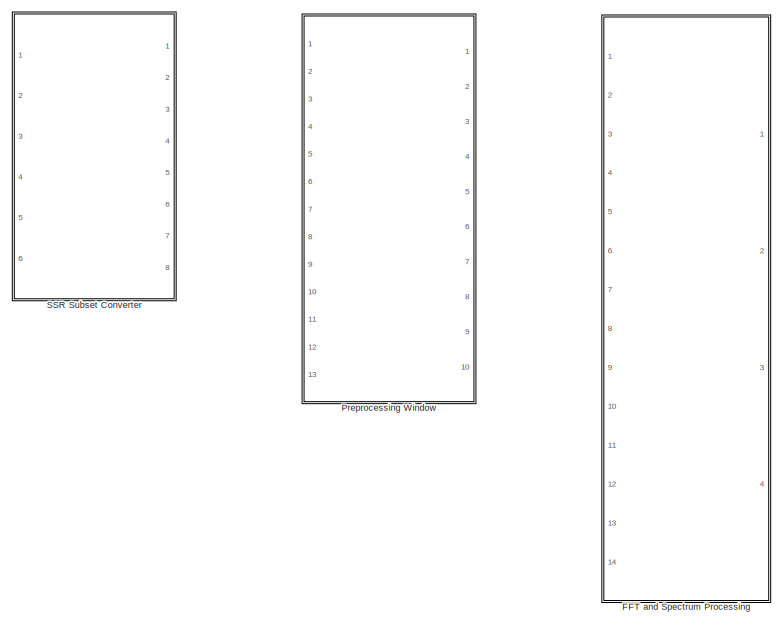
[diagram: root canvas - part 1/2, top left region]
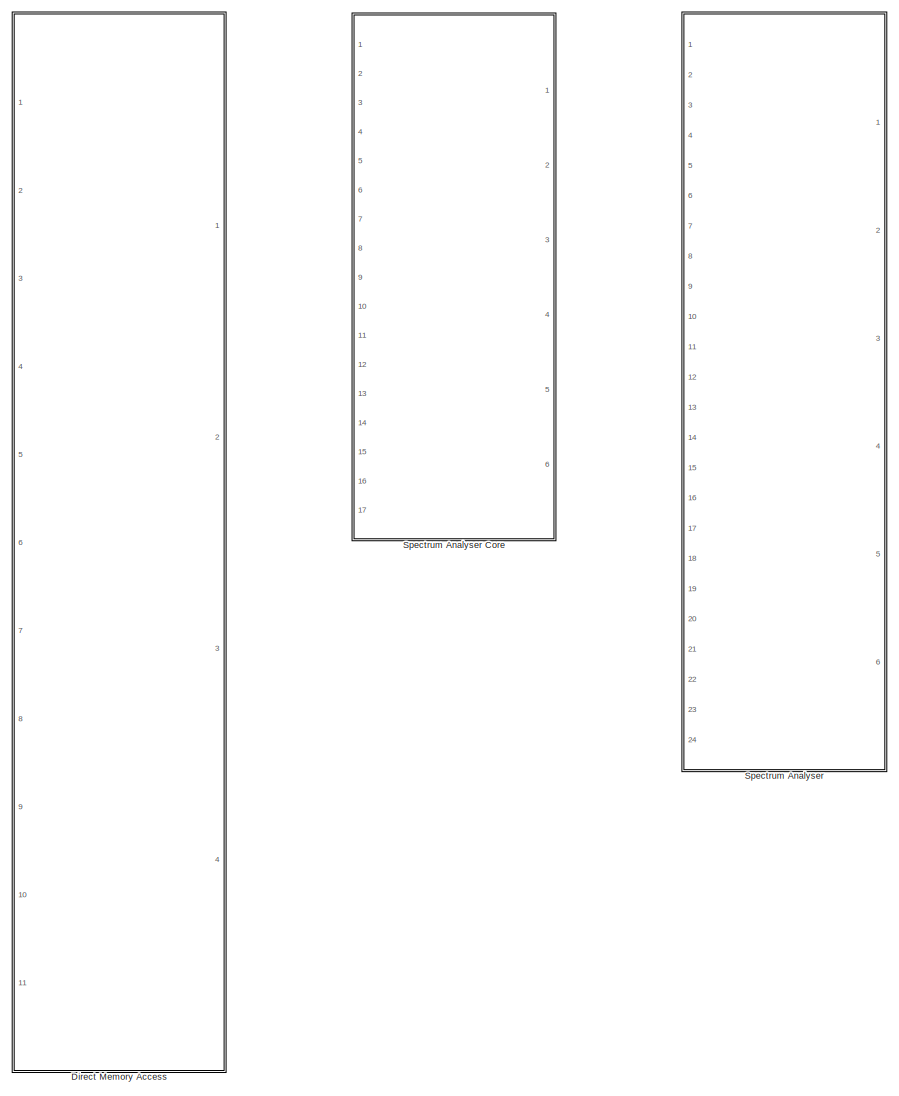
[diagram: root canvas - part 2/2, right side, full height]
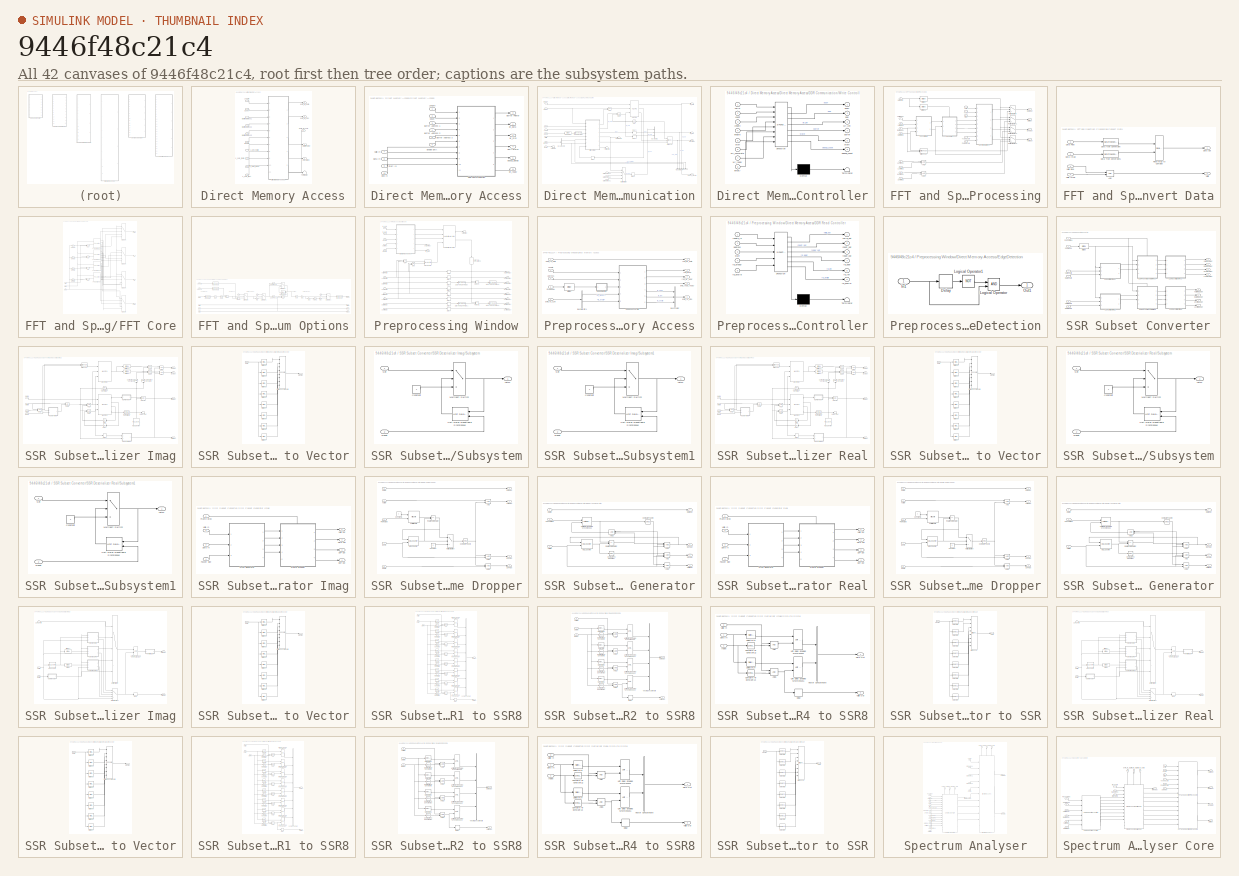
[diagram: thumbnail index - all 42 canvases of the model, root first then tree order]
MODEL slx_9446f48c21c4
KIND library
CONFIG AbsTol = auto
CONFIG EnableMultiTasking = off
CONFIG FixedStep = auto
CONFIG MaxStep = auto
CONFIG MinStep = auto
CONFIG RelTol = 1e-3
CONFIG SampleTimeConstraint = Unconstrained
CONFIG Solver = VariableStepAuto
CONFIG SolverName = VariableStepAuto
CONFIG StartTime = 0.0
CONFIG StopTime = 10.0
BLOCK [SubSystem] Direct Memory Access
  PortSchema = {"entries":[{"content":{"sides":[{"content":{"connectorIds":["In1","In2","In3","In4","In5","In6","In7","In8","In9","In10"]},"type":"ConnectorPlacement.EquallySpacedRectSide","uuid":"feed7d54-868e-4051-a23d-06bc6ab36d5c"},{"content":{"connectorIds":["Out1","Out2"],"side":"RIGHT"},"type":"ConnectorPlacement.EquallySpacedRectSide","uuid":"d3d03214-b2fe-4ae7-abfc-e707b28dda07"},{"content":{"connectorI...<+324ch>
  Ports = [11, 4]
  RequestExecContextInheritance = off
  TreatAsAtomicUnit = on
BLOCK [Inport] Direct Memory Access/Buffer Address 1
  Port = 2
BLOCK [Inport] Direct Memory Access/Buffer Address 2
  Port = 3
BLOCK [Inport] Direct Memory Access/Buffer Address 3
  Port = 4
BLOCK [Outport] Direct Memory Access/Buffer Pointer
BLOCK [Inport] Direct Memory Access/Count
  Port = 6
BLOCK [Outport] Direct Memory Access/DMA Status
  Port = 2
BLOCK [SubSystem] Direct Memory Access/Direct Memory Access
  PortSchema = {"entries":[{"content":{"sides":[{"content":{"connectorIds":["In1","In2","In3","In4","In5","In6","In7","In8","In9","In10"]},"type":"ConnectorPlacement.EquallySpacedRectSide","uuid":"00536163-74b2-48b0-a433-f45a47e82c13"},{"content":{"connectorIds":["Out1","Out2","In11","Out3","Out4","Out5"],"side":"RIGHT"},"type":"ConnectorPlacement.EquallySpacedRectSide","uuid":"bb0450ed-1752-4cb2-9c7c-352c8b1a90...<+332ch>
  Ports = [11, 5]
  RequestExecContextInheritance = off
BLOCK [Inport] Direct Memory Access/Direct Memory Access/Buffer Address 1
  Port = 3
BLOCK [Inport] Direct Memory Access/Direct Memory Access/Buffer Address 2
  Port = 4
BLOCK [Inport] Direct Memory Access/Direct Memory Access/Buffer Address 3
  Port = 5
BLOCK [Outport] Direct Memory Access/Direct Memory Access/Buffer Pointer
  Port = 3
BLOCK [Inport] Direct Memory Access/Direct Memory Access/Count
  Port = 2
BLOCK [SubSystem] Direct Memory Access/Direct Memory Access/DDR Communication
  PortSchema = {"entries":[{"content":{"sides":[{"content":{"connectorIds":["In1","In2","In3","In4","In5","In6","In7","In8","In9","In10"]},"type":"ConnectorPlacement.EquallySpacedRectSide","uuid":"1b0605ed-f994-4b4f-952c-c7a4534a55db"},{"content":{"connectorIds":["Out1","Out2","Out3","Out4","Out5","In11"],"side":"RIGHT"},"type":"ConnectorPlacement.EquallySpacedRectSide","uuid":"e00ce3f0-150b-4c4f-a18d-f280380b07...<+332ch>
  Ports = [11, 5]
  RequestExecContextInheritance = off
BLOCK [Logic] Direct Memory Access/Direct Memory Access/DDR Communication/AND
  AllPortsSameDT = off
  IconShape = distinctive
  OutDataTypeStr = boolean
  Ports = [2, 1]
BLOCK [Logic] Direct Memory Access/Direct Memory Access/DDR Communication/AND1
  AllPortsSameDT = off
  IconShape = distinctive
  OutDataTypeStr = boolean
  Ports = [2, 1]
BLOCK [Reference] Direct Memory Access/Direct Memory Access/DDR Communication/Bit Concat  REF=hdlsllib/Logic and Bit
Operations/Bit Concat
  Ports = [3, 1]
  SourceBlock = hdlsllib/Logic and Bit\nOperations/Bit Concat
  SourceProductBaseCode = SL
  SourceType = Bit Concat
BLOCK [Inport] Direct Memory Access/Direct Memory Access/DDR Communication/Buffer Address 1
  Port = 3
BLOCK [Inport] Direct Memory Access/Direct Memory Access/DDR Communication/Buffer Address 2
  Port = 4
BLOCK [Inport] Direct Memory Access/Direct Memory Access/DDR Communication/Buffer Address 3
  Port = 5
BLOCK [Outport] Direct Memory Access/Direct Memory Access/DDR Communication/Buffer Pointer
BLOCK [BusCreator] Direct Memory Access/Direct Memory Access/DDR Communication/Bus Creator1
  DisplayOption = bar
  InheritFromInputs = on
  Inputs = 3
  Ports = [3, 1]
BLOCK [BusCreator] Direct Memory Access/Direct Memory Access/DDR Communication/Bus Creator2
  DisplayOption = bar
  InheritFromInputs = on
  Inputs = 5
  NameLocation = left
  Ports = [5, 1]
BLOCK [BusSelector] Direct Memory Access/Direct Memory Access/DDR Communication/Bus Selector2
  OutputSignals = wr_complete,wr_ready
  Ports = [1, 2]
BLOCK [DataTypeConversion] Direct Memory Access/Direct Memory Access/DDR Communication/Cast To Boolean
  OutDataTypeStr = boolean
  RndMeth = Floor
  SaturateOnIntegerOverflow = off
BLOCK [Inport] Direct Memory Access/Direct Memory Access/DDR Communication/Count
  Port = 2
BLOCK [Outport] Direct Memory Access/Direct Memory Access/DDR Communication/DMA Status
  Port = 4
BLOCK [Inport] Direct Memory Access/Direct Memory Access/DDR Communication/Data Out
  Port = 8
BLOCK [Delay] Direct Memory Access/Direct Memory Access/DDR Communication/Delay
  DelayLength = 1
  InputPortMap = u0
  Ports = [1, 1]
BLOCK [Delay] Direct Memory Access/Direct Memory Access/DDR Communication/Delay1
  DelayLength = 1
  InputPortMap = u0
  Ports = [1, 1]
BLOCK [Delay] Direct Memory Access/Direct Memory Access/DDR Communication/Delay2
  DelayLength = 1
  InputPortMap = u0
  Ports = [1, 1]
BLOCK [Delay] Direct Memory Access/Direct Memory Access/DDR Communication/Delay3
  DelayLength = 1
  InputPortMap = u0
  Ports = [1, 1]
BLOCK [Inport] Direct Memory Access/Direct Memory Access/DDR Communication/Enable
  Port = 6
BLOCK [Reference] Direct Memory Access/Direct Memory Access/DDR Communication/Enable DMA  REF=hdlsllib/Logic and Bit
Operations/Bit Slice
  Ports = [1, 1]
  SourceBlock = hdlsllib/Logic and Bit\nOperations/Bit Slice
  SourceProductBaseCode = SL
  SourceType = Bit Slice
BLOCK [Inport] Direct Memory Access/Direct Memory Access/DDR Communication/End In
  Port = 10
BLOCK [Reference] Direct Memory Access/Direct Memory Access/DDR Communication/HDL FIFO  REF=hdlsllib/HDL RAMs/HDL FIFO
  Ports = [3, 3]
  SourceBlock = hdlsllib/HDL RAMs/HDL FIFO
  SourceProductBaseCode = SL
  SourceType = HDL_FIFO
BLOCK [Inport] Direct Memory Access/Direct Memory Access/DDR Communication/Length
BLOCK [MultiPortSwitch] Direct Memory Access/Direct Memory Access/DDR Communication/Multiport Switch
  DataPortOrder = Zero-based contiguous
  InputSameDT = off
  Ports = [4, 1]
  SaturateOnIntegerOverflow = off
  zeroidx = on
BLOCK [Logic] Direct Memory Access/Direct Memory Access/DDR Communication/NOT
  AllPortsSameDT = off
  IconShape = distinctive
  Operator = NOT
  OutDataTypeStr = boolean
  Ports = [1, 1]
BLOCK [Inport] Direct Memory Access/Direct Memory Access/DDR Communication/Start In
  Port = 9
BLOCK [Terminator] Direct Memory Access/Direct Memory Access/DDR Communication/Terminator
BLOCK [Terminator] Direct Memory Access/Direct Memory Access/DDR Communication/Terminator2
BLOCK [Inport] Direct Memory Access/Direct Memory Access/DDR Communication/Valid Out
  Port = 7
BLOCK [SubSystem] Direct Memory Access/Direct Memory Access/DDR Communication/Write Controller
  ErrorFcn = Stateflow.Translate.translate
  PermitHierarchicalResolution = ExplicitOnly
  Ports = [8, 6]
  RequestExecContextInheritance = off
  SFBlockType = MATLAB Function
  TreatAsAtomicUnit = on
BLOCK [Demux] Direct Memory Access/Direct Memory Access/DDR Communication/Write Controller/ Demux 
  Outputs = 1
  Ports = [1, 1]
BLOCK [S-Function] Direct Memory Access/Direct Memory Access/DDR Communication/Write Controller/ SFunction 
  EnableBusSupport = off
  FunctionName = sf_sfun
  PortCounts = [8 7]
  Ports = [8, 7]
  SFcnIsStateOwnerBlock = off
  SFunctionDeploymentMode = off
  Tag = Stateflow S-Function 2
BLOCK [Terminator] Direct Memory Access/Direct Memory Access/DDR Communication/Write Controller/ Terminator 
BLOCK [Outport] Direct Memory Access/Direct Memory Access/DDR Communication/Write Controller/buffer
  Port = 4
BLOCK [Inport] Direct Memory Access/Direct Memory Access/DDR Communication/Write Controller/count
  Port = 2
BLOCK [Outport] Direct Memory Access/Direct Memory Access/DDR Communication/Write Controller/debug_count
  Port = 6
BLOCK [Inport] Direct Memory Access/Direct Memory Access/DDR Communication/Write Controller/empty
  Port = 8
BLOCK [Inport] Direct Memory Access/Direct Memory Access/DDR Communication/Write Controller/enable
  Port = 4
BLOCK [Inport] Direct Memory Access/Direct Memory Access/DDR Communication/Write Controller/length
  Port = 3
BLOCK [Outport] Direct Memory Access/Direct Memory Access/DDR Communication/Write Controller/pop
  Port = 2
BLOCK [Outport] Direct Memory Access/Direct Memory Access/DDR Communication/Write Controller/push
  VectorParamsAs1DForOutWhenUnconnected = off
BLOCK [Inport] Direct Memory Access/Direct Memory Access/DDR Communication/Write Controller/start
  Port = 5
BLOCK [Outport] Direct Memory Access/Direct Memory Access/DDR Communication/Write Controller/state
  Port = 5
BLOCK [Inport] Direct Memory Access/Direct Memory Access/DDR Communication/Write Controller/valid
BLOCK [Inport] Direct Memory Access/Direct Memory Access/DDR Communication/Write Controller/wr_complete
  Port = 6
BLOCK [Outport] Direct Memory Access/Direct Memory Access/DDR Communication/Write Controller/wr_len
  Port = 3
  VectorParamsAs1DForOutWhenUnconnected = off
BLOCK [Inport] Direct Memory Access/Direct Memory Access/DDR Communication/Write Controller/wr_ready
  Port = 7
BLOCK [Outport] Direct Memory Access/Direct Memory Access/DDR Communication/debug_signals
  Port = 5
BLOCK [Outport] Direct Memory Access/Direct Memory Access/DDR Communication/wr_data
  Port = 2
BLOCK [Outport] Direct Memory Access/Direct Memory Access/DDR Communication/wr_m2s
  Port = 3
  VectorParamsAs1DForOutWhenUnconnected = off
BLOCK [Inport] Direct Memory Access/Direct Memory Access/DDR Communication/wr_ready
  Port = 11
BLOCK [Outport] Direct Memory Access/Direct Memory Access/DMA Status
  Port = 4
BLOCK [Inport] Direct Memory Access/Direct Memory Access/Data In
  Port = 8
BLOCK [Inport] Direct Memory Access/Direct Memory Access/Enable DMA
  Port = 6
BLOCK [Inport] Direct Memory Access/Direct Memory Access/End In
  Port = 10
BLOCK [Inport] Direct Memory Access/Direct Memory Access/Length
BLOCK [Inport] Direct Memory Access/Direct Memory Access/Start In
  Port = 9
BLOCK [Inport] Direct Memory Access/Direct Memory Access/Valid In
  Port = 7
BLOCK [Outport] Direct Memory Access/Direct Memory Access/debug_signals
  Port = 5
BLOCK [Outport] Direct Memory Access/Direct Memory Access/wr_data
BLOCK [Outport] Direct Memory Access/Direct Memory Access/wr_m2s
  Port = 2
BLOCK [Inport] Direct Memory Access/Direct Memory Access/wr_ready
  Port = 11
BLOCK [Inport] Direct Memory Access/Enable
  Port = 5
BLOCK [Inport] Direct Memory Access/Length
BLOCK [Terminator] Direct Memory Access/Terminator
BLOCK [Outport] Direct Memory Access/axim_wr_data
  Port = 4
BLOCK [Outport] Direct Memory Access/axim_wr_m2s
  Port = 3
BLOCK [Inport] Direct Memory Access/axim_wr_s2m
  Port = 11
BLOCK [Inport] Direct Memory Access/s_axis_tdata
  Port = 8
BLOCK [Inport] Direct Memory Access/s_axis_tlast
  Port = 9
BLOCK [Inport] Direct Memory Access/s_axis_tuser
  Port = 10
BLOCK [Inport] Direct Memory Access/s_axis_tvalid
  Port = 7
BLOCK [SubSystem] FFT and Spectrum Processing
  Ports = [14, 4]
  RequestExecContextInheritance = off
BLOCK [Logic] FFT and Spectrum Processing/AND
  AllPortsSameDT = off
  IconShape = distinctive
  OutDataTypeStr = boolean
  Ports = [2, 1]
BLOCK [Logic] FFT and Spectrum Processing/AND1
  AllPortsSameDT = off
  IconShape = distinctive
  OutDataTypeStr = boolean
  Ports = [2, 1]
BLOCK [Reference] FFT and Spectrum Processing/Bit Concat  REF=hdlsllib/Logic and Bit
Operations/Bit Concat
  Ports = [2, 1]
  SourceBlock = hdlsllib/Logic and Bit\nOperations/Bit Concat
  SourceProductBaseCode = SL
  SourceType = Bit Concat
BLOCK [Reference] FFT and Spectrum Processing/Bit Slice  REF=hdlsllib/Logic and Bit
Operations/Bit Slice
  Ports = [1, 1]
  SourceBlock = hdlsllib/Logic and Bit\nOperations/Bit Slice
  SourceProductBaseCode = SL
  SourceType = Bit Slice
BLOCK [Reference] FFT and Spectrum Processing/Bit Slice1  REF=hdlsllib/Logic and Bit
Operations/Bit Slice
  Ports = [1, 1]
  SourceBlock = hdlsllib/Logic and Bit\nOperations/Bit Slice
  SourceProductBaseCode = SL
  SourceType = Bit Slice
BLOCK [SubSystem] FFT and Spectrum Processing/Convert Data
  Ports = [4, 2]
  RequestExecContextInheritance = off
BLOCK [Logic] FFT and Spectrum Processing/Convert Data/AND
  AllPortsSameDT = off
  IconShape = distinctive
  OutDataTypeStr = boolean
  Ports = [2, 1]
BLOCK [Inport] FFT and Spectrum Processing/Convert Data/Data Imag
  Port = 4
BLOCK [Outport] FFT and Spectrum Processing/Convert Data/Data Out
BLOCK [Inport] FFT and Spectrum Processing/Convert Data/Data Real
  Port = 3
BLOCK [DataTypeConversion] FFT and Spectrum Processing/Convert Data/Data Type Conversion
  ConvertRealWorld = Stored Integer (SI)
  OutDataTypeStr = fixdt(1,16,15)
  RndMeth = Floor
  SaturateOnIntegerOverflow = off
BLOCK [DataTypeConversion] FFT and Spectrum Processing/Convert Data/Data Type Conversion1
  ConvertRealWorld = Stored Integer (SI)
  OutDataTypeStr = fixdt(1,16,15)
  RndMeth = Floor
  SaturateOnIntegerOverflow = off
BLOCK [RealImagToComplex] FFT and Spectrum Processing/Convert Data/Real-Imag to Complex
  Ports = [2, 1]
BLOCK [Outport] FFT and Spectrum Processing/Convert Data/Valid
  Port = 2
BLOCK [Inport] FFT and Spectrum Processing/Convert Data/Valid Imag
  Port = 2
BLOCK [Inport] FFT and Spectrum Processing/Convert Data/Valid Real
BLOCK [Inport] FFT and Spectrum Processing/Data Imag
  Port = 12
BLOCK [Outport] FFT and Spectrum Processing/Data Out
  Port = 2
BLOCK [Inport] FFT and Spectrum Processing/Data Real
  Port = 8
BLOCK [Outport] FFT and Spectrum Processing/End Out
  Port = 3
BLOCK [SubSystem] FFT and Spectrum Processing/FFT Core
  PortSchema = {"entries":[{"content":{"sides":[{"content":{"connectorIds":["In1","In2"]},"type":"ConnectorPlacement.EquallySpacedRectSide","uuid":"5a82c6db-67e2-4b0c-874b-00e78ac3fdee"},{"content":{"connectorIds":["Out1","Out2","Out3","Out4"],"side":"RIGHT"},"type":"ConnectorPlacement.EquallySpacedRectSide","uuid":"dd11d034-f57b-4257-86c3-a224676007d8"},{"content":{"connectorIds":["In3"],"side":"TOP"},"type":"C...<+274ch>
  Ports = [3, 4]
  RequestExecContextInheritance = off
  VariantControl = FFT
BLOCK [Logic] FFT and Spectrum Processing/FFT Core/AND10
  AllPortsSameDT = off
  IconShape = distinctive
  OutDataTypeStr = boolean
  Ports = [2, 1]
BLOCK [Logic] FFT and Spectrum Processing/FFT Core/AND7
  AllPortsSameDT = off
  IconShape = distinctive
  OutDataTypeStr = boolean
  Ports = [2, 1]
BLOCK [Logic] FFT and Spectrum Processing/FFT Core/AND8
  AllPortsSameDT = off
  IconShape = distinctive
  OutDataTypeStr = boolean
  Ports = [2, 1]
BLOCK [Logic] FFT and Spectrum Processing/FFT Core/AND9
  AllPortsSameDT = off
  IconShape = distinctive
  OutDataTypeStr = boolean
  Ports = [2, 1]
BLOCK [Reference] FFT and Spectrum Processing/FFT Core/Compare To Constant10  REF=simulink/Logic and Bit
Operations/Compare
To Constant
  Ports = [1, 1]
  SourceBlock = simulink/Logic and Bit\nOperations/Compare\nTo Constant
  SourceProductBaseCode = SL
  SourceType = Compare To Constant
BLOCK [Reference] FFT and Spectrum Processing/FFT Core/Compare To Constant7  REF=simulink/Logic and Bit
Operations/Compare
To Constant
  Ports = [1, 1]
  SourceBlock = simulink/Logic and Bit\nOperations/Compare\nTo Constant
  SourceProductBaseCode = SL
  SourceType = Compare To Constant
BLOCK [Reference] FFT and Spectrum Processing/FFT Core/Compare To Constant8  REF=simulink/Logic and Bit
Operations/Compare
To Constant
  Ports = [1, 1]
  SourceBlock = simulink/Logic and Bit\nOperations/Compare\nTo Constant
  SourceProductBaseCode = SL
  SourceType = Compare To Constant
BLOCK [Reference] FFT and Spectrum Processing/FFT Core/Compare To Constant9  REF=simulink/Logic and Bit
Operations/Compare
To Constant
  Ports = [1, 1]
  SourceBlock = simulink/Logic and Bit\nOperations/Compare\nTo Constant
  SourceProductBaseCode = SL
  SourceType = Compare To Constant
BLOCK [Inport] FFT and Spectrum Processing/FFT Core/Data In
BLOCK [Outport] FFT and Spectrum Processing/FFT Core/Data Out
BLOCK [Outport] FFT and Spectrum Processing/FFT Core/End
  Port = 3
BLOCK [Reference] FFT and Spectrum Processing/FFT Core/FFT HDL Optimized 16384  REF=dsphdlxfrm/FFT
HDL Optimized
  Ports = [2, 4]
  SourceBlock = dsphdlxfrm/FFT\nHDL Optimized
  SourceProductBaseCode = DS
  SourceType = FFT HDL Optimized
BLOCK [Reference] FFT and Spectrum Processing/FFT Core/FFT HDL Optimized 32768  REF=dsphdlxfrm/FFT
HDL Optimized
  Ports = [2, 4]
  SourceBlock = dsphdlxfrm/FFT\nHDL Optimized
  SourceProductBaseCode = DS
  SourceType = FFT HDL Optimized
BLOCK [Reference] FFT and Spectrum Processing/FFT Core/FFT HDL Optimized 65536  REF=dsphdlxfrm/FFT
HDL Optimized
  Ports = [2, 4]
  SourceBlock = dsphdlxfrm/FFT\nHDL Optimized
  SourceProductBaseCode = DS
  SourceType = FFT HDL Optimized
BLOCK [Reference] FFT and Spectrum Processing/FFT Core/FFT HDL Optimized 8192  REF=dsphdlxfrm/FFT
HDL Optimized
  Ports = [2, 4]
  SourceBlock = dsphdlxfrm/FFT\nHDL Optimized
  SourceProductBaseCode = DS
  SourceType = FFT HDL Optimized
BLOCK [MultiPortSwitch] FFT and Spectrum Processing/FFT Core/Multiport Switch
  DataPortOrder = Zero-based contiguous
  InputSameDT = off
  Inputs = 4
  Ports = [5, 1]
  SaturateOnIntegerOverflow = off
  zeroidx = on
BLOCK [MultiPortSwitch] FFT and Spectrum Processing/FFT Core/Multiport Switch1
  DataPortOrder = Zero-based contiguous
  InputSameDT = off
  Inputs = 4
  Ports = [5, 1]
  SaturateOnIntegerOverflow = off
  zeroidx = on
BLOCK [MultiPortSwitch] FFT and Spectrum Processing/FFT Core/Multiport Switch2
  DataPortOrder = Zero-based contiguous
  InputSameDT = off
  Inputs = 4
  Ports = [5, 1]
  SaturateOnIntegerOverflow = off
  zeroidx = on
BLOCK [MultiPortSwitch] FFT and Spectrum Processing/FFT Core/Multiport Switch3
  DataPortOrder = Zero-based contiguous
  InputSameDT = off
  Inputs = 4
  Ports = [5, 1]
  SaturateOnIntegerOverflow = off
  zeroidx = on
BLOCK [Inport] FFT and Spectrum Processing/FFT Core/Selector
  Port = 3
BLOCK [Outport] FFT and Spectrum Processing/FFT Core/Start
  Port = 2
BLOCK [Inport] FFT and Spectrum Processing/FFT Core/Valid In
  Port = 2
BLOCK [Outport] FFT and Spectrum Processing/FFT Core/Valid Out
  Port = 4
BLOCK [Inport] FFT and Spectrum Processing/Last Imag
  Port = 13
BLOCK [Inport] FFT and Spectrum Processing/Last Real
  Port = 9
BLOCK [MultiPortSwitch] FFT and Spectrum Processing/Multiport Switch
  DataPortOrder = Zero-based contiguous
  InputSameDT = off
  Inputs = 2
  Ports = [3, 1]
  SaturateOnIntegerOverflow = off
  zeroidx = on
BLOCK [MultiPortSwitch] FFT and Spectrum Processing/Multiport Switch1
  DataPortOrder = Zero-based contiguous
  InputSameDT = off
  Inputs = 2
  Ports = [3, 1]
  SaturateOnIntegerOverflow = off
  zeroidx = on
BLOCK [MultiPortSwitch] FFT and Spectrum Processing/Multiport Switch2
  DataPortOrder = Zero-based contiguous
  InputSameDT = off
  Inputs = 2
  Ports = [3, 1]
  SaturateOnIntegerOverflow = off
  zeroidx = on
BLOCK [MultiPortSwitch] FFT and Spectrum Processing/Multiport Switch3
  DataPortOrder = Zero-based contiguous
  InputSameDT = off
  Inputs = 2
  Ports = [3, 1]
  SaturateOnIntegerOverflow = off
  zeroidx = on
BLOCK [Inport] FFT and Spectrum Processing/Power Scale
  Port = 5
BLOCK [Inport] FFT and Spectrum Processing/Selector
  Port = 6
BLOCK [SubSystem] FFT and Spectrum Processing/Spectrum Options
  Ports = [9, 4]
  RequestExecContextInheritance = off
  VariantControl = Options
BLOCK [Logic] FFT and Spectrum Processing/Spectrum Options/AND
  AllPortsSameDT = off
  IconShape = distinctive
  OutDataTypeStr = boolean
  Ports = [2, 1]
BLOCK [Abs] FFT and Spectrum Processing/Spectrum Options/Abs2
  SaturateOnIntegerOverflow = off
BLOCK [DataTypeConversion] FFT and Spectrum Processing/Spectrum Options/Cast To Single2
  OutDataTypeStr = single
  RndMeth = Floor
  SaturateOnIntegerOverflow = off
BLOCK [Reference] FFT and Spectrum Processing/Spectrum Options/Compare To Zero  REF=simulink/Logic and Bit
Operations/Compare
To Zero
  Ports = [1, 1]
  SourceBlock = simulink/Logic and Bit\nOperations/Compare\nTo Zero
  SourceProductBaseCode = SL
  SourceType = Compare To Zero
BLOCK [Reference] FFT and Spectrum Processing/Spectrum Options/Compare To Zero1  REF=simulink/Logic and Bit
Operations/Compare
To Zero
  Ports = [1, 1]
  SourceBlock = simulink/Logic and Bit\nOperations/Compare\nTo Zero
  SourceProductBaseCode = SL
  SourceType = Compare To Zero
BLOCK [Inport] FFT and Spectrum Processing/Spectrum Options/Data In
  Port = 4
BLOCK [Outport] FFT and Spectrum Processing/Spectrum Options/Data Out
BLOCK [Inport] FFT and Spectrum Processing/Spectrum Options/End In
  Port = 6
BLOCK [Outport] FFT and Spectrum Processing/Spectrum Options/End Out
  Port = 3
BLOCK [FloatTypecast] FFT and Spectrum Processing/Spectrum Options/Float Typecast
BLOCK [FloatTypecast] FFT and Spectrum Processing/Spectrum Options/Float Typecast1
BLOCK [FloatTypecast] FFT and Spectrum Processing/Spectrum Options/Float Typecast2
BLOCK [Gain] FFT and Spectrum Processing/Spectrum Options/Gain
  Gain = 1/1e-3
BLOCK [Gain] FFT and Spectrum Processing/Spectrum Options/Gain3
  Gain = 10
  OutDataTypeStr = single
  ParamDataTypeStr = single
BLOCK [Gain] FFT and Spectrum Processing/Spectrum Options/Gain6
  Gain = 1/20
BLOCK [Gain] FFT and Spectrum Processing/Spectrum Options/Gain7
  Gain = sqrt(1e-3)
BLOCK [Math] FFT and Spectrum Processing/Spectrum Options/Log1
  Operator = log10
  Ports = [1, 1]
  SignedPower = on
BLOCK [MultiPortSwitch] FFT and Spectrum Processing/Spectrum Options/Multiport Switch
  DataPortOrder = Zero-based contiguous
  InputSameDT = off
  Inputs = 2
  Ports = [3, 1]
  SaturateOnIntegerOverflow = off
  zeroidx = on
BLOCK [MultiPortSwitch] FFT and Spectrum Processing/Spectrum Options/Multiport Switch1
  DataPortOrder = Zero-based contiguous
  InputSameDT = off
  Inputs = 2
  Ports = [3, 1]
  SaturateOnIntegerOverflow = off
  zeroidx = on
BLOCK [MultiPortSwitch] FFT and Spectrum Processing/Spectrum Options/Multiport Switch2
  DataPortOrder = Zero-based contiguous
  InputSameDT = off
  Inputs = 2
  Ports = [3, 1]
  SaturateOnIntegerOverflow = off
  zeroidx = on
BLOCK [MultiPortSwitch] FFT and Spectrum Processing/Spectrum Options/Multiport Switch3
  DataPortOrder = Zero-based contiguous
  InputSameDT = off
  Inputs = 2
  Ports = [3, 1]
  SaturateOnIntegerOverflow = off
  zeroidx = on
BLOCK [Inport] FFT and Spectrum Processing/Spectrum Options/Power Scale
  Port = 9
BLOCK [Math] FFT and Spectrum Processing/Spectrum Options/Power of 10
  Operator = 10^u
  Ports = [1, 1]
BLOCK [Product] FFT and Spectrum Processing/Spectrum Options/Product
  Ports = [2, 1]
BLOCK [Product] FFT and Spectrum Processing/Spectrum Options/Product1
  Ports = [2, 1]
BLOCK [Math] FFT and Spectrum Processing/Spectrum Options/Square
  Operator = square
  Ports = [1, 1]
BLOCK [Inport] FFT and Spectrum Processing/Spectrum Options/Start In
  Port = 5
BLOCK [Outport] FFT and Spectrum Processing/Spectrum Options/Start Out
  Port = 2
BLOCK [Inport] FFT and Spectrum Processing/Spectrum Options/Type
  Port = 2
BLOCK [Inport] FFT and Spectrum Processing/Spectrum Options/Type Scale
  Port = 8
BLOCK [Reference] FFT and Spectrum Processing/Spectrum Options/Unit Delay Enabled Synchronous  REF=hdlsllib/Discrete/Unit Delay Enabled
Synchronous
  Ports = [2, 1]
  SourceBlock = hdlsllib/Discrete/Unit Delay Enabled\nSynchronous
  SourceProductBaseCode = SL
  SourceType = Unit Delay Enabled Synchronous
BLOCK [Inport] FFT and Spectrum Processing/Spectrum Options/Units
BLOCK [Inport] FFT and Spectrum Processing/Spectrum Options/Valid In
  Port = 7
BLOCK [Outport] FFT and Spectrum Processing/Spectrum Options/Valid Out
  Port = 4
BLOCK [Inport] FFT and Spectrum Processing/Spectrum Options/Vrms
  Port = 3
BLOCK [Outport] FFT and Spectrum Processing/Start Out
  Port = 4
BLOCK [Inport] FFT and Spectrum Processing/Type
  Port = 2
BLOCK [Inport] FFT and Spectrum Processing/Type Scale
  Port = 4
BLOCK [Inport] FFT and Spectrum Processing/Units
BLOCK [Inport] FFT and Spectrum Processing/User Imag
  Port = 14
BLOCK [Inport] FFT and Spectrum Processing/User Real
  Port = 10
BLOCK [Inport] FFT and Spectrum Processing/Valid Imag
  Port = 11
BLOCK [Outport] FFT and Spectrum Processing/Valid Out
BLOCK [Inport] FFT and Spectrum Processing/Valid Real
  Port = 7
BLOCK [Inport] FFT and Spectrum Processing/Vrms
  Port = 3
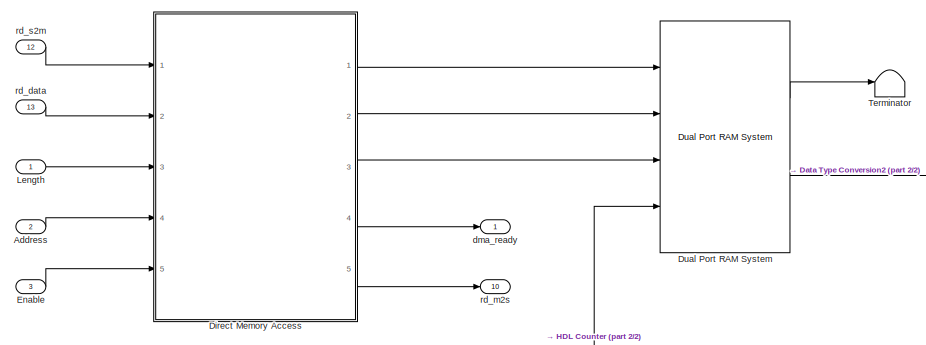
[diagram: Preprocessing Window - part 1/2, top center region]
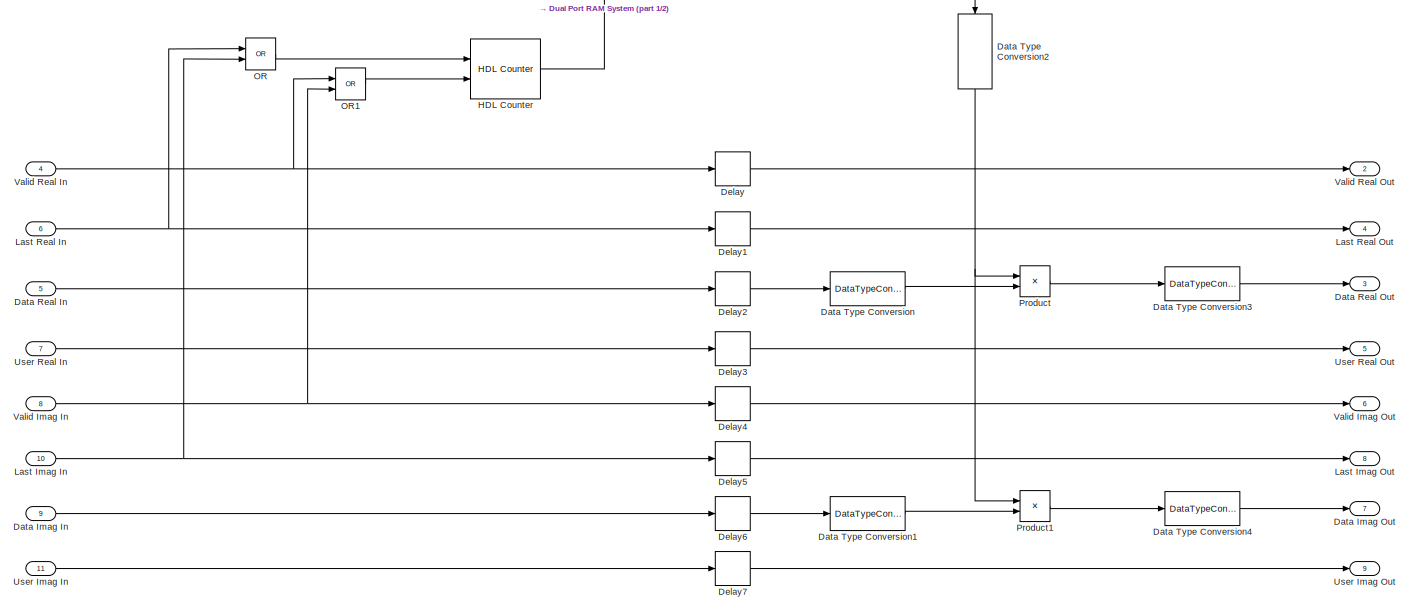
[diagram: Preprocessing Window - part 2/2, full width, bottom band]
BLOCK [SubSystem] Preprocessing Window
  PortSchema = {"entries":[{"content":{"sides":[{"content":{"connectorIds":["In1","In2","In3","In4","In5","In6","In7","In8","In9","In10","In11"]},"type":"ConnectorPlacement.EquallySpacedRectSide","uuid":"9bfde1a4-8e55-439d-ba95-b13ed8c2de82"},{"content":{"connectorIds":["Out1","Out2","Out3","Out4","Out5","Out6","Out7","Out8","Out9"],"side":"RIGHT"},"type":"ConnectorPlacement.EquallySpacedRectSide","uuid":"1fa858...<+381ch>
  Ports = [13, 10]
  RequestExecContextInheritance = off
  TreatAsAtomicUnit = on
BLOCK [Inport] Preprocessing Window/Address
  Port = 2
BLOCK [Inport] Preprocessing Window/Data Imag In
  Port = 9
BLOCK [Outport] Preprocessing Window/Data Imag Out
  Port = 7
BLOCK [Inport] Preprocessing Window/Data Real In
  Port = 5
BLOCK [Outport] Preprocessing Window/Data Real Out
  Port = 3
BLOCK [DataTypeConversion] Preprocessing Window/Data Type Conversion
  ConvertRealWorld = Stored Integer (SI)
  OutDataTypeStr = fixdt(1,16,15)
  RndMeth = Floor
  SaturateOnIntegerOverflow = off
BLOCK [DataTypeConversion] Preprocessing Window/Data Type Conversion1
  ConvertRealWorld = Stored Integer (SI)
  OutDataTypeStr = fixdt(1,16,15)
  RndMeth = Floor
  SaturateOnIntegerOverflow = off
BLOCK [DataTypeConversion] Preprocessing Window/Data Type Conversion2
  ConvertRealWorld = Stored Integer (SI)
  NameLocation = left
  OutDataTypeStr = fixdt(1,16,14)
  RndMeth = Floor
  SaturateOnIntegerOverflow = off
BLOCK [DataTypeConversion] Preprocessing Window/Data Type Conversion3
  ConvertRealWorld = Stored Integer (SI)
  OutDataTypeStr = fixdt(0,16,0)
  RndMeth = Floor
  SaturateOnIntegerOverflow = off
BLOCK [DataTypeConversion] Preprocessing Window/Data Type Conversion4
  ConvertRealWorld = Stored Integer (SI)
  OutDataTypeStr = fixdt(0,16,0)
  RndMeth = Floor
  SaturateOnIntegerOverflow = off
BLOCK [Delay] Preprocessing Window/Delay
  DelayLength = 1
  InputPortMap = u0
  Ports = [1, 1]
BLOCK [Delay] Preprocessing Window/Delay1
  DelayLength = 1
  InputPortMap = u0
  Ports = [1, 1]
BLOCK [Delay] Preprocessing Window/Delay2
  DelayLength = 1
  InputPortMap = u0
  Ports = [1, 1]
BLOCK [Delay] Preprocessing Window/Delay3
  DelayLength = 1
  InputPortMap = u0
  Ports = [1, 1]
BLOCK [Delay] Preprocessing Window/Delay4
  DelayLength = 1
  InputPortMap = u0
  Ports = [1, 1]
BLOCK [Delay] Preprocessing Window/Delay5
  DelayLength = 1
  InputPortMap = u0
  Ports = [1, 1]
BLOCK [Delay] Preprocessing Window/Delay6
  DelayLength = 1
  InputPortMap = u0
  Ports = [1, 1]
BLOCK [Delay] Preprocessing Window/Delay7
  DelayLength = 1
  InputPortMap = u0
  Ports = [1, 1]
BLOCK [SubSystem] Preprocessing Window/Direct Memory Access
  Ports = [5, 5]
  RequestExecContextInheritance = off
BLOCK [Inport] Preprocessing Window/Direct Memory Access/Address
  Port = 4
BLOCK [Reference] Preprocessing Window/Direct Memory Access/Bit Slice  REF=hdlsllib/Logic and Bit
Operations/Bit Slice
  Ports = [1, 1]
  SourceBlock = hdlsllib/Logic and Bit\nOperations/Bit Slice
  SourceProductBaseCode = SL
  SourceType = Bit Slice
BLOCK [BusCreator] Preprocessing Window/Direct Memory Access/Bus Creator
  DisplayOption = bar
  InheritFromInputs = on
  Inputs = 3
  Ports = [3, 1]
BLOCK [BusSelector] Preprocessing Window/Direct Memory Access/Bus Selector1
  OutputSignals = rd_aready,rd_dvalid
  Ports = [1, 2]
BLOCK [SubSystem] Preprocessing Window/Direct Memory Access/DDR Read Controller
  ErrorFcn = Stateflow.Translate.translate
  PermitHierarchicalResolution = ExplicitOnly
  Ports = [5, 6]
  RequestExecContextInheritance = off
  SFBlockType = MATLAB Function
  TreatAsAtomicUnit = on
BLOCK [Demux] Preprocessing Window/Direct Memory Access/DDR Read Controller/ Demux 
  Outputs = 1
  Ports = [1, 1]
BLOCK [S-Function] Preprocessing Window/Direct Memory Access/DDR Read Controller/ SFunction 
  EnableBusSupport = off
  FunctionName = sf_sfun
  PortCounts = [5 7]
  Ports = [5, 7]
  SFcnIsStateOwnerBlock = off
  SFunctionDeploymentMode = off
  Tag = Stateflow S-Function 5
BLOCK [Terminator] Preprocessing Window/Direct Memory Access/DDR Read Controller/ Terminator 
BLOCK [Inport] Preprocessing Window/Direct Memory Access/DDR Read Controller/address
  Port = 2
BLOCK [Outport] Preprocessing Window/Direct Memory Access/DDR Read Controller/count_out
  Port = 2
  VectorParamsAs1DForOutWhenUnconnected = off
BLOCK [Inport] Preprocessing Window/Direct Memory Access/DDR Read Controller/length_in
BLOCK [Outport] Preprocessing Window/Direct Memory Access/DDR Read Controller/rd_addr
  Port = 4
  VectorParamsAs1DForOutWhenUnconnected = off
BLOCK [Inport] Preprocessing Window/Direct Memory Access/DDR Read Controller/rd_aready
  Port = 4
BLOCK [Outport] Preprocessing Window/Direct Memory Access/DDR Read Controller/rd_avalid
  Port = 6
  VectorParamsAs1DForOutWhenUnconnected = off
BLOCK [Inport] Preprocessing Window/Direct Memory Access/DDR Read Controller/rd_dvalid
  Port = 5
BLOCK [Outport] Preprocessing Window/Direct Memory Access/DDR Read Controller/rd_len
  Port = 5
  VectorParamsAs1DForOutWhenUnconnected = off
BLOCK [Outport] Preprocessing Window/Direct Memory Access/DDR Read Controller/ready_out
  Port = 3
  VectorParamsAs1DForOutWhenUnconnected = off
BLOCK [Inport] Preprocessing Window/Direct Memory Access/DDR Read Controller/start
  Port = 3
BLOCK [Outport] Preprocessing Window/Direct Memory Access/DDR Read Controller/valid_out
  VectorParamsAs1DForOutWhenUnconnected = off
BLOCK [SubSystem] Preprocessing Window/Direct Memory Access/EdgeDetection
  Ports = [1, 1]
  RequestExecContextInheritance = off
BLOCK [Delay] Preprocessing Window/Direct Memory Access/EdgeDetection/Delay
  DelayLength = 1
  InputPortMap = u0
  Ports = [1, 1]
BLOCK [Inport] Preprocessing Window/Direct Memory Access/EdgeDetection/In1
BLOCK [Logic] Preprocessing Window/Direct Memory Access/EdgeDetection/Logical Operator
  AllPortsSameDT = off
  OutDataTypeStr = boolean
  Ports = [2, 1]
BLOCK [Logic] Preprocessing Window/Direct Memory Access/EdgeDetection/Logical Operator1
  AllPortsSameDT = off
  Operator = NOT
  OutDataTypeStr = boolean
  Ports = [1, 1]
BLOCK [Outport] Preprocessing Window/Direct Memory Access/EdgeDetection/Out1
  VectorParamsAs1DForOutWhenUnconnected = off
BLOCK [Inport] Preprocessing Window/Direct Memory Access/Enable DMA
  Port = 5
BLOCK [Inport] Preprocessing Window/Direct Memory Access/Length
  Port = 3
BLOCK [Inport] Preprocessing Window/Direct Memory Access/axim_rd_data
  Port = 2
BLOCK [Outport] Preprocessing Window/Direct Memory Access/axim_rd_m2s
  Port = 5
  VectorParamsAs1DForOutWhenUnconnected = off
BLOCK [Inport] Preprocessing Window/Direct Memory Access/axim_rd_s2m
BLOCK [Outport] Preprocessing Window/Direct Memory Access/dma_read_ready
  Port = 4
  VectorParamsAs1DForOutWhenUnconnected = off
BLOCK [Outport] Preprocessing Window/Direct Memory Access/ram_wr_addr
  Port = 2
  VectorParamsAs1DForOutWhenUnconnected = off
BLOCK [Outport] Preprocessing Window/Direct Memory Access/ram_wr_data
  VectorParamsAs1DForOutWhenUnconnected = off
BLOCK [Outport] Preprocessing Window/Direct Memory Access/ram_wren
  Port = 3
  VectorParamsAs1DForOutWhenUnconnected = off
BLOCK [Reference] Preprocessing Window/Dual Port RAM System  REF=hdlsllib/HDL RAMs/Dual Port RAM System
  Ports = [4, 2]
  SourceBlock = hdlsllib/HDL RAMs/Dual Port RAM System
  SourceProductBaseCode = SL
  SourceType = hdl.RAM
BLOCK [Inport] Preprocessing Window/Enable
  Port = 3
BLOCK [Reference] Preprocessing Window/HDL Counter  REF=hdlsllib/Sources/HDL Counter
  Ports = [2, 1]
  SourceBlock = hdlsllib/Sources/HDL Counter
  SourceProductBaseCode = SL
  SourceType = HDL Counter
BLOCK [Inport] Preprocessing Window/Last Imag In
  Port = 10
BLOCK [Outport] Preprocessing Window/Last Imag Out
  Port = 8
BLOCK [Inport] Preprocessing Window/Last Real In
  Port = 6
BLOCK [Outport] Preprocessing Window/Last Real Out
  Port = 4
BLOCK [Inport] Preprocessing Window/Length
BLOCK [Logic] Preprocessing Window/OR
  AllPortsSameDT = off
  IconShape = distinctive
  Operator = OR
  OutDataTypeStr = boolean
  Ports = [2, 1]
BLOCK [Logic] Preprocessing Window/OR1
  AllPortsSameDT = off
  IconShape = distinctive
  Operator = OR
  OutDataTypeStr = boolean
  Ports = [2, 1]
BLOCK [Product] Preprocessing Window/Product
  OutDataTypeStr = fixdt(1,16,15)
  Ports = [2, 1]
  RndMeth = Round
  SaturateOnIntegerOverflow = on
BLOCK [Product] Preprocessing Window/Product1
  OutDataTypeStr = fixdt(1,16,15)
  Ports = [2, 1]
  RndMeth = Round
  SaturateOnIntegerOverflow = on
BLOCK [Terminator] Preprocessing Window/Terminator
BLOCK [Inport] Preprocessing Window/User Imag In
  Port = 11
BLOCK [Outport] Preprocessing Window/User Imag Out
  Port = 9
BLOCK [Inport] Preprocessing Window/User Real In
  Port = 7
BLOCK [Outport] Preprocessing Window/User Real Out
  Port = 5
BLOCK [Inport] Preprocessing Window/Valid Imag In
  Port = 8
BLOCK [Outport] Preprocessing Window/Valid Imag Out
  Port = 6
BLOCK [Inport] Preprocessing Window/Valid Real In
  Port = 4
BLOCK [Outport] Preprocessing Window/Valid Real Out
  Port = 2
BLOCK [Outport] Preprocessing Window/dma_ready
BLOCK [Inport] Preprocessing Window/rd_data
  Port = 13
BLOCK [Outport] Preprocessing Window/rd_m2s
  Port = 10
BLOCK [Inport] Preprocessing Window/rd_s2m
  Port = 12
BLOCK [SubSystem] SSR Subset Converter
  Ports = [6, 8]
  RequestExecContextInheritance = off
  TreatAsAtomicUnit = on
BLOCK [Reference] SSR Subset Converter/Bit Slice  REF=hdlsllib/Logic and Bit
Operations/Bit Slice
  Ports = [1, 1]
  SourceBlock = hdlsllib/Logic and Bit\nOperations/Bit Slice
  SourceProductBaseCode = SL
  SourceType = Bit Slice
BLOCK [Inport] SSR Subset Converter/Data Imag In
  Port = 6
BLOCK [Outport] SSR Subset Converter/Data Imag Out
  Port = 6
BLOCK [Inport] SSR Subset Converter/Data Real In
  Port = 4
BLOCK [Outport] SSR Subset Converter/Data Real Out
  Port = 2
BLOCK [Outport] SSR Subset Converter/Last Imag Out
  Port = 7
BLOCK [Outport] SSR Subset Converter/Last Real Out
  Port = 3
BLOCK [Inport] SSR Subset Converter/Packet Size
BLOCK [SubSystem] SSR Subset Converter/SSR Deserializer Imag
  Ports = [4, 4]
  RequestExecContextInheritance = off
BLOCK [Logic] SSR Subset Converter/SSR Deserializer Imag/AND
  AllPortsSameDT = off
  IconShape = distinctive
  OutDataTypeStr = boolean
  Ports = [2, 1]
BLOCK [Logic] SSR Subset Converter/SSR Deserializer Imag/AND1
  AllPortsSameDT = off
  IconShape = distinctive
  OutDataTypeStr = boolean
  Ports = [2, 1]
BLOCK [Logic] SSR Subset Converter/SSR Deserializer Imag/AND2
  AllPortsSameDT = off
  IconShape = distinctive
  OutDataTypeStr = boolean
  Ports = [2, 1]
BLOCK [Logic] SSR Subset Converter/SSR Deserializer Imag/AND3
  AllPortsSameDT = off
  IconShape = distinctive
  OutDataTypeStr = boolean
  Ports = [2, 1]
BLOCK [Logic] SSR Subset Converter/SSR Deserializer Imag/AND4
  AllPortsSameDT = off
  IconShape = distinctive
  OutDataTypeStr = boolean
  Ports = [2, 1]
BLOCK [Logic] SSR Subset Converter/SSR Deserializer Imag/AND5
  AllPortsSameDT = off
  IconShape = distinctive
  OutDataTypeStr = boolean
  Ports = [2, 1]
BLOCK [Logic] SSR Subset Converter/SSR Deserializer Imag/AND6
  AllPortsSameDT = off
  IconShape = distinctive
  OutDataTypeStr = boolean
  Ports = [2, 1]
BLOCK [Logic] SSR Subset Converter/SSR Deserializer Imag/AND7
  AllPortsSameDT = off
  IconShape = distinctive
  OutDataTypeStr = boolean
  Ports = [2, 1]
BLOCK [Reference] SSR Subset Converter/SSR Deserializer Imag/Bit Concat  REF=hdlsllib/Logic and Bit
Operations/Bit Concat
  Ports = [2, 1]
  SourceBlock = hdlsllib/Logic and Bit\nOperations/Bit Concat
  SourceProductBaseCode = SL
  SourceType = Bit Concat
BLOCK [Reference] SSR Subset Converter/SSR Deserializer Imag/Bit Slice  REF=hdlsllib/Logic and Bit
Operations/Bit Slice
  Ports = [1, 1]
  SourceBlock = hdlsllib/Logic and Bit\nOperations/Bit Slice
  SourceProductBaseCode = SL
  SourceType = Bit Slice
BLOCK [Reference] SSR Subset Converter/SSR Deserializer Imag/Bit Slice1  REF=hdlsllib/Logic and Bit
Operations/Bit Slice
  Ports = [1, 1]
  SourceBlock = hdlsllib/Logic and Bit\nOperations/Bit Slice
  SourceProductBaseCode = SL
  SourceType = Bit Slice
BLOCK [Reference] SSR Subset Converter/SSR Deserializer Imag/Compare To Constant  REF=simulink/Logic and Bit
Operations/Compare
To Constant
  Ports = [1, 1]
  SourceBlock = simulink/Logic and Bit\nOperations/Compare\nTo Constant
  SourceProductBaseCode = SL
  SourceType = Compare To Constant
BLOCK [Reference] SSR Subset Converter/SSR Deserializer Imag/Compare To Constant1  REF=simulink/Logic and Bit
Operations/Compare
To Constant
  Ports = [1, 1]
  SourceBlock = simulink/Logic and Bit\nOperations/Compare\nTo Constant
  SourceProductBaseCode = SL
  SourceType = Compare To Constant
BLOCK [Reference] SSR Subset Converter/SSR Deserializer Imag/Compare To Constant2  REF=simulink/Logic and Bit
Operations/Compare
To Constant
  NameLocation = right
  Ports = [1, 1]
  SourceBlock = simulink/Logic and Bit\nOperations/Compare\nTo Constant
  SourceProductBaseCode = SL
  SourceType = Compare To Constant
BLOCK [Reference] SSR Subset Converter/SSR Deserializer Imag/Compare To Constant3  REF=simulink/Logic and Bit
Operations/Compare
To Constant
  NameLocation = right
  Ports = [1, 1]
  SourceBlock = simulink/Logic and Bit\nOperations/Compare\nTo Constant
  SourceProductBaseCode = SL
  SourceType = Compare To Constant
BLOCK [Inport] SSR Subset Converter/SSR Deserializer Imag/Data In
  Port = 2
BLOCK [Outport] SSR Subset Converter/SSR Deserializer Imag/Data Out
  Port = 2
BLOCK [Delay] SSR Subset Converter/SSR Deserializer Imag/Delay
  DelayLength = 1
  InputPortMap = u0
  Ports = [1, 1]
BLOCK [Inport] SSR Subset Converter/SSR Deserializer Imag/EoF In
  Port = 4
BLOCK [Outport] SSR Subset Converter/SSR Deserializer Imag/EoL Out
  Port = 4
BLOCK [Reference] SSR Subset Converter/SSR Deserializer Imag/HDL Counter  REF=hdlsllib/Sources/HDL Counter
  NameLocation = right
  Ports = [0, 1]
  SourceBlock = hdlsllib/Sources/HDL Counter
  SourceProductBaseCode = SL
  SourceType = HDL Counter
BLOCK [Reference] SSR Subset Converter/SSR Deserializer Imag/HDL FIFO  REF=hdlsllib/HDL RAMs/HDL FIFO
  Ports = [3, 4]
  SourceBlock = hdlsllib/HDL RAMs/HDL FIFO
  SourceProductBaseCode = SL
  SourceType = HDL_FIFO
BLOCK [Reference] SSR Subset Converter/SSR Deserializer Imag/HDL FIFO1  REF=hdlsllib/HDL RAMs/HDL FIFO
  Ports = [3, 1]
  SourceBlock = hdlsllib/HDL RAMs/HDL FIFO
  SourceProductBaseCode = SL
  SourceType = HDL_FIFO
BLOCK [Logic] SSR Subset Converter/SSR Deserializer Imag/NOT
  AllPortsSameDT = off
  IconShape = distinctive
  Operator = NOT
  OutDataTypeStr = boolean
  Ports = [1, 1]
BLOCK [Logic] SSR Subset Converter/SSR Deserializer Imag/NOT1
  AllPortsSameDT = off
  IconShape = distinctive
  Operator = NOT
  OutDataTypeStr = boolean
  Ports = [1, 1]
BLOCK [Terminator] SSR Subset Converter/SSR Deserializer Imag/Ready Out
BLOCK [SubSystem] SSR Subset Converter/SSR Deserializer Imag/SSR to Vector
  Ports = [1, 1]
  RequestExecContextInheritance = off
BLOCK [Reference] SSR Subset Converter/SSR Deserializer Imag/SSR to Vector/Bit Slice0  REF=hdlsllib/Logic and Bit
Operations/Bit Slice
  Ports = [1, 1]
  SourceBlock = hdlsllib/Logic and Bit\nOperations/Bit Slice
  SourceProductBaseCode = SL
  SourceType = Bit Slice
BLOCK [Reference] SSR Subset Converter/SSR Deserializer Imag/SSR to Vector/Bit Slice1  REF=hdlsllib/Logic and Bit
Operations/Bit Slice
  Ports = [1, 1]
  SourceBlock = hdlsllib/Logic and Bit\nOperations/Bit Slice
  SourceProductBaseCode = SL
  SourceType = Bit Slice
BLOCK [Reference] SSR Subset Converter/SSR Deserializer Imag/SSR to Vector/Bit Slice2  REF=hdlsllib/Logic and Bit
Operations/Bit Slice
  Ports = [1, 1]
  SourceBlock = hdlsllib/Logic and Bit\nOperations/Bit Slice
  SourceProductBaseCode = SL
  SourceType = Bit Slice
BLOCK [Reference] SSR Subset Converter/SSR Deserializer Imag/SSR to Vector/Bit Slice3  REF=hdlsllib/Logic and Bit
Operations/Bit Slice
  Ports = [1, 1]
  SourceBlock = hdlsllib/Logic and Bit\nOperations/Bit Slice
  SourceProductBaseCode = SL
  SourceType = Bit Slice
BLOCK [Reference] SSR Subset Converter/SSR Deserializer Imag/SSR to Vector/Bit Slice4  REF=hdlsllib/Logic and Bit
Operations/Bit Slice
  Ports = [1, 1]
  SourceBlock = hdlsllib/Logic and Bit\nOperations/Bit Slice
  SourceProductBaseCode = SL
  SourceType = Bit Slice
BLOCK [Reference] SSR Subset Converter/SSR Deserializer Imag/SSR to Vector/Bit Slice5  REF=hdlsllib/Logic and Bit
Operations/Bit Slice
  Ports = [1, 1]
  SourceBlock = hdlsllib/Logic and Bit\nOperations/Bit Slice
  SourceProductBaseCode = SL
  SourceType = Bit Slice
BLOCK [Reference] SSR Subset Converter/SSR Deserializer Imag/SSR to Vector/Bit Slice6  REF=hdlsllib/Logic and Bit
Operations/Bit Slice
  Ports = [1, 1]
  SourceBlock = hdlsllib/Logic and Bit\nOperations/Bit Slice
  SourceProductBaseCode = SL
  SourceType = Bit Slice
BLOCK [Reference] SSR Subset Converter/SSR Deserializer Imag/SSR to Vector/Bit Slice7  REF=hdlsllib/Logic and Bit
Operations/Bit Slice
  Ports = [1, 1]
  SourceBlock = hdlsllib/Logic and Bit\nOperations/Bit Slice
  SourceProductBaseCode = SL
  SourceType = Bit Slice
BLOCK [Concatenate] SSR Subset Converter/SSR Deserializer Imag/SSR to Vector/Matrix Concatenate
  ConcatenateDimension = 2
  NumInputs = 8
  Ports = [8, 1]
BLOCK [Inport] SSR Subset Converter/SSR Deserializer Imag/SSR to Vector/SSR
BLOCK [Outport] SSR Subset Converter/SSR Deserializer Imag/SSR to Vector/Vector
BLOCK [Selector] SSR Subset Converter/SSR Deserializer Imag/Selector
  IndexMode = Zero-based
  IndexOptions = Index vector (port)
  Indices = [1 3]
  InputPortWidth = 8
  OutputSizes = 1
  Ports = [2, 1]
BLOCK [Inport] SSR Subset Converter/SSR Deserializer Imag/SoF In
  Port = 3
BLOCK [Outport] SSR Subset Converter/SSR Deserializer Imag/SoF Out
  Port = 3
BLOCK [SubSystem] SSR Subset Converter/SSR Deserializer Imag/Subsystem
  Ports = [2, 1]
  RequestExecContextInheritance = off
BLOCK [Constant] SSR Subset Converter/SSR Deserializer Imag/Subsystem/Constant
  OutDataTypeStr = boolean
  SampleTime = -1
BLOCK [Outport] SSR Subset Converter/SSR Deserializer Imag/Subsystem/Latch
BLOCK [MultiPortSwitch] SSR Subset Converter/SSR Deserializer Imag/Subsystem/Multiport Switch
  DataPortOrder = Zero-based contiguous
  InputSameDT = off
  Inputs = 2
  Ports = [3, 1]
  SaturateOnIntegerOverflow = off
  zeroidx = on
BLOCK [Inport] SSR Subset Converter/SSR Deserializer Imag/Subsystem/Reset
  Port = 2
BLOCK [Inport] SSR Subset Converter/SSR Deserializer Imag/Subsystem/Set
BLOCK [Reference] SSR Subset Converter/SSR Deserializer Imag/Subsystem/Unit Delay Resettable Synchronous  REF=hdlsllib/Discrete/Unit Delay Resettable
Synchronous
  Ports = [2, 1]
  SourceBlock = hdlsllib/Discrete/Unit Delay Resettable\nSynchronous
  SourceProductBaseCode = SL
  SourceType = Unit Delay Resettable Synchronous
BLOCK [SubSystem] SSR Subset Converter/SSR Deserializer Imag/Subsystem1
  Ports = [2, 1]
  RequestExecContextInheritance = off
BLOCK [Constant] SSR Subset Converter/SSR Deserializer Imag/Subsystem1/Constant
  OutDataTypeStr = boolean
  SampleTime = -1
BLOCK [Outport] SSR Subset Converter/SSR Deserializer Imag/Subsystem1/Latch
BLOCK [MultiPortSwitch] SSR Subset Converter/SSR Deserializer Imag/Subsystem1/Multiport Switch
  DataPortOrder = Zero-based contiguous
  InputSameDT = off
  Inputs = 2
  Ports = [3, 1]
  SaturateOnIntegerOverflow = off
  zeroidx = on
BLOCK [Inport] SSR Subset Converter/SSR Deserializer Imag/Subsystem1/Reset
  Port = 2
BLOCK [Inport] SSR Subset Converter/SSR Deserializer Imag/Subsystem1/Set
BLOCK [Reference] SSR Subset Converter/SSR Deserializer Imag/Subsystem1/Unit Delay Resettable Synchronous  REF=hdlsllib/Discrete/Unit Delay Resettable
Synchronous
  Ports = [2, 1]
  SourceBlock = hdlsllib/Discrete/Unit Delay Resettable\nSynchronous
  SourceProductBaseCode = SL
  SourceType = Unit Delay Resettable Synchronous
BLOCK [Inport] SSR Subset Converter/SSR Deserializer Imag/Valid In
BLOCK [Outport] SSR Subset Converter/SSR Deserializer Imag/Valid Out
BLOCK [SubSystem] SSR Subset Converter/SSR Deserializer Real
  Ports = [4, 4]
  RequestExecContextInheritance = off
BLOCK [Logic] SSR Subset Converter/SSR Deserializer Real/AND
  AllPortsSameDT = off
  IconShape = distinctive
  OutDataTypeStr = boolean
  Ports = [2, 1]
BLOCK [Logic] SSR Subset Converter/SSR Deserializer Real/AND1
  AllPortsSameDT = off
  IconShape = distinctive
  OutDataTypeStr = boolean
  Ports = [2, 1]
BLOCK [Logic] SSR Subset Converter/SSR Deserializer Real/AND2
  AllPortsSameDT = off
  IconShape = distinctive
  OutDataTypeStr = boolean
  Ports = [2, 1]
BLOCK [Logic] SSR Subset Converter/SSR Deserializer Real/AND3
  AllPortsSameDT = off
  IconShape = distinctive
  OutDataTypeStr = boolean
  Ports = [2, 1]
BLOCK [Logic] SSR Subset Converter/SSR Deserializer Real/AND4
  AllPortsSameDT = off
  IconShape = distinctive
  OutDataTypeStr = boolean
  Ports = [2, 1]
BLOCK [Logic] SSR Subset Converter/SSR Deserializer Real/AND5
  AllPortsSameDT = off
  IconShape = distinctive
  OutDataTypeStr = boolean
  Ports = [2, 1]
BLOCK [Logic] SSR Subset Converter/SSR Deserializer Real/AND6
  AllPortsSameDT = off
  IconShape = distinctive
  OutDataTypeStr = boolean
  Ports = [2, 1]
BLOCK [Logic] SSR Subset Converter/SSR Deserializer Real/AND7
  AllPortsSameDT = off
  IconShape = distinctive
  OutDataTypeStr = boolean
  Ports = [2, 1]
BLOCK [Reference] SSR Subset Converter/SSR Deserializer Real/Bit Concat  REF=hdlsllib/Logic and Bit
Operations/Bit Concat
  Ports = [2, 1]
  SourceBlock = hdlsllib/Logic and Bit\nOperations/Bit Concat
  SourceProductBaseCode = SL
  SourceType = Bit Concat
BLOCK [Reference] SSR Subset Converter/SSR Deserializer Real/Bit Slice  REF=hdlsllib/Logic and Bit
Operations/Bit Slice
  Ports = [1, 1]
  SourceBlock = hdlsllib/Logic and Bit\nOperations/Bit Slice
  SourceProductBaseCode = SL
  SourceType = Bit Slice
BLOCK [Reference] SSR Subset Converter/SSR Deserializer Real/Bit Slice1  REF=hdlsllib/Logic and Bit
Operations/Bit Slice
  Ports = [1, 1]
  SourceBlock = hdlsllib/Logic and Bit\nOperations/Bit Slice
  SourceProductBaseCode = SL
  SourceType = Bit Slice
BLOCK [Reference] SSR Subset Converter/SSR Deserializer Real/Compare To Constant  REF=simulink/Logic and Bit
Operations/Compare
To Constant
  Ports = [1, 1]
  SourceBlock = simulink/Logic and Bit\nOperations/Compare\nTo Constant
  SourceProductBaseCode = SL
  SourceType = Compare To Constant
BLOCK [Reference] SSR Subset Converter/SSR Deserializer Real/Compare To Constant1  REF=simulink/Logic and Bit
Operations/Compare
To Constant
  Ports = [1, 1]
  SourceBlock = simulink/Logic and Bit\nOperations/Compare\nTo Constant
  SourceProductBaseCode = SL
  SourceType = Compare To Constant
BLOCK [Reference] SSR Subset Converter/SSR Deserializer Real/Compare To Constant2  REF=simulink/Logic and Bit
Operations/Compare
To Constant
  NameLocation = right
  Ports = [1, 1]
  SourceBlock = simulink/Logic and Bit\nOperations/Compare\nTo Constant
  SourceProductBaseCode = SL
  SourceType = Compare To Constant
BLOCK [Reference] SSR Subset Converter/SSR Deserializer Real/Compare To Constant3  REF=simulink/Logic and Bit
Operations/Compare
To Constant
  NameLocation = right
  Ports = [1, 1]
  SourceBlock = simulink/Logic and Bit\nOperations/Compare\nTo Constant
  SourceProductBaseCode = SL
  SourceType = Compare To Constant
BLOCK [Inport] SSR Subset Converter/SSR Deserializer Real/Data In
  Port = 2
BLOCK [Outport] SSR Subset Converter/SSR Deserializer Real/Data Out
  Port = 2
BLOCK [Delay] SSR Subset Converter/SSR Deserializer Real/Delay
  DelayLength = 1
  InputPortMap = u0
  Ports = [1, 1]
BLOCK [Inport] SSR Subset Converter/SSR Deserializer Real/EoF In
  Port = 4
BLOCK [Outport] SSR Subset Converter/SSR Deserializer Real/EoL Out
  Port = 4
BLOCK [Reference] SSR Subset Converter/SSR Deserializer Real/HDL Counter  REF=hdlsllib/Sources/HDL Counter
  NameLocation = right
  Ports = [0, 1]
  SourceBlock = hdlsllib/Sources/HDL Counter
  SourceProductBaseCode = SL
  SourceType = HDL Counter
BLOCK [Reference] SSR Subset Converter/SSR Deserializer Real/HDL FIFO  REF=hdlsllib/HDL RAMs/HDL FIFO
  Ports = [3, 4]
  SourceBlock = hdlsllib/HDL RAMs/HDL FIFO
  SourceProductBaseCode = SL
  SourceType = HDL_FIFO
BLOCK [Reference] SSR Subset Converter/SSR Deserializer Real/HDL FIFO1  REF=hdlsllib/HDL RAMs/HDL FIFO
  Ports = [3, 1]
  SourceBlock = hdlsllib/HDL RAMs/HDL FIFO
  SourceProductBaseCode = SL
  SourceType = HDL_FIFO
BLOCK [Logic] SSR Subset Converter/SSR Deserializer Real/NOT
  AllPortsSameDT = off
  IconShape = distinctive
  Operator = NOT
  OutDataTypeStr = boolean
  Ports = [1, 1]
BLOCK [Logic] SSR Subset Converter/SSR Deserializer Real/NOT1
  AllPortsSameDT = off
  IconShape = distinctive
  Operator = NOT
  OutDataTypeStr = boolean
  Ports = [1, 1]
BLOCK [Terminator] SSR Subset Converter/SSR Deserializer Real/Ready Out
BLOCK [SubSystem] SSR Subset Converter/SSR Deserializer Real/SSR to Vector
  Ports = [1, 1]
  RequestExecContextInheritance = off
BLOCK [Reference] SSR Subset Converter/SSR Deserializer Real/SSR to Vector/Bit Slice0  REF=hdlsllib/Logic and Bit
Operations/Bit Slice
  Ports = [1, 1]
  SourceBlock = hdlsllib/Logic and Bit\nOperations/Bit Slice
  SourceProductBaseCode = SL
  SourceType = Bit Slice
BLOCK [Reference] SSR Subset Converter/SSR Deserializer Real/SSR to Vector/Bit Slice1  REF=hdlsllib/Logic and Bit
Operations/Bit Slice
  Ports = [1, 1]
  SourceBlock = hdlsllib/Logic and Bit\nOperations/Bit Slice
  SourceProductBaseCode = SL
  SourceType = Bit Slice
BLOCK [Reference] SSR Subset Converter/SSR Deserializer Real/SSR to Vector/Bit Slice2  REF=hdlsllib/Logic and Bit
Operations/Bit Slice
  Ports = [1, 1]
  SourceBlock = hdlsllib/Logic and Bit\nOperations/Bit Slice
  SourceProductBaseCode = SL
  SourceType = Bit Slice
BLOCK [Reference] SSR Subset Converter/SSR Deserializer Real/SSR to Vector/Bit Slice3  REF=hdlsllib/Logic and Bit
Operations/Bit Slice
  Ports = [1, 1]
  SourceBlock = hdlsllib/Logic and Bit\nOperations/Bit Slice
  SourceProductBaseCode = SL
  SourceType = Bit Slice
BLOCK [Reference] SSR Subset Converter/SSR Deserializer Real/SSR to Vector/Bit Slice4  REF=hdlsllib/Logic and Bit
Operations/Bit Slice
  Ports = [1, 1]
  SourceBlock = hdlsllib/Logic and Bit\nOperations/Bit Slice
  SourceProductBaseCode = SL
  SourceType = Bit Slice
BLOCK [Reference] SSR Subset Converter/SSR Deserializer Real/SSR to Vector/Bit Slice5  REF=hdlsllib/Logic and Bit
Operations/Bit Slice
  Ports = [1, 1]
  SourceBlock = hdlsllib/Logic and Bit\nOperations/Bit Slice
  SourceProductBaseCode = SL
  SourceType = Bit Slice
BLOCK [Reference] SSR Subset Converter/SSR Deserializer Real/SSR to Vector/Bit Slice6  REF=hdlsllib/Logic and Bit
Operations/Bit Slice
  Ports = [1, 1]
  SourceBlock = hdlsllib/Logic and Bit\nOperations/Bit Slice
  SourceProductBaseCode = SL
  SourceType = Bit Slice
BLOCK [Reference] SSR Subset Converter/SSR Deserializer Real/SSR to Vector/Bit Slice7  REF=hdlsllib/Logic and Bit
Operations/Bit Slice
  Ports = [1, 1]
  SourceBlock = hdlsllib/Logic and Bit\nOperations/Bit Slice
  SourceProductBaseCode = SL
  SourceType = Bit Slice
BLOCK [Concatenate] SSR Subset Converter/SSR Deserializer Real/SSR to Vector/Matrix Concatenate
  ConcatenateDimension = 2
  NumInputs = 8
  Ports = [8, 1]
BLOCK [Inport] SSR Subset Converter/SSR Deserializer Real/SSR to Vector/SSR
BLOCK [Outport] SSR Subset Converter/SSR Deserializer Real/SSR to Vector/Vector
BLOCK [Selector] SSR Subset Converter/SSR Deserializer Real/Selector
  IndexMode = Zero-based
  IndexOptions = Index vector (port)
  Indices = [1 3]
  InputPortWidth = 8
  OutputSizes = 1
  Ports = [2, 1]
BLOCK [Inport] SSR Subset Converter/SSR Deserializer Real/SoF In
  Port = 3
BLOCK [Outport] SSR Subset Converter/SSR Deserializer Real/SoF Out
  Port = 3
BLOCK [SubSystem] SSR Subset Converter/SSR Deserializer Real/Subsystem
  Ports = [2, 1]
  RequestExecContextInheritance = off
BLOCK [Constant] SSR Subset Converter/SSR Deserializer Real/Subsystem/Constant
  OutDataTypeStr = boolean
  SampleTime = -1
BLOCK [Outport] SSR Subset Converter/SSR Deserializer Real/Subsystem/Latch
BLOCK [MultiPortSwitch] SSR Subset Converter/SSR Deserializer Real/Subsystem/Multiport Switch
  DataPortOrder = Zero-based contiguous
  InputSameDT = off
  Inputs = 2
  Ports = [3, 1]
  SaturateOnIntegerOverflow = off
  zeroidx = on
BLOCK [Inport] SSR Subset Converter/SSR Deserializer Real/Subsystem/Reset
  Port = 2
BLOCK [Inport] SSR Subset Converter/SSR Deserializer Real/Subsystem/Set
BLOCK [Reference] SSR Subset Converter/SSR Deserializer Real/Subsystem/Unit Delay Resettable Synchronous  REF=hdlsllib/Discrete/Unit Delay Resettable
Synchronous
  Ports = [2, 1]
  SourceBlock = hdlsllib/Discrete/Unit Delay Resettable\nSynchronous
  SourceProductBaseCode = SL
  SourceType = Unit Delay Resettable Synchronous
BLOCK [SubSystem] SSR Subset Converter/SSR Deserializer Real/Subsystem1
  Ports = [2, 1]
  RequestExecContextInheritance = off
BLOCK [Constant] SSR Subset Converter/SSR Deserializer Real/Subsystem1/Constant
  OutDataTypeStr = boolean
  SampleTime = -1
BLOCK [Outport] SSR Subset Converter/SSR Deserializer Real/Subsystem1/Latch
BLOCK [MultiPortSwitch] SSR Subset Converter/SSR Deserializer Real/Subsystem1/Multiport Switch
  DataPortOrder = Zero-based contiguous
  InputSameDT = off
  Inputs = 2
  Ports = [3, 1]
  SaturateOnIntegerOverflow = off
  zeroidx = on
BLOCK [Inport] SSR Subset Converter/SSR Deserializer Real/Subsystem1/Reset
  Port = 2
BLOCK [Inport] SSR Subset Converter/SSR Deserializer Real/Subsystem1/Set
BLOCK [Reference] SSR Subset Converter/SSR Deserializer Real/Subsystem1/Unit Delay Resettable Synchronous  REF=hdlsllib/Discrete/Unit Delay Resettable
Synchronous
  Ports = [2, 1]
  SourceBlock = hdlsllib/Discrete/Unit Delay Resettable\nSynchronous
  SourceProductBaseCode = SL
  SourceType = Unit Delay Resettable Synchronous
BLOCK [Inport] SSR Subset Converter/SSR Deserializer Real/Valid In
BLOCK [Outport] SSR Subset Converter/SSR Deserializer Real/Valid Out
BLOCK [Inport] SSR Subset Converter/SSR Mode
  Port = 2
BLOCK [SubSystem] SSR Subset Converter/SSR Packet Generator Imag
  PortSchema = {"entries":[{"content":{"sides":[{"content":{"connectorIds":["In1","In2","In3"]},"type":"ConnectorPlacement.EquallySpacedRectSide","uuid":"a59bbe9b-b017-421a-b59e-ccf8f0be8c6c"},{"content":{"connectorIds":["Out1","Out2","Out3","Out4"],"side":"RIGHT"},"type":"ConnectorPlacement.EquallySpacedRectSide","uuid":"db28a192-666b-40ba-a3e6-dc552d532719"},{"content":{"connectorIds":["In4"],"side":"TOP"},"ty...<+280ch>
  Ports = [4, 4]
  RequestExecContextInheritance = off
BLOCK [Inport] SSR Subset Converter/SSR Packet Generator Imag/Data In
  Port = 3
BLOCK [Outport] SSR Subset Converter/SSR Packet Generator Imag/Data Out
  Port = 2
BLOCK [Outport] SSR Subset Converter/SSR Packet Generator Imag/EoF Out
  Port = 4
BLOCK [Inport] SSR Subset Converter/SSR Packet Generator Imag/Frame Drop
BLOCK [SubSystem] SSR Subset Converter/SSR Packet Generator Imag/Frame Dropper
  PortSchema = {"entries":[{"content":{"sides":[{"content":{"connectorIds":["In1","In2","In3","In4"]},"type":"ConnectorPlacement.EquallySpacedRectSide","uuid":"54c30b66-c84f-403b-ae2b-65cc6aec53ae"},{"content":{"connectorIds":["Out1","Out2","Out3","Out4"],"side":"RIGHT"},"type":"ConnectorPlacement.EquallySpacedRectSide","uuid":"7fa28ff6-8fce-4ceb-b755-50de3dfb11ba"},{"content":{"connectorIds":["In5"],"side":"TOP...<+286ch>
  Ports = [5, 4]
  RequestExecContextInheritance = off
BLOCK [Logic] SSR Subset Converter/SSR Packet Generator Imag/Frame Dropper/AND
  AllPortsSameDT = off
  IconShape = distinctive
  OutDataTypeStr = boolean
  Ports = [2, 1]
BLOCK [Logic] SSR Subset Converter/SSR Packet Generator Imag/Frame Dropper/AND1
  AllPortsSameDT = off
  IconShape = distinctive
  OutDataTypeStr = boolean
  Ports = [2, 1]
BLOCK [Logic] SSR Subset Converter/SSR Packet Generator Imag/Frame Dropper/AND2
  AllPortsSameDT = off
  IconShape = distinctive
  OutDataTypeStr = boolean
  Ports = [2, 1]
BLOCK [Reference] SSR Subset Converter/SSR Packet Generator Imag/Frame Dropper/Compare To Zero  REF=simulink/Logic and Bit
Operations/Compare
To Zero
  Ports = [1, 1]
  SourceBlock = simulink/Logic and Bit\nOperations/Compare\nTo Zero
  SourceProductBaseCode = SL
  SourceType = Compare To Zero
BLOCK [Constant] SSR Subset Converter/SSR Packet Generator Imag/Frame Dropper/Constant
  OutDataTypeStr = fixdt(0,4,0)
  SampleTime = -1
  Value = 0
BLOCK [Constant] SSR Subset Converter/SSR Packet Generator Imag/Frame Dropper/Constant1
  OutDataTypeStr = fixdt(0,4,0)
  SampleTime = -1
BLOCK [Inport] SSR Subset Converter/SSR Packet Generator Imag/Frame Dropper/Data In
  Port = 2
BLOCK [Outport] SSR Subset Converter/SSR Packet Generator Imag/Frame Dropper/Data Out
  Port = 2
BLOCK [Inport] SSR Subset Converter/SSR Packet Generator Imag/Frame Dropper/EoF In
  Port = 4
BLOCK [Outport] SSR Subset Converter/SSR Packet Generator Imag/Frame Dropper/EoF Out
  Port = 4
BLOCK [Inport] SSR Subset Converter/SSR Packet Generator Imag/Frame Dropper/Frame Drop
  Port = 5
BLOCK [Reference] SSR Subset Converter/SSR Packet Generator Imag/Frame Dropper/HDL Counter  REF=hdlsllib/Sources/HDL Counter
  Ports = [2, 1]
  SourceBlock = hdlsllib/Sources/HDL Counter
  SourceProductBaseCode = SL
  SourceType = HDL Counter
BLOCK [MultiPortSwitch] SSR Subset Converter/SSR Packet Generator Imag/Frame Dropper/Multiport Switch
  DataPortOrder = Zero-based contiguous
  InputSameDT = off
  Inputs = 2
  Ports = [3, 1]
  SaturateOnIntegerOverflow = off
  zeroidx = on
BLOCK [RelationalOperator] SSR Subset Converter/SSR Packet Generator Imag/Frame Dropper/Relational Operator
  InputSameDT = off
  Operator = <=
  OutDataTypeStr = boolean
  Ports = [2, 1]
  RndMeth = Simplest
BLOCK [ArithShift] SSR Subset Converter/SSR Packet Generator Imag/Frame Dropper/Shift Arithmetic
  BitShiftDirection = Left
  BitShiftNumber = 8
  BitShiftNumberSource = Input port
  InputPortMap = u0,p1
  Ports = [2, 1]
BLOCK [Inport] SSR Subset Converter/SSR Packet Generator Imag/Frame Dropper/SoF In
  Port = 3
BLOCK [Outport] SSR Subset Converter/SSR Packet Generator Imag/Frame Dropper/SoF Out
  Port = 3
BLOCK [Inport] SSR Subset Converter/SSR Packet Generator Imag/Frame Dropper/Valid In
BLOCK [Outport] SSR Subset Converter/SSR Packet Generator Imag/Frame Dropper/Valid Out
BLOCK [Inport] SSR Subset Converter/SSR Packet Generator Imag/Packet Size
  Port = 4
BLOCK [Outport] SSR Subset Converter/SSR Packet Generator Imag/SoF Out
  Port = 3
BLOCK [SubSystem] SSR Subset Converter/SSR Packet Generator Imag/TLAST Generator
  Ports = [3, 4]
  RequestExecContextInheritance = off
BLOCK [Logic] SSR Subset Converter/SSR Packet Generator Imag/TLAST Generator/AND
  AllPortsSameDT = off
  IconShape = distinctive
  Inputs = 3
  OutDataTypeStr = boolean
  Ports = [3, 1]
BLOCK [Logic] SSR Subset Converter/SSR Packet Generator Imag/TLAST Generator/AND1
  AllPortsSameDT = off
  IconShape = distinctive
  Inputs = 3
  OutDataTypeStr = boolean
  Ports = [3, 1]
BLOCK [Logic] SSR Subset Converter/SSR Packet Generator Imag/TLAST Generator/AND2
  AllPortsSameDT = off
  IconShape = distinctive
  OutDataTypeStr = boolean
  Ports = [2, 1]
BLOCK [Logic] SSR Subset Converter/SSR Packet Generator Imag/TLAST Generator/AND3
  AllPortsSameDT = off
  IconShape = distinctive
  OutDataTypeStr = boolean
  Ports = [2, 1]
BLOCK [Reference] SSR Subset Converter/SSR Packet Generator Imag/TLAST Generator/Compare To Constant  REF=simulink/Logic and Bit
Operations/Compare
To Constant
  Ports = [1, 1]
  SourceBlock = simulink/Logic and Bit\nOperations/Compare\nTo Constant
  SourceProductBaseCode = SL
  SourceType = Compare To Constant
BLOCK [Reference] SSR Subset Converter/SSR Packet Generator Imag/TLAST Generator/Compare To Zero  REF=simulink/Logic and Bit
Operations/Compare
To Zero
  Ports = [1, 1]
  SourceBlock = simulink/Logic and Bit\nOperations/Compare\nTo Zero
  SourceProductBaseCode = SL
  SourceType = Compare To Zero
BLOCK [Inport] SSR Subset Converter/SSR Packet Generator Imag/TLAST Generator/Data In
  Port = 2
BLOCK [Outport] SSR Subset Converter/SSR Packet Generator Imag/TLAST Generator/Data Out
  Port = 2
BLOCK [Outport] SSR Subset Converter/SSR Packet Generator Imag/TLAST Generator/EoF Out
  Port = 4
BLOCK [Reference] SSR Subset Converter/SSR Packet Generator Imag/TLAST Generator/HDL Counter  REF=hdlsllib/Sources/HDL Counter
  Ports = [2, 1]
  SourceBlock = hdlsllib/Sources/HDL Counter
  SourceProductBaseCode = SL
  SourceType = HDL Counter
BLOCK [Inport] SSR Subset Converter/SSR Packet Generator Imag/TLAST Generator/Packet Size
  Port = 3
BLOCK [RelationalOperator] SSR Subset Converter/SSR Packet Generator Imag/TLAST Generator/Relational Operator
  InputSameDT = off
  Operator = <=
  OutDataTypeStr = boolean
  Ports = [2, 1]
  RndMeth = Simplest
BLOCK [Outport] SSR Subset Converter/SSR Packet Generator Imag/TLAST Generator/SoF Out
  Port = 3
BLOCK [Reference] SSR Subset Converter/SSR Packet Generator Imag/TLAST Generator/Unit Delay Enabled Synchronous  REF=hdlsllib/Discrete/Unit Delay Enabled
Synchronous
  Ports = [2, 1]
  SourceBlock = hdlsllib/Discrete/Unit Delay Enabled\nSynchronous
  SourceProductBaseCode = SL
  SourceType = Unit Delay Enabled Synchronous
BLOCK [Inport] SSR Subset Converter/SSR Packet Generator Imag/TLAST Generator/Valid In
BLOCK [Outport] SSR Subset Converter/SSR Packet Generator Imag/TLAST Generator/Valid Out
BLOCK [Inport] SSR Subset Converter/SSR Packet Generator Imag/Valid In
  Port = 2
BLOCK [Outport] SSR Subset Converter/SSR Packet Generator Imag/Valid Out
BLOCK [SubSystem] SSR Subset Converter/SSR Packet Generator Real
  PortSchema = {"entries":[{"content":{"sides":[{"content":{"connectorIds":["In1","In2","In3"]},"type":"ConnectorPlacement.EquallySpacedRectSide","uuid":"a59bbe9b-b017-421a-b59e-ccf8f0be8c6c"},{"content":{"connectorIds":["Out1","Out2","Out3","Out4"],"side":"RIGHT"},"type":"ConnectorPlacement.EquallySpacedRectSide","uuid":"db28a192-666b-40ba-a3e6-dc552d532719"},{"content":{"connectorIds":["In4"],"side":"TOP"},"ty...<+280ch>
  Ports = [4, 4]
  RequestExecContextInheritance = off
BLOCK [Inport] SSR Subset Converter/SSR Packet Generator Real/Data In
  Port = 3
BLOCK [Outport] SSR Subset Converter/SSR Packet Generator Real/Data Out
  Port = 2
BLOCK [Outport] SSR Subset Converter/SSR Packet Generator Real/EoF Out
  Port = 4
BLOCK [Inport] SSR Subset Converter/SSR Packet Generator Real/Frame Drop
BLOCK [SubSystem] SSR Subset Converter/SSR Packet Generator Real/Frame Dropper
  PortSchema = {"entries":[{"content":{"sides":[{"content":{"connectorIds":["In1","In2","In3","In4"]},"type":"ConnectorPlacement.EquallySpacedRectSide","uuid":"54c30b66-c84f-403b-ae2b-65cc6aec53ae"},{"content":{"connectorIds":["Out1","Out2","Out3","Out4"],"side":"RIGHT"},"type":"ConnectorPlacement.EquallySpacedRectSide","uuid":"7fa28ff6-8fce-4ceb-b755-50de3dfb11ba"},{"content":{"connectorIds":["In5"],"side":"TOP...<+286ch>
  Ports = [5, 4]
  RequestExecContextInheritance = off
BLOCK [Logic] SSR Subset Converter/SSR Packet Generator Real/Frame Dropper/AND
  AllPortsSameDT = off
  IconShape = distinctive
  OutDataTypeStr = boolean
  Ports = [2, 1]
BLOCK [Logic] SSR Subset Converter/SSR Packet Generator Real/Frame Dropper/AND1
  AllPortsSameDT = off
  IconShape = distinctive
  OutDataTypeStr = boolean
  Ports = [2, 1]
BLOCK [Logic] SSR Subset Converter/SSR Packet Generator Real/Frame Dropper/AND2
  AllPortsSameDT = off
  IconShape = distinctive
  OutDataTypeStr = boolean
  Ports = [2, 1]
BLOCK [Reference] SSR Subset Converter/SSR Packet Generator Real/Frame Dropper/Compare To Zero  REF=simulink/Logic and Bit
Operations/Compare
To Zero
  Ports = [1, 1]
  SourceBlock = simulink/Logic and Bit\nOperations/Compare\nTo Zero
  SourceProductBaseCode = SL
  SourceType = Compare To Zero
BLOCK [Constant] SSR Subset Converter/SSR Packet Generator Real/Frame Dropper/Constant
  OutDataTypeStr = fixdt(0,4,0)
  SampleTime = -1
  Value = 0
BLOCK [Constant] SSR Subset Converter/SSR Packet Generator Real/Frame Dropper/Constant1
  OutDataTypeStr = fixdt(0,4,0)
  SampleTime = -1
BLOCK [Inport] SSR Subset Converter/SSR Packet Generator Real/Frame Dropper/Data In
  Port = 2
BLOCK [Outport] SSR Subset Converter/SSR Packet Generator Real/Frame Dropper/Data Out
  Port = 2
BLOCK [Inport] SSR Subset Converter/SSR Packet Generator Real/Frame Dropper/EoF In
  Port = 4
BLOCK [Outport] SSR Subset Converter/SSR Packet Generator Real/Frame Dropper/EoF Out
  Port = 4
BLOCK [Inport] SSR Subset Converter/SSR Packet Generator Real/Frame Dropper/Frame Drop
  Port = 5
BLOCK [Reference] SSR Subset Converter/SSR Packet Generator Real/Frame Dropper/HDL Counter  REF=hdlsllib/Sources/HDL Counter
  Ports = [2, 1]
  SourceBlock = hdlsllib/Sources/HDL Counter
  SourceProductBaseCode = SL
  SourceType = HDL Counter
BLOCK [MultiPortSwitch] SSR Subset Converter/SSR Packet Generator Real/Frame Dropper/Multiport Switch
  DataPortOrder = Zero-based contiguous
  InputSameDT = off
  Inputs = 2
  Ports = [3, 1]
  SaturateOnIntegerOverflow = off
  zeroidx = on
BLOCK [RelationalOperator] SSR Subset Converter/SSR Packet Generator Real/Frame Dropper/Relational Operator
  InputSameDT = off
  Operator = <=
  OutDataTypeStr = boolean
  Ports = [2, 1]
  RndMeth = Simplest
BLOCK [ArithShift] SSR Subset Converter/SSR Packet Generator Real/Frame Dropper/Shift Arithmetic
  BitShiftDirection = Left
  BitShiftNumber = 8
  BitShiftNumberSource = Input port
  InputPortMap = u0,p1
  Ports = [2, 1]
BLOCK [Inport] SSR Subset Converter/SSR Packet Generator Real/Frame Dropper/SoF In
  Port = 3
BLOCK [Outport] SSR Subset Converter/SSR Packet Generator Real/Frame Dropper/SoF Out
  Port = 3
BLOCK [Inport] SSR Subset Converter/SSR Packet Generator Real/Frame Dropper/Valid In
BLOCK [Outport] SSR Subset Converter/SSR Packet Generator Real/Frame Dropper/Valid Out
BLOCK [Inport] SSR Subset Converter/SSR Packet Generator Real/Packet Size
  Port = 4
BLOCK [Outport] SSR Subset Converter/SSR Packet Generator Real/SoF Out
  Port = 3
BLOCK [SubSystem] SSR Subset Converter/SSR Packet Generator Real/TLAST Generator
  Ports = [3, 4]
  RequestExecContextInheritance = off
BLOCK [Logic] SSR Subset Converter/SSR Packet Generator Real/TLAST Generator/AND
  AllPortsSameDT = off
  IconShape = distinctive
  Inputs = 3
  OutDataTypeStr = boolean
  Ports = [3, 1]
BLOCK [Logic] SSR Subset Converter/SSR Packet Generator Real/TLAST Generator/AND1
  AllPortsSameDT = off
  IconShape = distinctive
  Inputs = 3
  OutDataTypeStr = boolean
  Ports = [3, 1]
BLOCK [Logic] SSR Subset Converter/SSR Packet Generator Real/TLAST Generator/AND2
  AllPortsSameDT = off
  IconShape = distinctive
  OutDataTypeStr = boolean
  Ports = [2, 1]
BLOCK [Logic] SSR Subset Converter/SSR Packet Generator Real/TLAST Generator/AND3
  AllPortsSameDT = off
  IconShape = distinctive
  OutDataTypeStr = boolean
  Ports = [2, 1]
BLOCK [Reference] SSR Subset Converter/SSR Packet Generator Real/TLAST Generator/Compare To Constant  REF=simulink/Logic and Bit
Operations/Compare
To Constant
  Ports = [1, 1]
  SourceBlock = simulink/Logic and Bit\nOperations/Compare\nTo Constant
  SourceProductBaseCode = SL
  SourceType = Compare To Constant
BLOCK [Reference] SSR Subset Converter/SSR Packet Generator Real/TLAST Generator/Compare To Zero  REF=simulink/Logic and Bit
Operations/Compare
To Zero
  Ports = [1, 1]
  SourceBlock = simulink/Logic and Bit\nOperations/Compare\nTo Zero
  SourceProductBaseCode = SL
  SourceType = Compare To Zero
BLOCK [Inport] SSR Subset Converter/SSR Packet Generator Real/TLAST Generator/Data In
  Port = 2
BLOCK [Outport] SSR Subset Converter/SSR Packet Generator Real/TLAST Generator/Data Out
  Port = 2
BLOCK [Outport] SSR Subset Converter/SSR Packet Generator Real/TLAST Generator/EoF Out
  Port = 4
BLOCK [Reference] SSR Subset Converter/SSR Packet Generator Real/TLAST Generator/HDL Counter  REF=hdlsllib/Sources/HDL Counter
  Ports = [2, 1]
  SourceBlock = hdlsllib/Sources/HDL Counter
  SourceProductBaseCode = SL
  SourceType = HDL Counter
BLOCK [Inport] SSR Subset Converter/SSR Packet Generator Real/TLAST Generator/Packet Size
  Port = 3
BLOCK [RelationalOperator] SSR Subset Converter/SSR Packet Generator Real/TLAST Generator/Relational Operator
  InputSameDT = off
  Operator = <=
  OutDataTypeStr = boolean
  Ports = [2, 1]
  RndMeth = Simplest
BLOCK [Outport] SSR Subset Converter/SSR Packet Generator Real/TLAST Generator/SoF Out
  Port = 3
BLOCK [Reference] SSR Subset Converter/SSR Packet Generator Real/TLAST Generator/Unit Delay Enabled Synchronous  REF=hdlsllib/Discrete/Unit Delay Enabled
Synchronous
  Ports = [2, 1]
  SourceBlock = hdlsllib/Discrete/Unit Delay Enabled\nSynchronous
  SourceProductBaseCode = SL
  SourceType = Unit Delay Enabled Synchronous
BLOCK [Inport] SSR Subset Converter/SSR Packet Generator Real/TLAST Generator/Valid In
BLOCK [Outport] SSR Subset Converter/SSR Packet Generator Real/TLAST Generator/Valid Out
BLOCK [Inport] SSR Subset Converter/SSR Packet Generator Real/Valid In
  Port = 2
BLOCK [Outport] SSR Subset Converter/SSR Packet Generator Real/Valid Out
BLOCK [SubSystem] SSR Subset Converter/SSR Serializer Imag
  Ports = [3, 2]
  RequestExecContextInheritance = off
BLOCK [Reference] SSR Subset Converter/SSR Serializer Imag/Bit Slice  REF=hdlsllib/Logic and Bit
Operations/Bit Slice
  Ports = [1, 1]
  SourceBlock = hdlsllib/Logic and Bit\nOperations/Bit Slice
  SourceProductBaseCode = SL
  SourceType = Bit Slice
BLOCK [Reference] SSR Subset Converter/SSR Serializer Imag/Bit Slice1  REF=hdlsllib/Logic and Bit
Operations/Bit Slice
  Ports = [1, 1]
  SourceBlock = hdlsllib/Logic and Bit\nOperations/Bit Slice
  SourceProductBaseCode = SL
  SourceType = Bit Slice
BLOCK [Inport] SSR Subset Converter/SSR Serializer Imag/Data In
  Port = 3
BLOCK [Outport] SSR Subset Converter/SSR Serializer Imag/Data Out
  Port = 2
BLOCK [Delay] SSR Subset Converter/SSR Serializer Imag/Delay
  DelayLength = 1
  InputPortMap = u0
  Ports = [1, 1]
BLOCK [Reference] SSR Subset Converter/SSR Serializer Imag/HDL Counter  REF=hdlsllib/Sources/HDL Counter
  Ports = [1, 1]
  SourceBlock = hdlsllib/Sources/HDL Counter
  SourceProductBaseCode = SL
  SourceType = HDL Counter
BLOCK [MultiPortSwitch] SSR Subset Converter/SSR Serializer Imag/Multiport Switch
  DataPortOrder = Zero-based contiguous
  InputSameDT = off
  Inputs = 4
  Ports = [5, 1]
  SaturateOnIntegerOverflow = off
  zeroidx = on
BLOCK [MultiPortSwitch] SSR Subset Converter/SSR Serializer Imag/Multiport Switch1
  DataPortOrder = Zero-based contiguous
  InputSameDT = off
  Inputs = 4
  Ports = [5, 1]
  SaturateOnIntegerOverflow = off
  zeroidx = on
BLOCK [Inport] SSR Subset Converter/SSR Serializer Imag/SSR Control
BLOCK [SubSystem] SSR Subset Converter/SSR Serializer Imag/SSR to Vector
  Ports = [1, 1]
  RequestExecContextInheritance = off
BLOCK [Reference] SSR Subset Converter/SSR Serializer Imag/SSR to Vector/Bit Slice0  REF=hdlsllib/Logic and Bit
Operations/Bit Slice
  Ports = [1, 1]
  SourceBlock = hdlsllib/Logic and Bit\nOperations/Bit Slice
  SourceProductBaseCode = SL
  SourceType = Bit Slice
BLOCK [Reference] SSR Subset Converter/SSR Serializer Imag/SSR to Vector/Bit Slice1  REF=hdlsllib/Logic and Bit
Operations/Bit Slice
  Ports = [1, 1]
  SourceBlock = hdlsllib/Logic and Bit\nOperations/Bit Slice
  SourceProductBaseCode = SL
  SourceType = Bit Slice
BLOCK [Reference] SSR Subset Converter/SSR Serializer Imag/SSR to Vector/Bit Slice2  REF=hdlsllib/Logic and Bit
Operations/Bit Slice
  Ports = [1, 1]
  SourceBlock = hdlsllib/Logic and Bit\nOperations/Bit Slice
  SourceProductBaseCode = SL
  SourceType = Bit Slice
BLOCK [Reference] SSR Subset Converter/SSR Serializer Imag/SSR to Vector/Bit Slice3  REF=hdlsllib/Logic and Bit
Operations/Bit Slice
  Ports = [1, 1]
  SourceBlock = hdlsllib/Logic and Bit\nOperations/Bit Slice
  SourceProductBaseCode = SL
  SourceType = Bit Slice
BLOCK [Reference] SSR Subset Converter/SSR Serializer Imag/SSR to Vector/Bit Slice4  REF=hdlsllib/Logic and Bit
Operations/Bit Slice
  Ports = [1, 1]
  SourceBlock = hdlsllib/Logic and Bit\nOperations/Bit Slice
  SourceProductBaseCode = SL
  SourceType = Bit Slice
BLOCK [Reference] SSR Subset Converter/SSR Serializer Imag/SSR to Vector/Bit Slice5  REF=hdlsllib/Logic and Bit
Operations/Bit Slice
  Ports = [1, 1]
  SourceBlock = hdlsllib/Logic and Bit\nOperations/Bit Slice
  SourceProductBaseCode = SL
  SourceType = Bit Slice
BLOCK [Reference] SSR Subset Converter/SSR Serializer Imag/SSR to Vector/Bit Slice6  REF=hdlsllib/Logic and Bit
Operations/Bit Slice
  Ports = [1, 1]
  SourceBlock = hdlsllib/Logic and Bit\nOperations/Bit Slice
  SourceProductBaseCode = SL
  SourceType = Bit Slice
BLOCK [Reference] SSR Subset Converter/SSR Serializer Imag/SSR to Vector/Bit Slice7  REF=hdlsllib/Logic and Bit
Operations/Bit Slice
  Ports = [1, 1]
  SourceBlock = hdlsllib/Logic and Bit\nOperations/Bit Slice
  SourceProductBaseCode = SL
  SourceType = Bit Slice
BLOCK [Concatenate] SSR Subset Converter/SSR Serializer Imag/SSR to Vector/Matrix Concatenate
  ConcatenateDimension = 2
  NumInputs = 8
  Ports = [8, 1]
BLOCK [Inport] SSR Subset Converter/SSR Serializer Imag/SSR to Vector/SSR
BLOCK [Outport] SSR Subset Converter/SSR Serializer Imag/SSR to Vector/Vector
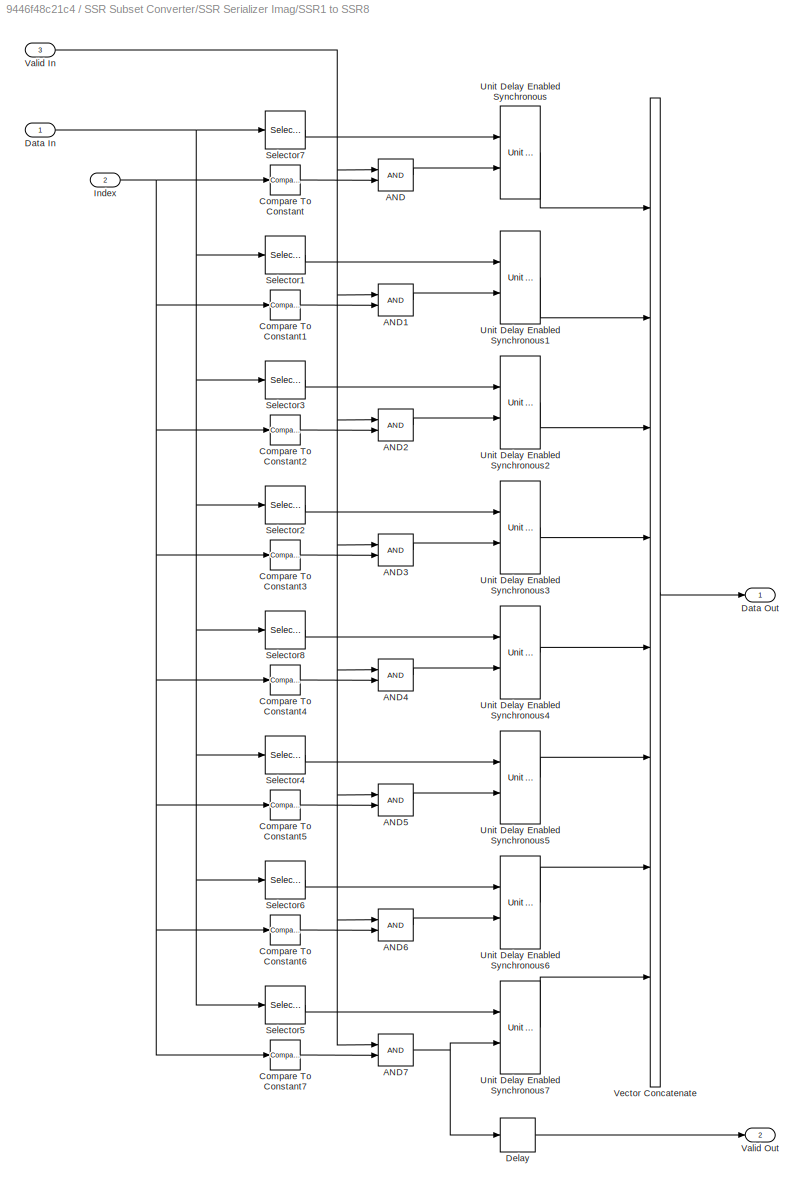
BLOCK [SubSystem] SSR Subset Converter/SSR Serializer Imag/SSR1 to SSR8
  Ports = [3, 2]
  RequestExecContextInheritance = off
BLOCK [Logic] SSR Subset Converter/SSR Serializer Imag/SSR1 to SSR8/AND
  AllPortsSameDT = off
  IconShape = distinctive
  OutDataTypeStr = boolean
  Ports = [2, 1]
BLOCK [Logic] SSR Subset Converter/SSR Serializer Imag/SSR1 to SSR8/AND1
  AllPortsSameDT = off
  IconShape = distinctive
  OutDataTypeStr = boolean
  Ports = [2, 1]
BLOCK [Logic] SSR Subset Converter/SSR Serializer Imag/SSR1 to SSR8/AND2
  AllPortsSameDT = off
  IconShape = distinctive
  OutDataTypeStr = boolean
  Ports = [2, 1]
BLOCK [Logic] SSR Subset Converter/SSR Serializer Imag/SSR1 to SSR8/AND3
  AllPortsSameDT = off
  IconShape = distinctive
  OutDataTypeStr = boolean
  Ports = [2, 1]
BLOCK [Logic] SSR Subset Converter/SSR Serializer Imag/SSR1 to SSR8/AND4
  AllPortsSameDT = off
  IconShape = distinctive
  OutDataTypeStr = boolean
  Ports = [2, 1]
BLOCK [Logic] SSR Subset Converter/SSR Serializer Imag/SSR1 to SSR8/AND5
  AllPortsSameDT = off
  IconShape = distinctive
  OutDataTypeStr = boolean
  Ports = [2, 1]
BLOCK [Logic] SSR Subset Converter/SSR Serializer Imag/SSR1 to SSR8/AND6
  AllPortsSameDT = off
  IconShape = distinctive
  OutDataTypeStr = boolean
  Ports = [2, 1]
BLOCK [Logic] SSR Subset Converter/SSR Serializer Imag/SSR1 to SSR8/AND7
  AllPortsSameDT = off
  IconShape = distinctive
  OutDataTypeStr = boolean
  Ports = [2, 1]
BLOCK [Reference] SSR Subset Converter/SSR Serializer Imag/SSR1 to SSR8/Compare To Constant  REF=simulink/Logic and Bit
Operations/Compare
To Constant
  Ports = [1, 1]
  SourceBlock = simulink/Logic and Bit\nOperations/Compare\nTo Constant
  SourceProductBaseCode = SL
  SourceType = Compare To Constant
BLOCK [Reference] SSR Subset Converter/SSR Serializer Imag/SSR1 to SSR8/Compare To Constant1  REF=simulink/Logic and Bit
Operations/Compare
To Constant
  Ports = [1, 1]
  SourceBlock = simulink/Logic and Bit\nOperations/Compare\nTo Constant
  SourceProductBaseCode = SL
  SourceType = Compare To Constant
BLOCK [Reference] SSR Subset Converter/SSR Serializer Imag/SSR1 to SSR8/Compare To Constant2  REF=simulink/Logic and Bit
Operations/Compare
To Constant
  Ports = [1, 1]
  SourceBlock = simulink/Logic and Bit\nOperations/Compare\nTo Constant
  SourceProductBaseCode = SL
  SourceType = Compare To Constant
BLOCK [Reference] SSR Subset Converter/SSR Serializer Imag/SSR1 to SSR8/Compare To Constant3  REF=simulink/Logic and Bit
Operations/Compare
To Constant
  Ports = [1, 1]
  SourceBlock = simulink/Logic and Bit\nOperations/Compare\nTo Constant
  SourceProductBaseCode = SL
  SourceType = Compare To Constant
BLOCK [Reference] SSR Subset Converter/SSR Serializer Imag/SSR1 to SSR8/Compare To Constant4  REF=simulink/Logic and Bit
Operations/Compare
To Constant
  Ports = [1, 1]
  SourceBlock = simulink/Logic and Bit\nOperations/Compare\nTo Constant
  SourceProductBaseCode = SL
  SourceType = Compare To Constant
BLOCK [Reference] SSR Subset Converter/SSR Serializer Imag/SSR1 to SSR8/Compare To Constant5  REF=simulink/Logic and Bit
Operations/Compare
To Constant
  Ports = [1, 1]
  SourceBlock = simulink/Logic and Bit\nOperations/Compare\nTo Constant
  SourceProductBaseCode = SL
  SourceType = Compare To Constant
BLOCK [Reference] SSR Subset Converter/SSR Serializer Imag/SSR1 to SSR8/Compare To Constant6  REF=simulink/Logic and Bit
Operations/Compare
To Constant
  Ports = [1, 1]
  SourceBlock = simulink/Logic and Bit\nOperations/Compare\nTo Constant
  SourceProductBaseCode = SL
  SourceType = Compare To Constant
BLOCK [Reference] SSR Subset Converter/SSR Serializer Imag/SSR1 to SSR8/Compare To Constant7  REF=simulink/Logic and Bit
Operations/Compare
To Constant
  Ports = [1, 1]
  SourceBlock = simulink/Logic and Bit\nOperations/Compare\nTo Constant
  SourceProductBaseCode = SL
  SourceType = Compare To Constant
BLOCK [Inport] SSR Subset Converter/SSR Serializer Imag/SSR1 to SSR8/Data In
BLOCK [Outport] SSR Subset Converter/SSR Serializer Imag/SSR1 to SSR8/Data Out
BLOCK [Delay] SSR Subset Converter/SSR Serializer Imag/SSR1 to SSR8/Delay
  DelayLength = 1
  InputPortMap = u0
  Ports = [1, 1]
BLOCK [Inport] SSR Subset Converter/SSR Serializer Imag/SSR1 to SSR8/Index
  Port = 2
BLOCK [Selector] SSR Subset Converter/SSR Serializer Imag/SSR1 to SSR8/Selector1
  IndexMode = Zero-based
  IndexOptions = Index vector (dialog)
  Indices = 0
  InputPortWidth = 8
  OutputSizes = 1
  Ports = [1, 1]
BLOCK [Selector] SSR Subset Converter/SSR Serializer Imag/SSR1 to SSR8/Selector2
  IndexMode = Zero-based
  IndexOptions = Index vector (dialog)
  Indices = 0
  InputPortWidth = 8
  OutputSizes = 1
  Ports = [1, 1]
BLOCK [Selector] SSR Subset Converter/SSR Serializer Imag/SSR1 to SSR8/Selector3
  IndexMode = Zero-based
  IndexOptions = Index vector (dialog)
  Indices = 0
  InputPortWidth = 8
  OutputSizes = 1
  Ports = [1, 1]
BLOCK [Selector] SSR Subset Converter/SSR Serializer Imag/SSR1 to SSR8/Selector4
  IndexMode = Zero-based
  IndexOptions = Index vector (dialog)
  Indices = 0
  InputPortWidth = 8
  OutputSizes = 1
  Ports = [1, 1]
BLOCK [Selector] SSR Subset Converter/SSR Serializer Imag/SSR1 to SSR8/Selector5
  IndexMode = Zero-based
  IndexOptions = Index vector (dialog)
  Indices = 0
  InputPortWidth = 8
  OutputSizes = 1
  Ports = [1, 1]
BLOCK [Selector] SSR Subset Converter/SSR Serializer Imag/SSR1 to SSR8/Selector6
  IndexMode = Zero-based
  IndexOptions = Index vector (dialog)
  Indices = 0
  InputPortWidth = 8
  OutputSizes = 1
  Ports = [1, 1]
BLOCK [Selector] SSR Subset Converter/SSR Serializer Imag/SSR1 to SSR8/Selector7
  IndexMode = Zero-based
  IndexOptions = Index vector (dialog)
  Indices = 0
  InputPortWidth = 8
  OutputSizes = 1
  Ports = [1, 1]
BLOCK [Selector] SSR Subset Converter/SSR Serializer Imag/SSR1 to SSR8/Selector8
  IndexMode = Zero-based
  IndexOptions = Index vector (dialog)
  Indices = 0
  InputPortWidth = 8
  OutputSizes = 1
  Ports = [1, 1]
BLOCK [Reference] SSR Subset Converter/SSR Serializer Imag/SSR1 to SSR8/Unit Delay Enabled Synchronous  REF=hdlsllib/Discrete/Unit Delay Enabled
Synchronous
  Ports = [2, 1]
  SourceBlock = hdlsllib/Discrete/Unit Delay Enabled\nSynchronous
  SourceProductBaseCode = SL
  SourceType = Unit Delay Enabled Synchronous
BLOCK [Reference] SSR Subset Converter/SSR Serializer Imag/SSR1 to SSR8/Unit Delay Enabled Synchronous1  REF=hdlsllib/Discrete/Unit Delay Enabled
Synchronous
  Ports = [2, 1]
  SourceBlock = hdlsllib/Discrete/Unit Delay Enabled\nSynchronous
  SourceProductBaseCode = SL
  SourceType = Unit Delay Enabled Synchronous
BLOCK [Reference] SSR Subset Converter/SSR Serializer Imag/SSR1 to SSR8/Unit Delay Enabled Synchronous2  REF=hdlsllib/Discrete/Unit Delay Enabled
Synchronous
  Ports = [2, 1]
  SourceBlock = hdlsllib/Discrete/Unit Delay Enabled\nSynchronous
  SourceProductBaseCode = SL
  SourceType = Unit Delay Enabled Synchronous
BLOCK [Reference] SSR Subset Converter/SSR Serializer Imag/SSR1 to SSR8/Unit Delay Enabled Synchronous3  REF=hdlsllib/Discrete/Unit Delay Enabled
Synchronous
  Ports = [2, 1]
  SourceBlock = hdlsllib/Discrete/Unit Delay Enabled\nSynchronous
  SourceProductBaseCode = SL
  SourceType = Unit Delay Enabled Synchronous
BLOCK [Reference] SSR Subset Converter/SSR Serializer Imag/SSR1 to SSR8/Unit Delay Enabled Synchronous4  REF=hdlsllib/Discrete/Unit Delay Enabled
Synchronous
  Ports = [2, 1]
  SourceBlock = hdlsllib/Discrete/Unit Delay Enabled\nSynchronous
  SourceProductBaseCode = SL
  SourceType = Unit Delay Enabled Synchronous
BLOCK [Reference] SSR Subset Converter/SSR Serializer Imag/SSR1 to SSR8/Unit Delay Enabled Synchronous5  REF=hdlsllib/Discrete/Unit Delay Enabled
Synchronous
  Ports = [2, 1]
  SourceBlock = hdlsllib/Discrete/Unit Delay Enabled\nSynchronous
  SourceProductBaseCode = SL
  SourceType = Unit Delay Enabled Synchronous
BLOCK [Reference] SSR Subset Converter/SSR Serializer Imag/SSR1 to SSR8/Unit Delay Enabled Synchronous6  REF=hdlsllib/Discrete/Unit Delay Enabled
Synchronous
  Ports = [2, 1]
  SourceBlock = hdlsllib/Discrete/Unit Delay Enabled\nSynchronous
  SourceProductBaseCode = SL
  SourceType = Unit Delay Enabled Synchronous
BLOCK [Reference] SSR Subset Converter/SSR Serializer Imag/SSR1 to SSR8/Unit Delay Enabled Synchronous7  REF=hdlsllib/Discrete/Unit Delay Enabled
Synchronous
  Ports = [2, 1]
  SourceBlock = hdlsllib/Discrete/Unit Delay Enabled\nSynchronous
  SourceProductBaseCode = SL
  SourceType = Unit Delay Enabled Synchronous
BLOCK [Inport] SSR Subset Converter/SSR Serializer Imag/SSR1 to SSR8/Valid In
  Port = 3
BLOCK [Outport] SSR Subset Converter/SSR Serializer Imag/SSR1 to SSR8/Valid Out
  Port = 2
BLOCK [Concatenate] SSR Subset Converter/SSR Serializer Imag/SSR1 to SSR8/Vector Concatenate
  NumInputs = 8
  Ports = [8, 1]
BLOCK [SubSystem] SSR Subset Converter/SSR Serializer Imag/SSR2 to SSR8
  Ports = [3, 2]
  RequestExecContextInheritance = off
BLOCK [Logic] SSR Subset Converter/SSR Serializer Imag/SSR2 to SSR8/AND
  AllPortsSameDT = off
  IconShape = distinctive
  OutDataTypeStr = boolean
  Ports = [2, 1]
BLOCK [Logic] SSR Subset Converter/SSR Serializer Imag/SSR2 to SSR8/AND1
  AllPortsSameDT = off
  IconShape = distinctive
  OutDataTypeStr = boolean
  Ports = [2, 1]
BLOCK [Logic] SSR Subset Converter/SSR Serializer Imag/SSR2 to SSR8/AND2
  AllPortsSameDT = off
  IconShape = distinctive
  OutDataTypeStr = boolean
  Ports = [2, 1]
BLOCK [Logic] SSR Subset Converter/SSR Serializer Imag/SSR2 to SSR8/AND3
  AllPortsSameDT = off
  IconShape = distinctive
  OutDataTypeStr = boolean
  Ports = [2, 1]
BLOCK [Reference] SSR Subset Converter/SSR Serializer Imag/SSR2 to SSR8/Compare To Constant10  REF=simulink/Logic and Bit
Operations/Compare
To Constant
  Ports = [1, 1]
  SourceBlock = simulink/Logic and Bit\nOperations/Compare\nTo Constant
  SourceProductBaseCode = SL
  SourceType = Compare To Constant
BLOCK [Reference] SSR Subset Converter/SSR Serializer Imag/SSR2 to SSR8/Compare To Constant11  REF=simulink/Logic and Bit
Operations/Compare
To Constant
  Ports = [1, 1]
  SourceBlock = simulink/Logic and Bit\nOperations/Compare\nTo Constant
  SourceProductBaseCode = SL
  SourceType = Compare To Constant
BLOCK [Reference] SSR Subset Converter/SSR Serializer Imag/SSR2 to SSR8/Compare To Constant8  REF=simulink/Logic and Bit
Operations/Compare
To Constant
  Ports = [1, 1]
  SourceBlock = simulink/Logic and Bit\nOperations/Compare\nTo Constant
  SourceProductBaseCode = SL
  SourceType = Compare To Constant
BLOCK [Reference] SSR Subset Converter/SSR Serializer Imag/SSR2 to SSR8/Compare To Constant9  REF=simulink/Logic and Bit
Operations/Compare
To Constant
  Ports = [1, 1]
  SourceBlock = simulink/Logic and Bit\nOperations/Compare\nTo Constant
  SourceProductBaseCode = SL
  SourceType = Compare To Constant
BLOCK [Inport] SSR Subset Converter/SSR Serializer Imag/SSR2 to SSR8/Data In
BLOCK [Outport] SSR Subset Converter/SSR Serializer Imag/SSR2 to SSR8/Data Out
BLOCK [Delay] SSR Subset Converter/SSR Serializer Imag/SSR2 to SSR8/Delay
  DelayLength = 1
  InputPortMap = u0
  Ports = [1, 1]
BLOCK [Inport] SSR Subset Converter/SSR Serializer Imag/SSR2 to SSR8/Index
  Port = 2
BLOCK [Selector] SSR Subset Converter/SSR Serializer Imag/SSR2 to SSR8/Selector10
  IndexMode = Zero-based
  IndexOptions = Index vector (dialog)
  Indices = [0, 1]
  InputPortWidth = 8
  OutputSizes = 1
  Ports = [1, 1]
BLOCK [Selector] SSR Subset Converter/SSR Serializer Imag/SSR2 to SSR8/Selector11
  IndexMode = Zero-based
  IndexOptions = Index vector (dialog)
  Indices = [0, 1]
  InputPortWidth = 8
  OutputSizes = 1
  Ports = [1, 1]
BLOCK [Selector] SSR Subset Converter/SSR Serializer Imag/SSR2 to SSR8/Selector12
  IndexMode = Zero-based
  IndexOptions = Index vector (dialog)
  Indices = [0, 1]
  InputPortWidth = 8
  OutputSizes = 1
  Ports = [1, 1]
BLOCK [Selector] SSR Subset Converter/SSR Serializer Imag/SSR2 to SSR8/Selector9
  IndexMode = Zero-based
  IndexOptions = Index vector (dialog)
  Indices = [0, 1]
  InputPortWidth = 8
  OutputSizes = 1
  Ports = [1, 1]
BLOCK [Reference] SSR Subset Converter/SSR Serializer Imag/SSR2 to SSR8/Unit Delay Enabled Synchronous  REF=hdlsllib/Discrete/Unit Delay Enabled
Synchronous
  Ports = [2, 1]
  SourceBlock = hdlsllib/Discrete/Unit Delay Enabled\nSynchronous
  SourceProductBaseCode = SL
  SourceType = Unit Delay Enabled Synchronous
BLOCK [Reference] SSR Subset Converter/SSR Serializer Imag/SSR2 to SSR8/Unit Delay Enabled Synchronous1  REF=hdlsllib/Discrete/Unit Delay Enabled
Synchronous
  Ports = [2, 1]
  SourceBlock = hdlsllib/Discrete/Unit Delay Enabled\nSynchronous
  SourceProductBaseCode = SL
  SourceType = Unit Delay Enabled Synchronous
BLOCK [Reference] SSR Subset Converter/SSR Serializer Imag/SSR2 to SSR8/Unit Delay Enabled Synchronous2  REF=hdlsllib/Discrete/Unit Delay Enabled
Synchronous
  Ports = [2, 1]
  SourceBlock = hdlsllib/Discrete/Unit Delay Enabled\nSynchronous
  SourceProductBaseCode = SL
  SourceType = Unit Delay Enabled Synchronous
BLOCK [Reference] SSR Subset Converter/SSR Serializer Imag/SSR2 to SSR8/Unit Delay Enabled Synchronous3  REF=hdlsllib/Discrete/Unit Delay Enabled
Synchronous
  Ports = [2, 1]
  SourceBlock = hdlsllib/Discrete/Unit Delay Enabled\nSynchronous
  SourceProductBaseCode = SL
  SourceType = Unit Delay Enabled Synchronous
BLOCK [Inport] SSR Subset Converter/SSR Serializer Imag/SSR2 to SSR8/Valid In
  Port = 3
BLOCK [Outport] SSR Subset Converter/SSR Serializer Imag/SSR2 to SSR8/Valid Out
  Port = 2
BLOCK [Concatenate] SSR Subset Converter/SSR Serializer Imag/SSR2 to SSR8/Vector Concatenate
  NumInputs = 4
  Ports = [4, 1]
BLOCK [SubSystem] SSR Subset Converter/SSR Serializer Imag/SSR4 to SSR8
  Ports = [3, 2]
  RequestExecContextInheritance = off
BLOCK [Logic] SSR Subset Converter/SSR Serializer Imag/SSR4 to SSR8/AND
  AllPortsSameDT = off
  IconShape = distinctive
  OutDataTypeStr = boolean
  Ports = [2, 1]
BLOCK [Logic] SSR Subset Converter/SSR Serializer Imag/SSR4 to SSR8/AND1
  AllPortsSameDT = off
  IconShape = distinctive
  OutDataTypeStr = boolean
  Ports = [2, 1]
BLOCK [Reference] SSR Subset Converter/SSR Serializer Imag/SSR4 to SSR8/Compare To Constant12  REF=simulink/Logic and Bit
Operations/Compare
To Constant
  Ports = [1, 1]
  SourceBlock = simulink/Logic and Bit\nOperations/Compare\nTo Constant
  SourceProductBaseCode = SL
  SourceType = Compare To Constant
BLOCK [Reference] SSR Subset Converter/SSR Serializer Imag/SSR4 to SSR8/Compare To Constant13  REF=simulink/Logic and Bit
Operations/Compare
To Constant
  Ports = [1, 1]
  SourceBlock = simulink/Logic and Bit\nOperations/Compare\nTo Constant
  SourceProductBaseCode = SL
  SourceType = Compare To Constant
BLOCK [Inport] SSR Subset Converter/SSR Serializer Imag/SSR4 to SSR8/Data In
BLOCK [Outport] SSR Subset Converter/SSR Serializer Imag/SSR4 to SSR8/Data Out
BLOCK [Delay] SSR Subset Converter/SSR Serializer Imag/SSR4 to SSR8/Delay
  DelayLength = 1
  InputPortMap = u0
  Ports = [1, 1]
BLOCK [Inport] SSR Subset Converter/SSR Serializer Imag/SSR4 to SSR8/Index
  Port = 2
BLOCK [Selector] SSR Subset Converter/SSR Serializer Imag/SSR4 to SSR8/Selector13
  IndexMode = Zero-based
  IndexOptions = Index vector (dialog)
  Indices = [0, 1, 2, 3]
  InputPortWidth = 8
  OutputSizes = 1
  Ports = [1, 1]
BLOCK [Selector] SSR Subset Converter/SSR Serializer Imag/SSR4 to SSR8/Selector14
  IndexMode = Zero-based
  IndexOptions = Index vector (dialog)
  Indices = [0, 1, 2, 3]
  InputPortWidth = 8
  OutputSizes = 1
  Ports = [1, 1]
BLOCK [Reference] SSR Subset Converter/SSR Serializer Imag/SSR4 to SSR8/Unit Delay Enabled Synchronous  REF=hdlsllib/Discrete/Unit Delay Enabled
Synchronous
  Ports = [2, 1]
  SourceBlock = hdlsllib/Discrete/Unit Delay Enabled\nSynchronous
  SourceProductBaseCode = SL
  SourceType = Unit Delay Enabled Synchronous
BLOCK [Reference] SSR Subset Converter/SSR Serializer Imag/SSR4 to SSR8/Unit Delay Enabled Synchronous1  REF=hdlsllib/Discrete/Unit Delay Enabled
Synchronous
  Ports = [2, 1]
  SourceBlock = hdlsllib/Discrete/Unit Delay Enabled\nSynchronous
  SourceProductBaseCode = SL
  SourceType = Unit Delay Enabled Synchronous
BLOCK [Inport] SSR Subset Converter/SSR Serializer Imag/SSR4 to SSR8/Valid In
  Port = 3
BLOCK [Outport] SSR Subset Converter/SSR Serializer Imag/SSR4 to SSR8/Valid Out
  Port = 2
BLOCK [Concatenate] SSR Subset Converter/SSR Serializer Imag/SSR4 to SSR8/Vector Concatenate
  Ports = [2, 1]
BLOCK [Reference] SSR Subset Converter/SSR Serializer Imag/Unit Delay Enabled Synchronous  REF=hdlsllib/Discrete/Unit Delay Enabled
Synchronous
  Ports = [2, 1]
  SourceBlock = hdlsllib/Discrete/Unit Delay Enabled\nSynchronous
  SourceProductBaseCode = SL
  SourceType = Unit Delay Enabled Synchronous
BLOCK [Inport] SSR Subset Converter/SSR Serializer Imag/Valid In
  Port = 2
BLOCK [Outport] SSR Subset Converter/SSR Serializer Imag/Valid Out
BLOCK [SubSystem] SSR Subset Converter/SSR Serializer Imag/Vector to SSR
  Ports = [1, 1]
  RequestExecContextInheritance = off
BLOCK [Reference] SSR Subset Converter/SSR Serializer Imag/Vector to SSR/Bit Concat  REF=hdlsllib/Logic and Bit
Operations/Bit Concat
  Ports = [8, 1]
  SourceBlock = hdlsllib/Logic and Bit\nOperations/Bit Concat
  SourceProductBaseCode = SL
  SourceType = Bit Concat
BLOCK [Outport] SSR Subset Converter/SSR Serializer Imag/Vector to SSR/SSR
BLOCK [Selector] SSR Subset Converter/SSR Serializer Imag/Vector to SSR/Selector0
  IndexOptions = Index vector (dialog)
  Indices = 8
  InputPortWidth = 8
  OutputSizes = 1
  Ports = [1, 1]
BLOCK [Selector] SSR Subset Converter/SSR Serializer Imag/Vector to SSR/Selector1
  IndexOptions = Index vector (dialog)
  Indices = 7
  InputPortWidth = 8
  OutputSizes = 1
  Ports = [1, 1]
BLOCK [Selector] SSR Subset Converter/SSR Serializer Imag/Vector to SSR/Selector2
  IndexOptions = Index vector (dialog)
  Indices = 6
  InputPortWidth = 8
  OutputSizes = 1
  Ports = [1, 1]
BLOCK [Selector] SSR Subset Converter/SSR Serializer Imag/Vector to SSR/Selector3
  IndexOptions = Index vector (dialog)
  Indices = 5
  InputPortWidth = 8
  OutputSizes = 1
  Ports = [1, 1]
BLOCK [Selector] SSR Subset Converter/SSR Serializer Imag/Vector to SSR/Selector4
  IndexOptions = Index vector (dialog)
  Indices = 4
  InputPortWidth = 8
  OutputSizes = 1
  Ports = [1, 1]
BLOCK [Selector] SSR Subset Converter/SSR Serializer Imag/Vector to SSR/Selector5
  IndexOptions = Index vector (dialog)
  Indices = 3
  InputPortWidth = 8
  OutputSizes = 1
  Ports = [1, 1]
BLOCK [Selector] SSR Subset Converter/SSR Serializer Imag/Vector to SSR/Selector6
  IndexOptions = Index vector (dialog)
  Indices = 2
  InputPortWidth = 8
  OutputSizes = 1
  Ports = [1, 1]
BLOCK [Selector] SSR Subset Converter/SSR Serializer Imag/Vector to SSR/Selector7
  IndexOptions = Index vector (dialog)
  Indices = 1
  InputPortWidth = 8
  OutputSizes = 1
  Ports = [1, 1]
BLOCK [Inport] SSR Subset Converter/SSR Serializer Imag/Vector to SSR/Vector
BLOCK [SubSystem] SSR Subset Converter/SSR Serializer Real
  Ports = [3, 2]
  RequestExecContextInheritance = off
BLOCK [Reference] SSR Subset Converter/SSR Serializer Real/Bit Slice  REF=hdlsllib/Logic and Bit
Operations/Bit Slice
  Ports = [1, 1]
  SourceBlock = hdlsllib/Logic and Bit\nOperations/Bit Slice
  SourceProductBaseCode = SL
  SourceType = Bit Slice
BLOCK [Reference] SSR Subset Converter/SSR Serializer Real/Bit Slice1  REF=hdlsllib/Logic and Bit
Operations/Bit Slice
  Ports = [1, 1]
  SourceBlock = hdlsllib/Logic and Bit\nOperations/Bit Slice
  SourceProductBaseCode = SL
  SourceType = Bit Slice
BLOCK [Inport] SSR Subset Converter/SSR Serializer Real/Data In
  Port = 3
BLOCK [Outport] SSR Subset Converter/SSR Serializer Real/Data Out
  Port = 2
BLOCK [Delay] SSR Subset Converter/SSR Serializer Real/Delay
  DelayLength = 1
  InputPortMap = u0
  Ports = [1, 1]
BLOCK [Reference] SSR Subset Converter/SSR Serializer Real/HDL Counter  REF=hdlsllib/Sources/HDL Counter
  Ports = [1, 1]
  SourceBlock = hdlsllib/Sources/HDL Counter
  SourceProductBaseCode = SL
  SourceType = HDL Counter
BLOCK [MultiPortSwitch] SSR Subset Converter/SSR Serializer Real/Multiport Switch
  DataPortOrder = Zero-based contiguous
  InputSameDT = off
  Inputs = 4
  Ports = [5, 1]
  SaturateOnIntegerOverflow = off
  zeroidx = on
BLOCK [MultiPortSwitch] SSR Subset Converter/SSR Serializer Real/Multiport Switch1
  DataPortOrder = Zero-based contiguous
  InputSameDT = off
  Inputs = 4
  Ports = [5, 1]
  SaturateOnIntegerOverflow = off
  zeroidx = on
BLOCK [Inport] SSR Subset Converter/SSR Serializer Real/SSR Control
BLOCK [SubSystem] SSR Subset Converter/SSR Serializer Real/SSR to Vector
  Ports = [1, 1]
  RequestExecContextInheritance = off
BLOCK [Reference] SSR Subset Converter/SSR Serializer Real/SSR to Vector/Bit Slice0  REF=hdlsllib/Logic and Bit
Operations/Bit Slice
  Ports = [1, 1]
  SourceBlock = hdlsllib/Logic and Bit\nOperations/Bit Slice
  SourceProductBaseCode = SL
  SourceType = Bit Slice
BLOCK [Reference] SSR Subset Converter/SSR Serializer Real/SSR to Vector/Bit Slice1  REF=hdlsllib/Logic and Bit
Operations/Bit Slice
  Ports = [1, 1]
  SourceBlock = hdlsllib/Logic and Bit\nOperations/Bit Slice
  SourceProductBaseCode = SL
  SourceType = Bit Slice
BLOCK [Reference] SSR Subset Converter/SSR Serializer Real/SSR to Vector/Bit Slice2  REF=hdlsllib/Logic and Bit
Operations/Bit Slice
  Ports = [1, 1]
  SourceBlock = hdlsllib/Logic and Bit\nOperations/Bit Slice
  SourceProductBaseCode = SL
  SourceType = Bit Slice
BLOCK [Reference] SSR Subset Converter/SSR Serializer Real/SSR to Vector/Bit Slice3  REF=hdlsllib/Logic and Bit
Operations/Bit Slice
  Ports = [1, 1]
  SourceBlock = hdlsllib/Logic and Bit\nOperations/Bit Slice
  SourceProductBaseCode = SL
  SourceType = Bit Slice
BLOCK [Reference] SSR Subset Converter/SSR Serializer Real/SSR to Vector/Bit Slice4  REF=hdlsllib/Logic and Bit
Operations/Bit Slice
  Ports = [1, 1]
  SourceBlock = hdlsllib/Logic and Bit\nOperations/Bit Slice
  SourceProductBaseCode = SL
  SourceType = Bit Slice
BLOCK [Reference] SSR Subset Converter/SSR Serializer Real/SSR to Vector/Bit Slice5  REF=hdlsllib/Logic and Bit
Operations/Bit Slice
  Ports = [1, 1]
  SourceBlock = hdlsllib/Logic and Bit\nOperations/Bit Slice
  SourceProductBaseCode = SL
  SourceType = Bit Slice
BLOCK [Reference] SSR Subset Converter/SSR Serializer Real/SSR to Vector/Bit Slice6  REF=hdlsllib/Logic and Bit
Operations/Bit Slice
  Ports = [1, 1]
  SourceBlock = hdlsllib/Logic and Bit\nOperations/Bit Slice
  SourceProductBaseCode = SL
  SourceType = Bit Slice
BLOCK [Reference] SSR Subset Converter/SSR Serializer Real/SSR to Vector/Bit Slice7  REF=hdlsllib/Logic and Bit
Operations/Bit Slice
  Ports = [1, 1]
  SourceBlock = hdlsllib/Logic and Bit\nOperations/Bit Slice
  SourceProductBaseCode = SL
  SourceType = Bit Slice
BLOCK [Concatenate] SSR Subset Converter/SSR Serializer Real/SSR to Vector/Matrix Concatenate
  ConcatenateDimension = 2
  NumInputs = 8
  Ports = [8, 1]
BLOCK [Inport] SSR Subset Converter/SSR Serializer Real/SSR to Vector/SSR
BLOCK [Outport] SSR Subset Converter/SSR Serializer Real/SSR to Vector/Vector
BLOCK [SubSystem] SSR Subset Converter/SSR Serializer Real/SSR1 to SSR8
  Ports = [3, 2]
  RequestExecContextInheritance = off
BLOCK [Logic] SSR Subset Converter/SSR Serializer Real/SSR1 to SSR8/AND
  AllPortsSameDT = off
  IconShape = distinctive
  OutDataTypeStr = boolean
  Ports = [2, 1]
BLOCK [Logic] SSR Subset Converter/SSR Serializer Real/SSR1 to SSR8/AND1
  AllPortsSameDT = off
  IconShape = distinctive
  OutDataTypeStr = boolean
  Ports = [2, 1]
BLOCK [Logic] SSR Subset Converter/SSR Serializer Real/SSR1 to SSR8/AND2
  AllPortsSameDT = off
  IconShape = distinctive
  OutDataTypeStr = boolean
  Ports = [2, 1]
BLOCK [Logic] SSR Subset Converter/SSR Serializer Real/SSR1 to SSR8/AND3
  AllPortsSameDT = off
  IconShape = distinctive
  OutDataTypeStr = boolean
  Ports = [2, 1]
BLOCK [Logic] SSR Subset Converter/SSR Serializer Real/SSR1 to SSR8/AND4
  AllPortsSameDT = off
  IconShape = distinctive
  OutDataTypeStr = boolean
  Ports = [2, 1]
BLOCK [Logic] SSR Subset Converter/SSR Serializer Real/SSR1 to SSR8/AND5
  AllPortsSameDT = off
  IconShape = distinctive
  OutDataTypeStr = boolean
  Ports = [2, 1]
BLOCK [Logic] SSR Subset Converter/SSR Serializer Real/SSR1 to SSR8/AND6
  AllPortsSameDT = off
  IconShape = distinctive
  OutDataTypeStr = boolean
  Ports = [2, 1]
BLOCK [Logic] SSR Subset Converter/SSR Serializer Real/SSR1 to SSR8/AND7
  AllPortsSameDT = off
  IconShape = distinctive
  OutDataTypeStr = boolean
  Ports = [2, 1]
BLOCK [Reference] SSR Subset Converter/SSR Serializer Real/SSR1 to SSR8/Compare To Constant  REF=simulink/Logic and Bit
Operations/Compare
To Constant
  Ports = [1, 1]
  SourceBlock = simulink/Logic and Bit\nOperations/Compare\nTo Constant
  SourceProductBaseCode = SL
  SourceType = Compare To Constant
BLOCK [Reference] SSR Subset Converter/SSR Serializer Real/SSR1 to SSR8/Compare To Constant1  REF=simulink/Logic and Bit
Operations/Compare
To Constant
  Ports = [1, 1]
  SourceBlock = simulink/Logic and Bit\nOperations/Compare\nTo Constant
  SourceProductBaseCode = SL
  SourceType = Compare To Constant
BLOCK [Reference] SSR Subset Converter/SSR Serializer Real/SSR1 to SSR8/Compare To Constant2  REF=simulink/Logic and Bit
Operations/Compare
To Constant
  Ports = [1, 1]
  SourceBlock = simulink/Logic and Bit\nOperations/Compare\nTo Constant
  SourceProductBaseCode = SL
  SourceType = Compare To Constant
BLOCK [Reference] SSR Subset Converter/SSR Serializer Real/SSR1 to SSR8/Compare To Constant3  REF=simulink/Logic and Bit
Operations/Compare
To Constant
  Ports = [1, 1]
  SourceBlock = simulink/Logic and Bit\nOperations/Compare\nTo Constant
  SourceProductBaseCode = SL
  SourceType = Compare To Constant
BLOCK [Reference] SSR Subset Converter/SSR Serializer Real/SSR1 to SSR8/Compare To Constant4  REF=simulink/Logic and Bit
Operations/Compare
To Constant
  Ports = [1, 1]
  SourceBlock = simulink/Logic and Bit\nOperations/Compare\nTo Constant
  SourceProductBaseCode = SL
  SourceType = Compare To Constant
BLOCK [Reference] SSR Subset Converter/SSR Serializer Real/SSR1 to SSR8/Compare To Constant5  REF=simulink/Logic and Bit
Operations/Compare
To Constant
  Ports = [1, 1]
  SourceBlock = simulink/Logic and Bit\nOperations/Compare\nTo Constant
  SourceProductBaseCode = SL
  SourceType = Compare To Constant
BLOCK [Reference] SSR Subset Converter/SSR Serializer Real/SSR1 to SSR8/Compare To Constant6  REF=simulink/Logic and Bit
Operations/Compare
To Constant
  Ports = [1, 1]
  SourceBlock = simulink/Logic and Bit\nOperations/Compare\nTo Constant
  SourceProductBaseCode = SL
  SourceType = Compare To Constant
BLOCK [Reference] SSR Subset Converter/SSR Serializer Real/SSR1 to SSR8/Compare To Constant7  REF=simulink/Logic and Bit
Operations/Compare
To Constant
  Ports = [1, 1]
  SourceBlock = simulink/Logic and Bit\nOperations/Compare\nTo Constant
  SourceProductBaseCode = SL
  SourceType = Compare To Constant
BLOCK [Inport] SSR Subset Converter/SSR Serializer Real/SSR1 to SSR8/Data In
BLOCK [Outport] SSR Subset Converter/SSR Serializer Real/SSR1 to SSR8/Data Out
BLOCK [Delay] SSR Subset Converter/SSR Serializer Real/SSR1 to SSR8/Delay
  DelayLength = 1
  InputPortMap = u0
  Ports = [1, 1]
BLOCK [Inport] SSR Subset Converter/SSR Serializer Real/SSR1 to SSR8/Index
  Port = 2
BLOCK [Selector] SSR Subset Converter/SSR Serializer Real/SSR1 to SSR8/Selector1
  IndexMode = Zero-based
  IndexOptions = Index vector (dialog)
  Indices = 0
  InputPortWidth = 8
  OutputSizes = 1
  Ports = [1, 1]
BLOCK [Selector] SSR Subset Converter/SSR Serializer Real/SSR1 to SSR8/Selector2
  IndexMode = Zero-based
  IndexOptions = Index vector (dialog)
  Indices = 0
  InputPortWidth = 8
  OutputSizes = 1
  Ports = [1, 1]
BLOCK [Selector] SSR Subset Converter/SSR Serializer Real/SSR1 to SSR8/Selector3
  IndexMode = Zero-based
  IndexOptions = Index vector (dialog)
  Indices = 0
  InputPortWidth = 8
  OutputSizes = 1
  Ports = [1, 1]
BLOCK [Selector] SSR Subset Converter/SSR Serializer Real/SSR1 to SSR8/Selector4
  IndexMode = Zero-based
  IndexOptions = Index vector (dialog)
  Indices = 0
  InputPortWidth = 8
  OutputSizes = 1
  Ports = [1, 1]
BLOCK [Selector] SSR Subset Converter/SSR Serializer Real/SSR1 to SSR8/Selector5
  IndexMode = Zero-based
  IndexOptions = Index vector (dialog)
  Indices = 0
  InputPortWidth = 8
  OutputSizes = 1
  Ports = [1, 1]
BLOCK [Selector] SSR Subset Converter/SSR Serializer Real/SSR1 to SSR8/Selector6
  IndexMode = Zero-based
  IndexOptions = Index vector (dialog)
  Indices = 0
  InputPortWidth = 8
  OutputSizes = 1
  Ports = [1, 1]
BLOCK [Selector] SSR Subset Converter/SSR Serializer Real/SSR1 to SSR8/Selector7
  IndexMode = Zero-based
  IndexOptions = Index vector (dialog)
  Indices = 0
  InputPortWidth = 8
  OutputSizes = 1
  Ports = [1, 1]
BLOCK [Selector] SSR Subset Converter/SSR Serializer Real/SSR1 to SSR8/Selector8
  IndexMode = Zero-based
  IndexOptions = Index vector (dialog)
  Indices = 0
  InputPortWidth = 8
  OutputSizes = 1
  Ports = [1, 1]
BLOCK [Reference] SSR Subset Converter/SSR Serializer Real/SSR1 to SSR8/Unit Delay Enabled Synchronous  REF=hdlsllib/Discrete/Unit Delay Enabled
Synchronous
  Ports = [2, 1]
  SourceBlock = hdlsllib/Discrete/Unit Delay Enabled\nSynchronous
  SourceProductBaseCode = SL
  SourceType = Unit Delay Enabled Synchronous
BLOCK [Reference] SSR Subset Converter/SSR Serializer Real/SSR1 to SSR8/Unit Delay Enabled Synchronous1  REF=hdlsllib/Discrete/Unit Delay Enabled
Synchronous
  Ports = [2, 1]
  SourceBlock = hdlsllib/Discrete/Unit Delay Enabled\nSynchronous
  SourceProductBaseCode = SL
  SourceType = Unit Delay Enabled Synchronous
BLOCK [Reference] SSR Subset Converter/SSR Serializer Real/SSR1 to SSR8/Unit Delay Enabled Synchronous2  REF=hdlsllib/Discrete/Unit Delay Enabled
Synchronous
  Ports = [2, 1]
  SourceBlock = hdlsllib/Discrete/Unit Delay Enabled\nSynchronous
  SourceProductBaseCode = SL
  SourceType = Unit Delay Enabled Synchronous
BLOCK [Reference] SSR Subset Converter/SSR Serializer Real/SSR1 to SSR8/Unit Delay Enabled Synchronous3  REF=hdlsllib/Discrete/Unit Delay Enabled
Synchronous
  Ports = [2, 1]
  SourceBlock = hdlsllib/Discrete/Unit Delay Enabled\nSynchronous
  SourceProductBaseCode = SL
  SourceType = Unit Delay Enabled Synchronous
BLOCK [Reference] SSR Subset Converter/SSR Serializer Real/SSR1 to SSR8/Unit Delay Enabled Synchronous4  REF=hdlsllib/Discrete/Unit Delay Enabled
Synchronous
  Ports = [2, 1]
  SourceBlock = hdlsllib/Discrete/Unit Delay Enabled\nSynchronous
  SourceProductBaseCode = SL
  SourceType = Unit Delay Enabled Synchronous
BLOCK [Reference] SSR Subset Converter/SSR Serializer Real/SSR1 to SSR8/Unit Delay Enabled Synchronous5  REF=hdlsllib/Discrete/Unit Delay Enabled
Synchronous
  Ports = [2, 1]
  SourceBlock = hdlsllib/Discrete/Unit Delay Enabled\nSynchronous
  SourceProductBaseCode = SL
  SourceType = Unit Delay Enabled Synchronous
BLOCK [Reference] SSR Subset Converter/SSR Serializer Real/SSR1 to SSR8/Unit Delay Enabled Synchronous6  REF=hdlsllib/Discrete/Unit Delay Enabled
Synchronous
  Ports = [2, 1]
  SourceBlock = hdlsllib/Discrete/Unit Delay Enabled\nSynchronous
  SourceProductBaseCode = SL
  SourceType = Unit Delay Enabled Synchronous
BLOCK [Reference] SSR Subset Converter/SSR Serializer Real/SSR1 to SSR8/Unit Delay Enabled Synchronous7  REF=hdlsllib/Discrete/Unit Delay Enabled
Synchronous
  Ports = [2, 1]
  SourceBlock = hdlsllib/Discrete/Unit Delay Enabled\nSynchronous
  SourceProductBaseCode = SL
  SourceType = Unit Delay Enabled Synchronous
BLOCK [Inport] SSR Subset Converter/SSR Serializer Real/SSR1 to SSR8/Valid In
  Port = 3
BLOCK [Outport] SSR Subset Converter/SSR Serializer Real/SSR1 to SSR8/Valid Out
  Port = 2
BLOCK [Concatenate] SSR Subset Converter/SSR Serializer Real/SSR1 to SSR8/Vector Concatenate
  NumInputs = 8
  Ports = [8, 1]
BLOCK [SubSystem] SSR Subset Converter/SSR Serializer Real/SSR2 to SSR8
  Ports = [3, 2]
  RequestExecContextInheritance = off
BLOCK [Logic] SSR Subset Converter/SSR Serializer Real/SSR2 to SSR8/AND
  AllPortsSameDT = off
  IconShape = distinctive
  OutDataTypeStr = boolean
  Ports = [2, 1]
BLOCK [Logic] SSR Subset Converter/SSR Serializer Real/SSR2 to SSR8/AND1
  AllPortsSameDT = off
  IconShape = distinctive
  OutDataTypeStr = boolean
  Ports = [2, 1]
BLOCK [Logic] SSR Subset Converter/SSR Serializer Real/SSR2 to SSR8/AND2
  AllPortsSameDT = off
  IconShape = distinctive
  OutDataTypeStr = boolean
  Ports = [2, 1]
BLOCK [Logic] SSR Subset Converter/SSR Serializer Real/SSR2 to SSR8/AND3
  AllPortsSameDT = off
  IconShape = distinctive
  OutDataTypeStr = boolean
  Ports = [2, 1]
BLOCK [Reference] SSR Subset Converter/SSR Serializer Real/SSR2 to SSR8/Compare To Constant10  REF=simulink/Logic and Bit
Operations/Compare
To Constant
  Ports = [1, 1]
  SourceBlock = simulink/Logic and Bit\nOperations/Compare\nTo Constant
  SourceProductBaseCode = SL
  SourceType = Compare To Constant
BLOCK [Reference] SSR Subset Converter/SSR Serializer Real/SSR2 to SSR8/Compare To Constant11  REF=simulink/Logic and Bit
Operations/Compare
To Constant
  Ports = [1, 1]
  SourceBlock = simulink/Logic and Bit\nOperations/Compare\nTo Constant
  SourceProductBaseCode = SL
  SourceType = Compare To Constant
BLOCK [Reference] SSR Subset Converter/SSR Serializer Real/SSR2 to SSR8/Compare To Constant8  REF=simulink/Logic and Bit
Operations/Compare
To Constant
  Ports = [1, 1]
  SourceBlock = simulink/Logic and Bit\nOperations/Compare\nTo Constant
  SourceProductBaseCode = SL
  SourceType = Compare To Constant
BLOCK [Reference] SSR Subset Converter/SSR Serializer Real/SSR2 to SSR8/Compare To Constant9  REF=simulink/Logic and Bit
Operations/Compare
To Constant
  Ports = [1, 1]
  SourceBlock = simulink/Logic and Bit\nOperations/Compare\nTo Constant
  SourceProductBaseCode = SL
  SourceType = Compare To Constant
BLOCK [Inport] SSR Subset Converter/SSR Serializer Real/SSR2 to SSR8/Data In
BLOCK [Outport] SSR Subset Converter/SSR Serializer Real/SSR2 to SSR8/Data Out
BLOCK [Delay] SSR Subset Converter/SSR Serializer Real/SSR2 to SSR8/Delay
  DelayLength = 1
  InputPortMap = u0
  Ports = [1, 1]
BLOCK [Inport] SSR Subset Converter/SSR Serializer Real/SSR2 to SSR8/Index
  Port = 2
BLOCK [Selector] SSR Subset Converter/SSR Serializer Real/SSR2 to SSR8/Selector10
  IndexMode = Zero-based
  IndexOptions = Index vector (dialog)
  Indices = [0, 1]
  InputPortWidth = 8
  OutputSizes = 1
  Ports = [1, 1]
BLOCK [Selector] SSR Subset Converter/SSR Serializer Real/SSR2 to SSR8/Selector11
  IndexMode = Zero-based
  IndexOptions = Index vector (dialog)
  Indices = [0, 1]
  InputPortWidth = 8
  OutputSizes = 1
  Ports = [1, 1]
BLOCK [Selector] SSR Subset Converter/SSR Serializer Real/SSR2 to SSR8/Selector12
  IndexMode = Zero-based
  IndexOptions = Index vector (dialog)
  Indices = [0, 1]
  InputPortWidth = 8
  OutputSizes = 1
  Ports = [1, 1]
BLOCK [Selector] SSR Subset Converter/SSR Serializer Real/SSR2 to SSR8/Selector9
  IndexMode = Zero-based
  IndexOptions = Index vector (dialog)
  Indices = [0, 1]
  InputPortWidth = 8
  OutputSizes = 1
  Ports = [1, 1]
BLOCK [Reference] SSR Subset Converter/SSR Serializer Real/SSR2 to SSR8/Unit Delay Enabled Synchronous  REF=hdlsllib/Discrete/Unit Delay Enabled
Synchronous
  Ports = [2, 1]
  SourceBlock = hdlsllib/Discrete/Unit Delay Enabled\nSynchronous
  SourceProductBaseCode = SL
  SourceType = Unit Delay Enabled Synchronous
BLOCK [Reference] SSR Subset Converter/SSR Serializer Real/SSR2 to SSR8/Unit Delay Enabled Synchronous1  REF=hdlsllib/Discrete/Unit Delay Enabled
Synchronous
  Ports = [2, 1]
  SourceBlock = hdlsllib/Discrete/Unit Delay Enabled\nSynchronous
  SourceProductBaseCode = SL
  SourceType = Unit Delay Enabled Synchronous
BLOCK [Reference] SSR Subset Converter/SSR Serializer Real/SSR2 to SSR8/Unit Delay Enabled Synchronous2  REF=hdlsllib/Discrete/Unit Delay Enabled
Synchronous
  Ports = [2, 1]
  SourceBlock = hdlsllib/Discrete/Unit Delay Enabled\nSynchronous
  SourceProductBaseCode = SL
  SourceType = Unit Delay Enabled Synchronous
BLOCK [Reference] SSR Subset Converter/SSR Serializer Real/SSR2 to SSR8/Unit Delay Enabled Synchronous3  REF=hdlsllib/Discrete/Unit Delay Enabled
Synchronous
  Ports = [2, 1]
  SourceBlock = hdlsllib/Discrete/Unit Delay Enabled\nSynchronous
  SourceProductBaseCode = SL
  SourceType = Unit Delay Enabled Synchronous
BLOCK [Inport] SSR Subset Converter/SSR Serializer Real/SSR2 to SSR8/Valid In
  Port = 3
BLOCK [Outport] SSR Subset Converter/SSR Serializer Real/SSR2 to SSR8/Valid Out
  Port = 2
BLOCK [Concatenate] SSR Subset Converter/SSR Serializer Real/SSR2 to SSR8/Vector Concatenate
  NumInputs = 4
  Ports = [4, 1]
BLOCK [SubSystem] SSR Subset Converter/SSR Serializer Real/SSR4 to SSR8
  Ports = [3, 2]
  RequestExecContextInheritance = off
BLOCK [Logic] SSR Subset Converter/SSR Serializer Real/SSR4 to SSR8/AND
  AllPortsSameDT = off
  IconShape = distinctive
  OutDataTypeStr = boolean
  Ports = [2, 1]
BLOCK [Logic] SSR Subset Converter/SSR Serializer Real/SSR4 to SSR8/AND1
  AllPortsSameDT = off
  IconShape = distinctive
  OutDataTypeStr = boolean
  Ports = [2, 1]
BLOCK [Reference] SSR Subset Converter/SSR Serializer Real/SSR4 to SSR8/Compare To Constant12  REF=simulink/Logic and Bit
Operations/Compare
To Constant
  Ports = [1, 1]
  SourceBlock = simulink/Logic and Bit\nOperations/Compare\nTo Constant
  SourceProductBaseCode = SL
  SourceType = Compare To Constant
BLOCK [Reference] SSR Subset Converter/SSR Serializer Real/SSR4 to SSR8/Compare To Constant13  REF=simulink/Logic and Bit
Operations/Compare
To Constant
  Ports = [1, 1]
  SourceBlock = simulink/Logic and Bit\nOperations/Compare\nTo Constant
  SourceProductBaseCode = SL
  SourceType = Compare To Constant
BLOCK [Inport] SSR Subset Converter/SSR Serializer Real/SSR4 to SSR8/Data In
BLOCK [Outport] SSR Subset Converter/SSR Serializer Real/SSR4 to SSR8/Data Out
BLOCK [Delay] SSR Subset Converter/SSR Serializer Real/SSR4 to SSR8/Delay
  DelayLength = 1
  InputPortMap = u0
  Ports = [1, 1]
BLOCK [Inport] SSR Subset Converter/SSR Serializer Real/SSR4 to SSR8/Index
  Port = 2
BLOCK [Selector] SSR Subset Converter/SSR Serializer Real/SSR4 to SSR8/Selector13
  IndexMode = Zero-based
  IndexOptions = Index vector (dialog)
  Indices = [0, 1, 2, 3]
  InputPortWidth = 8
  OutputSizes = 1
  Ports = [1, 1]
BLOCK [Selector] SSR Subset Converter/SSR Serializer Real/SSR4 to SSR8/Selector14
  IndexMode = Zero-based
  IndexOptions = Index vector (dialog)
  Indices = [0, 1, 2, 3]
  InputPortWidth = 8
  OutputSizes = 1
  Ports = [1, 1]
BLOCK [Reference] SSR Subset Converter/SSR Serializer Real/SSR4 to SSR8/Unit Delay Enabled Synchronous  REF=hdlsllib/Discrete/Unit Delay Enabled
Synchronous
  Ports = [2, 1]
  SourceBlock = hdlsllib/Discrete/Unit Delay Enabled\nSynchronous
  SourceProductBaseCode = SL
  SourceType = Unit Delay Enabled Synchronous
BLOCK [Reference] SSR Subset Converter/SSR Serializer Real/SSR4 to SSR8/Unit Delay Enabled Synchronous1  REF=hdlsllib/Discrete/Unit Delay Enabled
Synchronous
  Ports = [2, 1]
  SourceBlock = hdlsllib/Discrete/Unit Delay Enabled\nSynchronous
  SourceProductBaseCode = SL
  SourceType = Unit Delay Enabled Synchronous
BLOCK [Inport] SSR Subset Converter/SSR Serializer Real/SSR4 to SSR8/Valid In
  Port = 3
BLOCK [Outport] SSR Subset Converter/SSR Serializer Real/SSR4 to SSR8/Valid Out
  Port = 2
BLOCK [Concatenate] SSR Subset Converter/SSR Serializer Real/SSR4 to SSR8/Vector Concatenate
  Ports = [2, 1]
BLOCK [Reference] SSR Subset Converter/SSR Serializer Real/Unit Delay Enabled Synchronous  REF=hdlsllib/Discrete/Unit Delay Enabled
Synchronous
  Ports = [2, 1]
  SourceBlock = hdlsllib/Discrete/Unit Delay Enabled\nSynchronous
  SourceProductBaseCode = SL
  SourceType = Unit Delay Enabled Synchronous
BLOCK [Inport] SSR Subset Converter/SSR Serializer Real/Valid In
  Port = 2
BLOCK [Outport] SSR Subset Converter/SSR Serializer Real/Valid Out
BLOCK [SubSystem] SSR Subset Converter/SSR Serializer Real/Vector to SSR
  Ports = [1, 1]
  RequestExecContextInheritance = off
BLOCK [Reference] SSR Subset Converter/SSR Serializer Real/Vector to SSR/Bit Concat  REF=hdlsllib/Logic and Bit
Operations/Bit Concat
  Ports = [8, 1]
  SourceBlock = hdlsllib/Logic and Bit\nOperations/Bit Concat
  SourceProductBaseCode = SL
  SourceType = Bit Concat
BLOCK [Outport] SSR Subset Converter/SSR Serializer Real/Vector to SSR/SSR
BLOCK [Selector] SSR Subset Converter/SSR Serializer Real/Vector to SSR/Selector0
  IndexOptions = Index vector (dialog)
  Indices = 8
  InputPortWidth = 8
  OutputSizes = 1
  Ports = [1, 1]
BLOCK [Selector] SSR Subset Converter/SSR Serializer Real/Vector to SSR/Selector1
  IndexOptions = Index vector (dialog)
  Indices = 7
  InputPortWidth = 8
  OutputSizes = 1
  Ports = [1, 1]
BLOCK [Selector] SSR Subset Converter/SSR Serializer Real/Vector to SSR/Selector2
  IndexOptions = Index vector (dialog)
  Indices = 6
  InputPortWidth = 8
  OutputSizes = 1
  Ports = [1, 1]
BLOCK [Selector] SSR Subset Converter/SSR Serializer Real/Vector to SSR/Selector3
  IndexOptions = Index vector (dialog)
  Indices = 5
  InputPortWidth = 8
  OutputSizes = 1
  Ports = [1, 1]
BLOCK [Selector] SSR Subset Converter/SSR Serializer Real/Vector to SSR/Selector4
  IndexOptions = Index vector (dialog)
  Indices = 4
  InputPortWidth = 8
  OutputSizes = 1
  Ports = [1, 1]
BLOCK [Selector] SSR Subset Converter/SSR Serializer Real/Vector to SSR/Selector5
  IndexOptions = Index vector (dialog)
  Indices = 3
  InputPortWidth = 8
  OutputSizes = 1
  Ports = [1, 1]
BLOCK [Selector] SSR Subset Converter/SSR Serializer Real/Vector to SSR/Selector6
  IndexOptions = Index vector (dialog)
  Indices = 2
  InputPortWidth = 8
  OutputSizes = 1
  Ports = [1, 1]
BLOCK [Selector] SSR Subset Converter/SSR Serializer Real/Vector to SSR/Selector7
  IndexOptions = Index vector (dialog)
  Indices = 1
  InputPortWidth = 8
  OutputSizes = 1
  Ports = [1, 1]
BLOCK [Inport] SSR Subset Converter/SSR Serializer Real/Vector to SSR/Vector
BLOCK [Outport] SSR Subset Converter/User Imag Out
  Port = 8
BLOCK [Outport] SSR Subset Converter/User Real Out
  Port = 4
BLOCK [Inport] SSR Subset Converter/Valid Imag In
  Port = 5
BLOCK [Outport] SSR Subset Converter/Valid Imag Out
  Port = 5
BLOCK [Inport] SSR Subset Converter/Valid Real In
  Port = 3
BLOCK [Outport] SSR Subset Converter/Valid Real Out
BLOCK [SubSystem] Spectrum Analyser
  PortSchema = {"entries":[{"content":{"sides":[{"content":{"connectorIds":["In1","In2","In3","In4","In5","In6","In7","In8","In9","In10","In11","In12","In13","In14","In15","In16","In17","In18","In19","In20","In21"]},"type":"ConnectorPlacement.EquallySpacedRectSide","uuid":"d853649d-72ce-4bc9-937e-6765c6958e4b"},{"content":{"connectorIds":["Out1","Out2","Out3"],"side":"RIGHT"},"type":"ConnectorPlacement.EquallySp...<+429ch>
  Ports = [24, 6]
  RequestExecContextInheritance = off
BLOCK [SubSystem] Spectrum Analyser Core
  PortSchema = {"entries":[{"content":{"sides":[{"content":{"connectorIds":["In1","In2","In3","In4","In5","In6","In7","In8","In9","In10","In11","In12","In13","In14","In15"]},"type":"ConnectorPlacement.EquallySpacedRectSide","uuid":"a616570c-2945-48d5-b176-114eb14b1374"},{"content":{"connectorIds":["Out1","Out2","Out3","Out4","Out5"],"side":"RIGHT"},"type":"ConnectorPlacement.EquallySpacedRectSide","uuid":"e19b59...<+380ch>
  Ports = [17, 6]
  RequestExecContextInheritance = off
BLOCK [Inport] Spectrum Analyser Core/Data Imag
  Port = 15
BLOCK [Outport] Spectrum Analyser Core/Data Out
  Port = 3
BLOCK [Inport] Spectrum Analyser Core/Data Real
  Port = 14
BLOCK [Outport] Spectrum Analyser Core/End Out
  Port = 4
BLOCK [Reference] Spectrum Analyser Core/FFT and Spectrum Processing  REF=$bdroot/FFT and Spectrum Processing
  Ports = [14, 4]
  SourceBlock = $bdroot/FFT and Spectrum Processing
  SourceType = SubSystem
BLOCK [Inport] Spectrum Analyser Core/Packet Size
BLOCK [Inport] Spectrum Analyser Core/Power Scale
  Port = 7
BLOCK [Reference] Spectrum Analyser Core/Preprocessing Window  REF=$bdroot/Preprocessing Window
  Ports = [13, 10]
  SourceBlock = $bdroot/Preprocessing Window
  SourceType = SubSystem
BLOCK [Inport] Spectrum Analyser Core/SSR Mode
  Port = 2
BLOCK [Reference] Spectrum Analyser Core/SSR Subset Converter  REF=$bdroot/SSR Subset Converter
  Ports = [6, 8]
  SourceBlock = $bdroot/SSR Subset Converter
  SourceType = SubSystem
BLOCK [Inport] Spectrum Analyser Core/Selector
  Port = 8
BLOCK [Outport] Spectrum Analyser Core/Start Out
  Port = 5
BLOCK [Inport] Spectrum Analyser Core/Type
  Port = 4
BLOCK [Inport] Spectrum Analyser Core/Type Scale
  Port = 6
BLOCK [Inport] Spectrum Analyser Core/Units
  Port = 3
BLOCK [Inport] Spectrum Analyser Core/Valid Imag
  Port = 13
BLOCK [Outport] Spectrum Analyser Core/Valid Out
  Port = 2
BLOCK [Inport] Spectrum Analyser Core/Valid Real
  Port = 12
BLOCK [Inport] Spectrum Analyser Core/Vrms
  Port = 5
BLOCK [Inport] Spectrum Analyser Core/WAddress
  Port = 10
BLOCK [Inport] Spectrum Analyser Core/WEnable
  Port = 11
BLOCK [Inport] Spectrum Analyser Core/WLength
  Port = 9
BLOCK [Outport] Spectrum Analyser Core/WReady
BLOCK [Inport] Spectrum Analyser Core/axim_rd_data
  NameLocation = right
  Port = 17
BLOCK [Outport] Spectrum Analyser Core/axim_rd_m2s
  NameLocation = top
  Port = 6
BLOCK [Inport] Spectrum Analyser Core/axim_rd_s2m
  NameLocation = left
  Port = 16
BLOCK [Inport] Spectrum Analyser/Buffer Address 1
  Port = 13
BLOCK [Inport] Spectrum Analyser/Buffer Address 2
  Port = 14
BLOCK [Inport] Spectrum Analyser/Buffer Address 3
  Port = 15
BLOCK [Outport] Spectrum Analyser/Buffer Pointer
  Port = 2
BLOCK [Inport] Spectrum Analyser/Count
  Port = 17
BLOCK [Outport] Spectrum Analyser/DMA Status
  Port = 3
BLOCK [Inport] Spectrum Analyser/Data Imag
  Port = 21
BLOCK [Inport] Spectrum Analyser/Data Real
  Port = 20
BLOCK [Reference] Spectrum Analyser/Direct Memory Access  REF=$bdroot/Direct Memory Access
  Ports = [11, 4]
  SourceBlock = $bdroot/Direct Memory Access
  SourceType = SubSystem
BLOCK [Inport] Spectrum Analyser/Enable
  Port = 16
BLOCK [Inport] Spectrum Analyser/Length
  Port = 12
BLOCK [Inport] Spectrum Analyser/Packet Size
BLOCK [Inport] Spectrum Analyser/Power Scale
  Port = 7
BLOCK [Inport] Spectrum Analyser/SSR Mode
  Port = 2
BLOCK [Inport] Spectrum Analyser/Selector
  Port = 8
BLOCK [Reference] Spectrum Analyser/Spectrum Analyser Core  REF=$bdroot/Spectrum Analyser Core
  Ports = [17, 6]
  SourceBlock = $bdroot/Spectrum Analyser Core
  SourceType = SubSystem
BLOCK [Inport] Spectrum Analyser/Type
  Port = 4
BLOCK [Inport] Spectrum Analyser/Type Scale
  Port = 6
BLOCK [Inport] Spectrum Analyser/Units
  Port = 3
BLOCK [Inport] Spectrum Analyser/Valid Imag
  Port = 19
BLOCK [Inport] Spectrum Analyser/Valid Real
  Port = 18
BLOCK [Inport] Spectrum Analyser/Vrms
  Port = 5
BLOCK [Inport] Spectrum Analyser/WAddress
  Port = 10
BLOCK [Inport] Spectrum Analyser/WEnable
  Port = 11
BLOCK [Inport] Spectrum Analyser/WLength
  Port = 9
BLOCK [Outport] Spectrum Analyser/WReady
BLOCK [Inport] Spectrum Analyser/axim_rd_data
  NameLocation = right
  Port = 23
BLOCK [Outport] Spectrum Analyser/axim_rd_m2s
  NameLocation = top
  Port = 4
BLOCK [Inport] Spectrum Analyser/axim_rd_s2m
  NameLocation = left
  Port = 22
BLOCK [Outport] Spectrum Analyser/axim_wr_data
  NameLocation = right
  Port = 6
BLOCK [Outport] Spectrum Analyser/axim_wr_m2s
  NameLocation = top
  Port = 5
BLOCK [Inport] Spectrum Analyser/axim_wr_s2m
  NameLocation = left
  Port = 24
ANNOTATION FFT and Spectrum Processing/Spectrum Options: Convert to dB
ANNOTATION FFT and Spectrum Processing/Spectrum Options: Spectrum Power
ANNOTATION FFT and Spectrum Processing/Spectrum Options: Spectrum Type
ANNOTATION FFT and Spectrum Processing/Spectrum Options: Unit of Measurement
ANNOTATION FFT and Spectrum Processing/Spectrum Options: Voltage RMS Value
LINE Direct Memory Access/Buffer Address 1:1 -> Direct Memory Access/Direct Memory Access:3
LINE Direct Memory Access/Buffer Address 2:1 -> Direct Memory Access/Direct Memory Access:4
LINE Direct Memory Access/Buffer Address 3:1 -> Direct Memory Access/Direct Memory Access:5
LINE Direct Memory Access/Count:1 -> Direct Memory Access/Direct Memory Access:2
LINE Direct Memory Access/Direct Memory Access/Buffer Address 1:1 -> Direct Memory Access/Direct Memory Access/DDR Communication:3
LINE Direct Memory Access/Direct Memory Access/Buffer Address 2:1 -> Direct Memory Access/Direct Memory Access/DDR Communication:4
LINE Direct Memory Access/Direct Memory Access/Buffer Address 3:1 -> Direct Memory Access/Direct Memory Access/DDR Communication:5
LINE Direct Memory Access/Direct Memory Access/Count:1 -> Direct Memory Access/Direct Memory Access/DDR Communication:2
NET Direct Memory Access/Direct Memory Access/DDR Communication/AND1:1 -> Direct Memory Access/Direct Memory Access/DDR Communication/Delay2:1, Direct Memory Access/Direct Memory Access/DDR Communication/HDL FIFO:3
LINE Direct Memory Access/Direct Memory Access/DDR Communication/AND:1 -> Direct Memory Access/Direct Memory Access/DDR Communication/HDL FIFO:2
NET Direct Memory Access/Direct Memory Access/DDR Communication/Bit Concat:1 -> Direct Memory Access/Direct Memory Access/DDR Communication/Bus Creator2:1, Direct Memory Access/Direct Memory Access/DDR Communication/DMA Status:1
LINE Direct Memory Access/Direct Memory Access/DDR Communication/Buffer Address 1:1 -> Direct Memory Access/Direct Memory Access/DDR Communication/Multiport Switch:4
LINE Direct Memory Access/Direct Memory Access/DDR Communication/Buffer Address 2:1 -> Direct Memory Access/Direct Memory Access/DDR Communication/Multiport Switch:2
LINE Direct Memory Access/Direct Memory Access/DDR Communication/Buffer Address 3:1 -> Direct Memory Access/Direct Memory Access/DDR Communication/Multiport Switch:3
NET Direct Memory Access/Direct Memory Access/DDR Communication/Bus Creator1:1 -> Direct Memory Access/Direct Memory Access/DDR Communication/Bus Creator2:2, Direct Memory Access/Direct Memory Access/DDR Communication/wr_m2s:1
LINE Direct Memory Access/Direct Memory Access/DDR Communication/Bus Creator2:1 -> Direct Memory Access/Direct Memory Access/DDR Communication/debug_signals:1
NET Direct Memory Access/Direct Memory Access/DDR Communication/Bus Selector2:1 -> Direct Memory Access/Direct Memory Access/DDR Communication/Bus Creator2:5, Direct Memory Access/Direct Memory Access/DDR Communication/Write Controller:6
NET Direct Memory Access/Direct Memory Access/DDR Communication/Bus Selector2:2 -> Direct Memory Access/Direct Memory Access/DDR Communication/Bus Creator2:4, Direct Memory Access/Direct Memory Access/DDR Communication/Write Controller:7
LINE Direct Memory Access/Direct Memory Access/DDR Communication/Cast To Boolean:1 -> Direct Memory Access/Direct Memory Access/DDR Communication/Write Controller:4
LINE Direct Memory Access/Direct Memory Access/DDR Communication/Count:1 -> Direct Memory Access/Direct Memory Access/DDR Communication/Write Controller:2
LINE Direct Memory Access/Direct Memory Access/DDR Communication/Data Out:1 -> Direct Memory Access/Direct Memory Access/DDR Communication/HDL FIFO:1
LINE Direct Memory Access/Direct Memory Access/DDR Communication/Delay1:1 -> Direct Memory Access/Direct Memory Access/DDR Communication/Bus Creator1:1
LINE Direct Memory Access/Direct Memory Access/DDR Communication/Delay2:1 -> Direct Memory Access/Direct Memory Access/DDR Communication/Bus Creator1:3
LINE Direct Memory Access/Direct Memory Access/DDR Communication/Delay3:1 -> Direct Memory Access/Direct Memory Access/DDR Communication/Bus Creator1:2
LINE Direct Memory Access/Direct Memory Access/DDR Communication/Delay:1 -> Direct Memory Access/Direct Memory Access/DDR Communication/Write Controller:8
LINE Direct Memory Access/Direct Memory Access/DDR Communication/Enable DMA:1 -> Direct Memory Access/Direct Memory Access/DDR Communication/Cast To Boolean:1
LINE Direct Memory Access/Direct Memory Access/DDR Communication/Enable:1 -> Direct Memory Access/Direct Memory Access/DDR Communication/Enable DMA:1
LINE Direct Memory Access/Direct Memory Access/DDR Communication/End In:1 -> Direct Memory Access/Direct Memory Access/DDR Communication/Terminator:1
NET Direct Memory Access/Direct Memory Access/DDR Communication/HDL FIFO:1 -> Direct Memory Access/Direct Memory Access/DDR Communication/Bus Creator2:3, Direct Memory Access/Direct Memory Access/DDR Communication/wr_data:1
NET Direct Memory Access/Direct Memory Access/DDR Communication/HDL FIFO:2 -> Direct Memory Access/Direct Memory Access/DDR Communication/Bit Concat:1, Direct Memory Access/Direct Memory Access/DDR Communication/Delay:1, Direct Memory Access/Direct Memory Access/DDR Communication/NOT:1
LINE Direct Memory Access/Direct Memory Access/DDR Communication/HDL FIFO:3 -> Direct Memory Access/Direct Memory Access/DDR Communication/Bit Concat:2
LINE Direct Memory Access/Direct Memory Access/DDR Communication/Length:1 -> Direct Memory Access/Direct Memory Access/DDR Communication/Write Controller:3
LINE Direct Memory Access/Direct Memory Access/DDR Communication/Multiport Switch:1 -> Direct Memory Access/Direct Memory Access/DDR Communication/Delay1:1
LINE Direct Memory Access/Direct Memory Access/DDR Communication/NOT:1 -> Direct Memory Access/Direct Memory Access/DDR Communication/AND1:2
LINE Direct Memory Access/Direct Memory Access/DDR Communication/Start In:1 -> Direct Memory Access/Direct Memory Access/DDR Communication/Write Controller:5
NET Direct Memory Access/Direct Memory Access/DDR Communication/Valid Out:1 -> Direct Memory Access/Direct Memory Access/DDR Communication/AND:1, Direct Memory Access/Direct Memory Access/DDR Communication/Write Controller:1
LINE Direct Memory Access/Direct Memory Access/DDR Communication/Write Controller:1 -> Direct Memory Access/Direct Memory Access/DDR Communication/AND:2
LINE Direct Memory Access/Direct Memory Access/DDR Communication/Write Controller:2 -> Direct Memory Access/Direct Memory Access/DDR Communication/AND1:1
LINE Direct Memory Access/Direct Memory Access/DDR Communication/Write Controller:3 -> Direct Memory Access/Direct Memory Access/DDR Communication/Delay3:1
NET Direct Memory Access/Direct Memory Access/DDR Communication/Write Controller:4 -> Direct Memory Access/Direct Memory Access/DDR Communication/Buffer Pointer:1, Direct Memory Access/Direct Memory Access/DDR Communication/Multiport Switch:1
LINE Direct Memory Access/Direct Memory Access/DDR Communication/Write Controller:5 -> Direct Memory Access/Direct Memory Access/DDR Communication/Bit Concat:3
LINE Direct Memory Access/Direct Memory Access/DDR Communication/Write Controller:6 -> Direct Memory Access/Direct Memory Access/DDR Communication/Terminator2:1
LINE Direct Memory Access/Direct Memory Access/DDR Communication/wr_ready:1 -> Direct Memory Access/Direct Memory Access/DDR Communication/Bus Selector2:1
LINE Direct Memory Access/Direct Memory Access/DDR Communication:1 -> Direct Memory Access/Direct Memory Access/Buffer Pointer:1
LINE Direct Memory Access/Direct Memory Access/DDR Communication:2 -> Direct Memory Access/Direct Memory Access/wr_data:1
LINE Direct Memory Access/Direct Memory Access/DDR Communication:3 -> Direct Memory Access/Direct Memory Access/wr_m2s:1
LINE Direct Memory Access/Direct Memory Access/DDR Communication:4 -> Direct Memory Access/Direct Memory Access/DMA Status:1
LINE Direct Memory Access/Direct Memory Access/DDR Communication:5 -> Direct Memory Access/Direct Memory Access/debug_signals:1
LINE Direct Memory Access/Direct Memory Access/Data In:1 -> Direct Memory Access/Direct Memory Access/DDR Communication:8
LINE Direct Memory Access/Direct Memory Access/Enable DMA:1 -> Direct Memory Access/Direct Memory Access/DDR Communication:6
LINE Direct Memory Access/Direct Memory Access/End In:1 -> Direct Memory Access/Direct Memory Access/DDR Communication:10
LINE Direct Memory Access/Direct Memory Access/Length:1 -> Direct Memory Access/Direct Memory Access/DDR Communication:1
LINE Direct Memory Access/Direct Memory Access/Start In:1 -> Direct Memory Access/Direct Memory Access/DDR Communication:9
LINE Direct Memory Access/Direct Memory Access/Valid In:1 -> Direct Memory Access/Direct Memory Access/DDR Communication:7
LINE Direct Memory Access/Direct Memory Access/wr_ready:1 -> Direct Memory Access/Direct Memory Access/DDR Communication:11
LINE Direct Memory Access/Direct Memory Access:1 -> Direct Memory Access/axim_wr_data:1
LINE Direct Memory Access/Direct Memory Access:2 -> Direct Memory Access/axim_wr_m2s:1
LINE Direct Memory Access/Direct Memory Access:3 -> Direct Memory Access/Buffer Pointer:1
LINE Direct Memory Access/Direct Memory Access:4 -> Direct Memory Access/DMA Status:1
LINE Direct Memory Access/Direct Memory Access:5 -> Direct Memory Access/Terminator:1
LINE Direct Memory Access/Enable:1 -> Direct Memory Access/Direct Memory Access:6
LINE Direct Memory Access/Length:1 -> Direct Memory Access/Direct Memory Access:1
LINE Direct Memory Access/axim_wr_s2m:1 -> Direct Memory Access/Direct Memory Access:11
LINE Direct Memory Access/s_axis_tdata:1 -> Direct Memory Access/Direct Memory Access:8
LINE Direct Memory Access/s_axis_tlast:1 -> Direct Memory Access/Direct Memory Access:10
LINE Direct Memory Access/s_axis_tuser:1 -> Direct Memory Access/Direct Memory Access:9
LINE Direct Memory Access/s_axis_tvalid:1 -> Direct Memory Access/Direct Memory Access:7
LINE FFT and Spectrum Processing/AND1:1 -> FFT and Spectrum Processing/Multiport Switch1:3
LINE FFT and Spectrum Processing/AND:1 -> FFT and Spectrum Processing/Multiport Switch2:3
LINE FFT and Spectrum Processing/Bit Concat:1 -> FFT and Spectrum Processing/Multiport Switch:3
LINE FFT and Spectrum Processing/Bit Slice1:1 -> FFT and Spectrum Processing/FFT Core:3
NET FFT and Spectrum Processing/Bit Slice:1 -> FFT and Spectrum Processing/Multiport Switch1:1, FFT and Spectrum Processing/Multiport Switch2:1, FFT and Spectrum Processing/Multiport Switch3:1, FFT and Spectrum Processing/Multiport Switch:1
LINE FFT and Spectrum Processing/Convert Data/AND:1 -> FFT and Spectrum Processing/Convert Data/Valid:1
LINE FFT and Spectrum Processing/Convert Data/Data Imag:1 -> FFT and Spectrum Processing/Convert Data/Data Type Conversion1:1
LINE FFT and Spectrum Processing/Convert Data/Data Real:1 -> FFT and Spectrum Processing/Convert Data/Data Type Conversion:1
LINE FFT and Spectrum Processing/Convert Data/Data Type Conversion1:1 -> FFT and Spectrum Processing/Convert Data/Real-Imag to Complex:2
LINE FFT and Spectrum Processing/Convert Data/Data Type Conversion:1 -> FFT and Spectrum Processing/Convert Data/Real-Imag to Complex:1
LINE FFT and Spectrum Processing/Convert Data/Real-Imag to Complex:1 -> FFT and Spectrum Processing/Convert Data/Data Out:1
LINE FFT and Spectrum Processing/Convert Data/Valid Imag:1 -> FFT and Spectrum Processing/Convert Data/AND:2
LINE FFT and Spectrum Processing/Convert Data/Valid Real:1 -> FFT and Spectrum Processing/Convert Data/AND:1
LINE FFT and Spectrum Processing/Convert Data:1 -> FFT and Spectrum Processing/FFT Core:1
NET FFT and Spectrum Processing/Convert Data:2 -> FFT and Spectrum Processing/FFT Core:2, FFT and Spectrum Processing/Multiport Switch3:3
NET FFT and Spectrum Processing/Data Imag:1 -> FFT and Spectrum Processing/Bit Concat:1, FFT and Spectrum Processing/Convert Data:4
NET FFT and Spectrum Processing/Data Real:1 -> FFT and Spectrum Processing/Bit Concat:2, FFT and Spectrum Processing/Convert Data:3
LINE FFT and Spectrum Processing/FFT Core/AND10:1 -> FFT and Spectrum Processing/FFT Core/FFT HDL Optimized 65536:2
LINE FFT and Spectrum Processing/FFT Core/AND7:1 -> FFT and Spectrum Processing/FFT Core/FFT HDL Optimized 8192:2
LINE FFT and Spectrum Processing/FFT Core/AND8:1 -> FFT and Spectrum Processing/FFT Core/FFT HDL Optimized 16384:2
LINE FFT and Spectrum Processing/FFT Core/AND9:1 -> FFT and Spectrum Processing/FFT Core/FFT HDL Optimized 32768:2
LINE FFT and Spectrum Processing/FFT Core/Compare To Constant10:1 -> FFT and Spectrum Processing/FFT Core/AND10:2
LINE FFT and Spectrum Processing/FFT Core/Compare To Constant7:1 -> FFT and Spectrum Processing/FFT Core/AND7:2
LINE FFT and Spectrum Processing/FFT Core/Compare To Constant8:1 -> FFT and Spectrum Processing/FFT Core/AND8:2
LINE FFT and Spectrum Processing/FFT Core/Compare To Constant9:1 -> FFT and Spectrum Processing/FFT Core/AND9:2
NET FFT and Spectrum Processing/FFT Core/Data In:1 -> FFT and Spectrum Processing/FFT Core/FFT HDL Optimized 16384:1, FFT and Spectrum Processing/FFT Core/FFT HDL Optimized 32768:1, FFT and Spectrum Processing/FFT Core/FFT HDL Optimized 65536:1, FFT and Spectrum Processing/FFT Core/FFT HDL Optimized 8192:1
LINE FFT and Spectrum Processing/FFT Core/FFT HDL Optimized 16384:1 -> FFT and Spectrum Processing/FFT Core/Multiport Switch:3
LINE FFT and Spectrum Processing/FFT Core/FFT HDL Optimized 16384:2 -> FFT and Spectrum Processing/FFT Core/Multiport Switch1:3
LINE FFT and Spectrum Processing/FFT Core/FFT HDL Optimized 16384:3 -> FFT and Spectrum Processing/FFT Core/Multiport Switch2:3
LINE FFT and Spectrum Processing/FFT Core/FFT HDL Optimized 16384:4 -> FFT and Spectrum Processing/FFT Core/Multiport Switch3:3
LINE FFT and Spectrum Processing/FFT Core/FFT HDL Optimized 32768:1 -> FFT and Spectrum Processing/FFT Core/Multiport Switch:4
LINE FFT and Spectrum Processing/FFT Core/FFT HDL Optimized 32768:2 -> FFT and Spectrum Processing/FFT Core/Multiport Switch1:4
LINE FFT and Spectrum Processing/FFT Core/FFT HDL Optimized 32768:3 -> FFT and Spectrum Processing/FFT Core/Multiport Switch2:4
LINE FFT and Spectrum Processing/FFT Core/FFT HDL Optimized 32768:4 -> FFT and Spectrum Processing/FFT Core/Multiport Switch3:4
LINE FFT and Spectrum Processing/FFT Core/FFT HDL Optimized 65536:1 -> FFT and Spectrum Processing/FFT Core/Multiport Switch:5
LINE FFT and Spectrum Processing/FFT Core/FFT HDL Optimized 65536:2 -> FFT and Spectrum Processing/FFT Core/Multiport Switch1:5
LINE FFT and Spectrum Processing/FFT Core/FFT HDL Optimized 65536:3 -> FFT and Spectrum Processing/FFT Core/Multiport Switch2:5
LINE FFT and Spectrum Processing/FFT Core/FFT HDL Optimized 65536:4 -> FFT and Spectrum Processing/FFT Core/Multiport Switch3:5
LINE FFT and Spectrum Processing/FFT Core/FFT HDL Optimized 8192:1 -> FFT and Spectrum Processing/FFT Core/Multiport Switch:2
LINE FFT and Spectrum Processing/FFT Core/FFT HDL Optimized 8192:2 -> FFT and Spectrum Processing/FFT Core/Multiport Switch1:2
LINE FFT and Spectrum Processing/FFT Core/FFT HDL Optimized 8192:3 -> FFT and Spectrum Processing/FFT Core/Multiport Switch2:2
LINE FFT and Spectrum Processing/FFT Core/FFT HDL Optimized 8192:4 -> FFT and Spectrum Processing/FFT Core/Multiport Switch3:2
LINE FFT and Spectrum Processing/FFT Core/Multiport Switch1:1 -> FFT and Spectrum Processing/FFT Core/Start:1
LINE FFT and Spectrum Processing/FFT Core/Multiport Switch2:1 -> FFT and Spectrum Processing/FFT Core/End:1
LINE FFT and Spectrum Processing/FFT Core/Multiport Switch3:1 -> FFT and Spectrum Processing/FFT Core/Valid Out:1
LINE FFT and Spectrum Processing/FFT Core/Multiport Switch:1 -> FFT and Spectrum Processing/FFT Core/Data Out:1
NET FFT and Spectrum Processing/FFT Core/Selector:1 -> FFT and Spectrum Processing/FFT Core/Compare To Constant10:1, FFT and Spectrum Processing/FFT Core/Compare To Constant7:1, FFT and Spectrum Processing/FFT Core/Compare To Constant8:1, FFT and Spectrum Processing/FFT Core/Compare To Constant9:1, FFT and Spectrum Processing/FFT Core/Multiport Switch1:1, FFT and Spectrum Processing/FFT Core/Multiport Switch2:1, FFT and Spectrum Processing/FFT Core/Multiport Switch3:1, FFT and Spectrum Processing/FFT Core/Multiport Switch:1
NET FFT and Spectrum Processing/FFT Core/Valid In:1 -> FFT and Spectrum Processing/FFT Core/AND10:1, FFT and Spectrum Processing/FFT Core/AND7:1, FFT and Spectrum Processing/FFT Core/AND8:1, FFT and Spectrum Processing/FFT Core/AND9:1
LINE FFT and Spectrum Processing/FFT Core:1 -> FFT and Spectrum Processing/Spectrum Options:4
LINE FFT and Spectrum Processing/FFT Core:2 -> FFT and Spectrum Processing/Spectrum Options:5
LINE FFT and Spectrum Processing/FFT Core:3 -> FFT and Spectrum Processing/Spectrum Options:6
LINE FFT and Spectrum Processing/FFT Core:4 -> FFT and Spectrum Processing/Spectrum Options:7
LINE FFT and Spectrum Processing/Last Imag:1 -> FFT and Spectrum Processing/AND:2
LINE FFT and Spectrum Processing/Last Real:1 -> FFT and Spectrum Processing/AND:1
LINE FFT and Spectrum Processing/Multiport Switch1:1 -> FFT and Spectrum Processing/Start Out:1
LINE FFT and Spectrum Processing/Multiport Switch2:1 -> FFT and Spectrum Processing/End Out:1
LINE FFT and Spectrum Processing/Multiport Switch3:1 -> FFT and Spectrum Processing/Valid Out:1
LINE FFT and Spectrum Processing/Multiport Switch:1 -> FFT and Spectrum Processing/Data Out:1
LINE FFT and Spectrum Processing/Power Scale:1 -> FFT and Spectrum Processing/Spectrum Options:9
NET FFT and Spectrum Processing/Selector:1 -> FFT and Spectrum Processing/Bit Slice1:1, FFT and Spectrum Processing/Bit Slice:1
LINE FFT and Spectrum Processing/Spectrum Options/AND:1 -> FFT and Spectrum Processing/Spectrum Options/Unit Delay Enabled Synchronous:2
LINE FFT and Spectrum Processing/Spectrum Options/Abs2:1 -> FFT and Spectrum Processing/Spectrum Options/Square:1
LINE FFT and Spectrum Processing/Spectrum Options/Cast To Single2:1 -> FFT and Spectrum Processing/Spectrum Options/Abs2:1
LINE FFT and Spectrum Processing/Spectrum Options/Compare To Zero1:1 -> FFT and Spectrum Processing/Spectrum Options/AND:1
LINE FFT and Spectrum Processing/Spectrum Options/Compare To Zero:1 -> FFT and Spectrum Processing/Spectrum Options/Multiport Switch3:1
LINE FFT and Spectrum Processing/Spectrum Options/Data In:1 -> FFT and Spectrum Processing/Spectrum Options/Cast To Single2:1
LINE FFT and Spectrum Processing/Spectrum Options/End In:1 -> FFT and Spectrum Processing/Spectrum Options/End Out:1
LINE FFT and Spectrum Processing/Spectrum Options/Float Typecast1:1 -> FFT and Spectrum Processing/Spectrum Options/Product1:1
LINE FFT and Spectrum Processing/Spectrum Options/Float Typecast2:1 -> FFT and Spectrum Processing/Spectrum Options/Product:1
LINE FFT and Spectrum Processing/Spectrum Options/Float Typecast:1 -> FFT and Spectrum Processing/Spectrum Options/Data Out:1
NET FFT and Spectrum Processing/Spectrum Options/Gain3:1 -> FFT and Spectrum Processing/Spectrum Options/Gain6:1, FFT and Spectrum Processing/Spectrum Options/Multiport Switch2:2
LINE FFT and Spectrum Processing/Spectrum Options/Gain6:1 -> FFT and Spectrum Processing/Spectrum Options/Power of 10:1
LINE FFT and Spectrum Processing/Spectrum Options/Gain7:1 -> FFT and Spectrum Processing/Spectrum Options/Multiport Switch2:3
LINE FFT and Spectrum Processing/Spectrum Options/Gain:1 -> FFT and Spectrum Processing/Spectrum Options/Multiport Switch1:3
LINE FFT and Spectrum Processing/Spectrum Options/Log1:1 -> FFT and Spectrum Processing/Spectrum Options/Gain3:1
NET FFT and Spectrum Processing/Spectrum Options/Multiport Switch1:1 -> FFT and Spectrum Processing/Spectrum Options/Compare To Zero1:1, FFT and Spectrum Processing/Spectrum Options/Compare To Zero:1, FFT and Spectrum Processing/Spectrum Options/Multiport Switch3:2
LINE FFT and Spectrum Processing/Spectrum Options/Multiport Switch2:1 -> FFT and Spectrum Processing/Spectrum Options/Float Typecast:1
NET FFT and Spectrum Processing/Spectrum Options/Multiport Switch3:1 -> FFT and Spectrum Processing/Spectrum Options/Log1:1, FFT and Spectrum Processing/Spectrum Options/Unit Delay Enabled Synchronous:1
NET FFT and Spectrum Processing/Spectrum Options/Multiport Switch:1 -> FFT and Spectrum Processing/Spectrum Options/Gain:1, FFT and Spectrum Processing/Spectrum Options/Multiport Switch1:2
LINE FFT and Spectrum Processing/Spectrum Options/Power Scale:1 -> FFT and Spectrum Processing/Spectrum Options/Float Typecast2:1
LINE FFT and Spectrum Processing/Spectrum Options/Power of 10:1 -> FFT and Spectrum Processing/Spectrum Options/Gain7:1
LINE FFT and Spectrum Processing/Spectrum Options/Product1:1 -> FFT and Spectrum Processing/Spectrum Options/Multiport Switch:3
NET FFT and Spectrum Processing/Spectrum Options/Product:1 -> FFT and Spectrum Processing/Spectrum Options/Multiport Switch:2, FFT and Spectrum Processing/Spectrum Options/Product1:2
LINE FFT and Spectrum Processing/Spectrum Options/Square:1 -> FFT and Spectrum Processing/Spectrum Options/Product:2
LINE FFT and Spectrum Processing/Spectrum Options/Start In:1 -> FFT and Spectrum Processing/Spectrum Options/Start Out:1
LINE FFT and Spectrum Processing/Spectrum Options/Type Scale:1 -> FFT and Spectrum Processing/Spectrum Options/Float Typecast1:1
LINE FFT and Spectrum Processing/Spectrum Options/Type:1 -> FFT and Spectrum Processing/Spectrum Options/Multiport Switch:1
LINE FFT and Spectrum Processing/Spectrum Options/Unit Delay Enabled Synchronous:1 -> FFT and Spectrum Processing/Spectrum Options/Multiport Switch3:3
LINE FFT and Spectrum Processing/Spectrum Options/Units:1 -> FFT and Spectrum Processing/Spectrum Options/Multiport Switch1:1
NET FFT and Spectrum Processing/Spectrum Options/Valid In:1 -> FFT and Spectrum Processing/Spectrum Options/AND:2, FFT and Spectrum Processing/Spectrum Options/Valid Out:1
LINE FFT and Spectrum Processing/Spectrum Options/Vrms:1 -> FFT and Spectrum Processing/Spectrum Options/Multiport Switch2:1
LINE FFT and Spectrum Processing/Spectrum Options:1 -> FFT and Spectrum Processing/Multiport Switch:2
LINE FFT and Spectrum Processing/Spectrum Options:2 -> FFT and Spectrum Processing/Multiport Switch1:2
LINE FFT and Spectrum Processing/Spectrum Options:3 -> FFT and Spectrum Processing/Multiport Switch2:2
LINE FFT and Spectrum Processing/Spectrum Options:4 -> FFT and Spectrum Processing/Multiport Switch3:2
LINE FFT and Spectrum Processing/Type Scale:1 -> FFT and Spectrum Processing/Spectrum Options:8
LINE FFT and Spectrum Processing/Type:1 -> FFT and Spectrum Processing/Spectrum Options:2
LINE FFT and Spectrum Processing/Units:1 -> FFT and Spectrum Processing/Spectrum Options:1
LINE FFT and Spectrum Processing/User Imag:1 -> FFT and Spectrum Processing/AND1:2
LINE FFT and Spectrum Processing/User Real:1 -> FFT and Spectrum Processing/AND1:1
LINE FFT and Spectrum Processing/Valid Imag:1 -> FFT and Spectrum Processing/Convert Data:2
LINE FFT and Spectrum Processing/Valid Real:1 -> FFT and Spectrum Processing/Convert Data:1
LINE FFT and Spectrum Processing/Vrms:1 -> FFT and Spectrum Processing/Spectrum Options:3
LINE Preprocessing Window/Address:1 -> Preprocessing Window/Direct Memory Access:4
LINE Preprocessing Window/Data Imag In:1 -> Preprocessing Window/Delay6:1
LINE Preprocessing Window/Data Real In:1 -> Preprocessing Window/Delay2:1
LINE Preprocessing Window/Data Type Conversion1:1 -> Preprocessing Window/Product1:2
NET Preprocessing Window/Data Type Conversion2:1 -> Preprocessing Window/Product1:1, Preprocessing Window/Product:1
LINE Preprocessing Window/Data Type Conversion3:1 -> Preprocessing Window/Data Real Out:1
LINE Preprocessing Window/Data Type Conversion4:1 -> Preprocessing Window/Data Imag Out:1
LINE Preprocessing Window/Data Type Conversion:1 -> Preprocessing Window/Product:2
LINE Preprocessing Window/Delay1:1 -> Preprocessing Window/Last Real Out:1
LINE Preprocessing Window/Delay2:1 -> Preprocessing Window/Data Type Conversion:1
LINE Preprocessing Window/Delay3:1 -> Preprocessing Window/User Real Out:1
LINE Preprocessing Window/Delay4:1 -> Preprocessing Window/Valid Imag Out:1
LINE Preprocessing Window/Delay5:1 -> Preprocessing Window/Last Imag Out:1
LINE Preprocessing Window/Delay6:1 -> Preprocessing Window/Data Type Conversion1:1
LINE Preprocessing Window/Delay7:1 -> Preprocessing Window/User Imag Out:1
LINE Preprocessing Window/Delay:1 -> Preprocessing Window/Valid Real Out:1
LINE Preprocessing Window/Direct Memory Access/Address:1 -> Preprocessing Window/Direct Memory Access/DDR Read Controller:2
LINE Preprocessing Window/Direct Memory Access/Bit Slice:1 -> Preprocessing Window/Direct Memory Access/EdgeDetection:1
LINE Preprocessing Window/Direct Memory Access/Bus Creator:1 -> Preprocessing Window/Direct Memory Access/axim_rd_m2s:1
LINE Preprocessing Window/Direct Memory Access/Bus Selector1:1 -> Preprocessing Window/Direct Memory Access/DDR Read Controller:4
LINE Preprocessing Window/Direct Memory Access/Bus Selector1:2 -> Preprocessing Window/Direct Memory Access/DDR Read Controller:5
LINE Preprocessing Window/Direct Memory Access/DDR Read Controller:1 -> Preprocessing Window/Direct Memory Access/ram_wren:1
LINE Preprocessing Window/Direct Memory Access/DDR Read Controller:2 -> Preprocessing Window/Direct Memory Access/ram_wr_addr:1
LINE Preprocessing Window/Direct Memory Access/DDR Read Controller:3 -> Preprocessing Window/Direct Memory Access/dma_read_ready:1
LINE Preprocessing Window/Direct Memory Access/DDR Read Controller:4 -> Preprocessing Window/Direct Memory Access/Bus Creator:1
LINE Preprocessing Window/Direct Memory Access/DDR Read Controller:5 -> Preprocessing Window/Direct Memory Access/Bus Creator:2
LINE Preprocessing Window/Direct Memory Access/DDR Read Controller:6 -> Preprocessing Window/Direct Memory Access/Bus Creator:3
LINE Preprocessing Window/Direct Memory Access/EdgeDetection/Delay:1 -> Preprocessing Window/Direct Memory Access/EdgeDetection/Logical Operator1:1
NET Preprocessing Window/Direct Memory Access/EdgeDetection/In1:1 -> Preprocessing Window/Direct Memory Access/EdgeDetection/Delay:1, Preprocessing Window/Direct Memory Access/EdgeDetection/Logical Operator:2
LINE Preprocessing Window/Direct Memory Access/EdgeDetection/Logical Operator1:1 -> Preprocessing Window/Direct Memory Access/EdgeDetection/Logical Operator:1
LINE Preprocessing Window/Direct Memory Access/EdgeDetection/Logical Operator:1 -> Preprocessing Window/Direct Memory Access/EdgeDetection/Out1:1
LINE Preprocessing Window/Direct Memory Access/EdgeDetection:1 -> Preprocessing Window/Direct Memory Access/DDR Read Controller:3
LINE Preprocessing Window/Direct Memory Access/Enable DMA:1 -> Preprocessing Window/Direct Memory Access/Bit Slice:1
LINE Preprocessing Window/Direct Memory Access/Length:1 -> Preprocessing Window/Direct Memory Access/DDR Read Controller:1
LINE Preprocessing Window/Direct Memory Access/axim_rd_data:1 -> Preprocessing Window/Direct Memory Access/ram_wr_data:1
LINE Preprocessing Window/Direct Memory Access/axim_rd_s2m:1 -> Preprocessing Window/Direct Memory Access/Bus Selector1:1
LINE Preprocessing Window/Direct Memory Access:1 -> Preprocessing Window/Dual Port RAM System:1
LINE Preprocessing Window/Direct Memory Access:2 -> Preprocessing Window/Dual Port RAM System:2
LINE Preprocessing Window/Direct Memory Access:3 -> Preprocessing Window/Dual Port RAM System:3
LINE Preprocessing Window/Direct Memory Access:4 -> Preprocessing Window/dma_ready:1
LINE Preprocessing Window/Direct Memory Access:5 -> Preprocessing Window/rd_m2s:1
LINE Preprocessing Window/Dual Port RAM System:1 -> Preprocessing Window/Terminator:1
LINE Preprocessing Window/Dual Port RAM System:2 -> Preprocessing Window/Data Type Conversion2:1
LINE Preprocessing Window/Enable:1 -> Preprocessing Window/Direct Memory Access:5
LINE Preprocessing Window/HDL Counter:1 -> Preprocessing Window/Dual Port RAM System:4
NET Preprocessing Window/Last Imag In:1 -> Preprocessing Window/Delay5:1, Preprocessing Window/OR:2
NET Preprocessing Window/Last Real In:1 -> Preprocessing Window/Delay1:1, Preprocessing Window/OR:1
LINE Preprocessing Window/Length:1 -> Preprocessing Window/Direct Memory Access:3
LINE Preprocessing Window/OR1:1 -> Preprocessing Window/HDL Counter:2
LINE Preprocessing Window/OR:1 -> Preprocessing Window/HDL Counter:1
LINE Preprocessing Window/Product1:1 -> Preprocessing Window/Data Type Conversion4:1
LINE Preprocessing Window/Product:1 -> Preprocessing Window/Data Type Conversion3:1
LINE Preprocessing Window/User Imag In:1 -> Preprocessing Window/Delay7:1
LINE Preprocessing Window/User Real In:1 -> Preprocessing Window/Delay3:1
NET Preprocessing Window/Valid Imag In:1 -> Preprocessing Window/Delay4:1, Preprocessing Window/OR1:2
NET Preprocessing Window/Valid Real In:1 -> Preprocessing Window/Delay:1, Preprocessing Window/OR1:1
LINE Preprocessing Window/rd_data:1 -> Preprocessing Window/Direct Memory Access:2
LINE Preprocessing Window/rd_s2m:1 -> Preprocessing Window/Direct Memory Access:1
NET SSR Subset Converter/Bit Slice:1 -> SSR Subset Converter/SSR Packet Generator Imag:1, SSR Subset Converter/SSR Packet Generator Real:1, SSR Subset Converter/SSR Serializer Imag:1, SSR Subset Converter/SSR Serializer Real:1
LINE SSR Subset Converter/Data Imag In:1 -> SSR Subset Converter/SSR Serializer Imag:3
LINE SSR Subset Converter/Data Real In:1 -> SSR Subset Converter/SSR Serializer Real:3
NET SSR Subset Converter/Packet Size:1 -> SSR Subset Converter/SSR Packet Generator Imag:4, SSR Subset Converter/SSR Packet Generator Real:4
NET SSR Subset Converter/SSR Deserializer Imag/AND1:1 -> SSR Subset Converter/SSR Deserializer Imag/Delay:1, SSR Subset Converter/SSR Deserializer Imag/HDL FIFO1:3, SSR Subset Converter/SSR Deserializer Imag/HDL FIFO:3
NET SSR Subset Converter/SSR Deserializer Imag/AND2:1 -> SSR Subset Converter/SSR Deserializer Imag/Bit Concat:1, SSR Subset Converter/SSR Deserializer Imag/Subsystem:1
LINE SSR Subset Converter/SSR Deserializer Imag/AND3:1 -> SSR Subset Converter/SSR Deserializer Imag/AND:1
LINE SSR Subset Converter/SSR Deserializer Imag/AND4:1 -> SSR Subset Converter/SSR Deserializer Imag/AND7:1
LINE SSR Subset Converter/SSR Deserializer Imag/AND5:1 -> SSR Subset Converter/SSR Deserializer Imag/AND6:1
LINE SSR Subset Converter/SSR Deserializer Imag/AND6:1 -> SSR Subset Converter/SSR Deserializer Imag/SoF Out:1
LINE SSR Subset Converter/SSR Deserializer Imag/AND7:1 -> SSR Subset Converter/SSR Deserializer Imag/EoL Out:1
NET SSR Subset Converter/SSR Deserializer Imag/AND:1 -> SSR Subset Converter/SSR Deserializer Imag/HDL FIFO1:2, SSR Subset Converter/SSR Deserializer Imag/HDL FIFO:2
LINE SSR Subset Converter/SSR Deserializer Imag/Bit Concat:1 -> SSR Subset Converter/SSR Deserializer Imag/HDL FIFO1:1
LINE SSR Subset Converter/SSR Deserializer Imag/Bit Slice1:1 -> SSR Subset Converter/SSR Deserializer Imag/AND5:1
LINE SSR Subset Converter/SSR Deserializer Imag/Bit Slice:1 -> SSR Subset Converter/SSR Deserializer Imag/AND4:1
LINE SSR Subset Converter/SSR Deserializer Imag/Compare To Constant1:1 -> SSR Subset Converter/SSR Deserializer Imag/Ready Out:1
LINE SSR Subset Converter/SSR Deserializer Imag/Compare To Constant2:1 -> SSR Subset Converter/SSR Deserializer Imag/AND4:2
LINE SSR Subset Converter/SSR Deserializer Imag/Compare To Constant3:1 -> SSR Subset Converter/SSR Deserializer Imag/AND5:2
NET SSR Subset Converter/SSR Deserializer Imag/Compare To Constant:1 -> SSR Subset Converter/SSR Deserializer Imag/AND1:1, SSR Subset Converter/SSR Deserializer Imag/Subsystem1:2
LINE SSR Subset Converter/SSR Deserializer Imag/Data In:1 -> SSR Subset Converter/SSR Deserializer Imag/HDL FIFO:1
LINE SSR Subset Converter/SSR Deserializer Imag/Delay:1 -> SSR Subset Converter/SSR Deserializer Imag/Subsystem1:1
NET SSR Subset Converter/SSR Deserializer Imag/EoF In:1 -> SSR Subset Converter/SSR Deserializer Imag/Bit Concat:2, SSR Subset Converter/SSR Deserializer Imag/Subsystem:2
NET SSR Subset Converter/SSR Deserializer Imag/HDL Counter:1 -> SSR Subset Converter/SSR Deserializer Imag/Compare To Constant2:1, SSR Subset Converter/SSR Deserializer Imag/Compare To Constant3:1, SSR Subset Converter/SSR Deserializer Imag/Compare To Constant:1, SSR Subset Converter/SSR Deserializer Imag/Selector:2
NET SSR Subset Converter/SSR Deserializer Imag/HDL FIFO1:1 -> SSR Subset Converter/SSR Deserializer Imag/Bit Slice1:1, SSR Subset Converter/SSR Deserializer Imag/Bit Slice:1
LINE SSR Subset Converter/SSR Deserializer Imag/HDL FIFO:1 -> SSR Subset Converter/SSR Deserializer Imag/SSR to Vector:1
LINE SSR Subset Converter/SSR Deserializer Imag/HDL FIFO:2 -> SSR Subset Converter/SSR Deserializer Imag/NOT1:1
LINE SSR Subset Converter/SSR Deserializer Imag/HDL FIFO:3 -> SSR Subset Converter/SSR Deserializer Imag/NOT:1
LINE SSR Subset Converter/SSR Deserializer Imag/HDL FIFO:4 -> SSR Subset Converter/SSR Deserializer Imag/Compare To Constant1:1
LINE SSR Subset Converter/SSR Deserializer Imag/NOT1:1 -> SSR Subset Converter/SSR Deserializer Imag/AND1:2
LINE SSR Subset Converter/SSR Deserializer Imag/NOT:1 -> SSR Subset Converter/SSR Deserializer Imag/AND:2
LINE SSR Subset Converter/SSR Deserializer Imag/SSR to Vector/Bit Slice0:1 -> SSR Subset Converter/SSR Deserializer Imag/SSR to Vector/Matrix Concatenate:1
LINE SSR Subset Converter/SSR Deserializer Imag/SSR to Vector/Bit Slice1:1 -> SSR Subset Converter/SSR Deserializer Imag/SSR to Vector/Matrix Concatenate:2
LINE SSR Subset Converter/SSR Deserializer Imag/SSR to Vector/Bit Slice2:1 -> SSR Subset Converter/SSR Deserializer Imag/SSR to Vector/Matrix Concatenate:3
LINE SSR Subset Converter/SSR Deserializer Imag/SSR to Vector/Bit Slice3:1 -> SSR Subset Converter/SSR Deserializer Imag/SSR to Vector/Matrix Concatenate:4
LINE SSR Subset Converter/SSR Deserializer Imag/SSR to Vector/Bit Slice4:1 -> SSR Subset Converter/SSR Deserializer Imag/SSR to Vector/Matrix Concatenate:5
LINE SSR Subset Converter/SSR Deserializer Imag/SSR to Vector/Bit Slice5:1 -> SSR Subset Converter/SSR Deserializer Imag/SSR to Vector/Matrix Concatenate:6
LINE SSR Subset Converter/SSR Deserializer Imag/SSR to Vector/Bit Slice6:1 -> SSR Subset Converter/SSR Deserializer Imag/SSR to Vector/Matrix Concatenate:7
LINE SSR Subset Converter/SSR Deserializer Imag/SSR to Vector/Bit Slice7:1 -> SSR Subset Converter/SSR Deserializer Imag/SSR to Vector/Matrix Concatenate:8
LINE SSR Subset Converter/SSR Deserializer Imag/SSR to Vector/Matrix Concatenate:1 -> SSR Subset Converter/SSR Deserializer Imag/SSR to Vector/Vector:1
NET SSR Subset Converter/SSR Deserializer Imag/SSR to Vector/SSR:1 -> SSR Subset Converter/SSR Deserializer Imag/SSR to Vector/Bit Slice0:1, SSR Subset Converter/SSR Deserializer Imag/SSR to Vector/Bit Slice1:1, SSR Subset Converter/SSR Deserializer Imag/SSR to Vector/Bit Slice2:1, SSR Subset Converter/SSR Deserializer Imag/SSR to Vector/Bit Slice3:1, SSR Subset Converter/SSR Deserializer Imag/SSR to Vector/Bit Slice4:1, SSR Subset Converter/SSR Deserializer Imag/SSR to Vector/Bit Slice5:1, SSR Subset Converter/SSR Deserializer Imag/SSR to Vector/Bit Slice6:1, SSR Subset Converter/SSR Deserializer Imag/SSR to Vector/Bit Slice7:1
LINE SSR Subset Converter/SSR Deserializer Imag/SSR to Vector:1 -> SSR Subset Converter/SSR Deserializer Imag/Selector:1
LINE SSR Subset Converter/SSR Deserializer Imag/Selector:1 -> SSR Subset Converter/SSR Deserializer Imag/Data Out:1
LINE SSR Subset Converter/SSR Deserializer Imag/SoF In:1 -> SSR Subset Converter/SSR Deserializer Imag/AND2:2
LINE SSR Subset Converter/SSR Deserializer Imag/Subsystem/Constant:1 -> SSR Subset Converter/SSR Deserializer Imag/Subsystem/Multiport Switch:3
NET SSR Subset Converter/SSR Deserializer Imag/Subsystem/Multiport Switch:1 -> SSR Subset Converter/SSR Deserializer Imag/Subsystem/Latch:1, SSR Subset Converter/SSR Deserializer Imag/Subsystem/Unit Delay Resettable Synchronous:1
LINE SSR Subset Converter/SSR Deserializer Imag/Subsystem/Reset:1 -> SSR Subset Converter/SSR Deserializer Imag/Subsystem/Unit Delay Resettable Synchronous:2
LINE SSR Subset Converter/SSR Deserializer Imag/Subsystem/Set:1 -> SSR Subset Converter/SSR Deserializer Imag/Subsystem/Multiport Switch:1
LINE SSR Subset Converter/SSR Deserializer Imag/Subsystem/Unit Delay Resettable Synchronous:1 -> SSR Subset Converter/SSR Deserializer Imag/Subsystem/Multiport Switch:2
LINE SSR Subset Converter/SSR Deserializer Imag/Subsystem1/Constant:1 -> SSR Subset Converter/SSR Deserializer Imag/Subsystem1/Multiport Switch:3
NET SSR Subset Converter/SSR Deserializer Imag/Subsystem1/Multiport Switch:1 -> SSR Subset Converter/SSR Deserializer Imag/Subsystem1/Latch:1, SSR Subset Converter/SSR Deserializer Imag/Subsystem1/Unit Delay Resettable Synchronous:1
LINE SSR Subset Converter/SSR Deserializer Imag/Subsystem1/Reset:1 -> SSR Subset Converter/SSR Deserializer Imag/Subsystem1/Unit Delay Resettable Synchronous:2
LINE SSR Subset Converter/SSR Deserializer Imag/Subsystem1/Set:1 -> SSR Subset Converter/SSR Deserializer Imag/Subsystem1/Multiport Switch:1
LINE SSR Subset Converter/SSR Deserializer Imag/Subsystem1/Unit Delay Resettable Synchronous:1 -> SSR Subset Converter/SSR Deserializer Imag/Subsystem1/Multiport Switch:2
NET SSR Subset Converter/SSR Deserializer Imag/Subsystem1:1 -> SSR Subset Converter/SSR Deserializer Imag/AND6:2, SSR Subset Converter/SSR Deserializer Imag/AND7:2, SSR Subset Converter/SSR Deserializer Imag/Valid Out:1
LINE SSR Subset Converter/SSR Deserializer Imag/Subsystem:1 -> SSR Subset Converter/SSR Deserializer Imag/AND3:2
NET SSR Subset Converter/SSR Deserializer Imag/Valid In:1 -> SSR Subset Converter/SSR Deserializer Imag/AND2:1, SSR Subset Converter/SSR Deserializer Imag/AND3:1
LINE SSR Subset Converter/SSR Deserializer Imag:1 -> SSR Subset Converter/Valid Imag Out:1
LINE SSR Subset Converter/SSR Deserializer Imag:2 -> SSR Subset Converter/Data Imag Out:1
LINE SSR Subset Converter/SSR Deserializer Imag:3 -> SSR Subset Converter/User Imag Out:1
LINE SSR Subset Converter/SSR Deserializer Imag:4 -> SSR Subset Converter/Last Imag Out:1
NET SSR Subset Converter/SSR Deserializer Real/AND1:1 -> SSR Subset Converter/SSR Deserializer Real/Delay:1, SSR Subset Converter/SSR Deserializer Real/HDL FIFO1:3, SSR Subset Converter/SSR Deserializer Real/HDL FIFO:3
NET SSR Subset Converter/SSR Deserializer Real/AND2:1 -> SSR Subset Converter/SSR Deserializer Real/Bit Concat:1, SSR Subset Converter/SSR Deserializer Real/Subsystem:1
LINE SSR Subset Converter/SSR Deserializer Real/AND3:1 -> SSR Subset Converter/SSR Deserializer Real/AND:1
LINE SSR Subset Converter/SSR Deserializer Real/AND4:1 -> SSR Subset Converter/SSR Deserializer Real/AND7:1
LINE SSR Subset Converter/SSR Deserializer Real/AND5:1 -> SSR Subset Converter/SSR Deserializer Real/AND6:1
LINE SSR Subset Converter/SSR Deserializer Real/AND6:1 -> SSR Subset Converter/SSR Deserializer Real/SoF Out:1
LINE SSR Subset Converter/SSR Deserializer Real/AND7:1 -> SSR Subset Converter/SSR Deserializer Real/EoL Out:1
NET SSR Subset Converter/SSR Deserializer Real/AND:1 -> SSR Subset Converter/SSR Deserializer Real/HDL FIFO1:2, SSR Subset Converter/SSR Deserializer Real/HDL FIFO:2
LINE SSR Subset Converter/SSR Deserializer Real/Bit Concat:1 -> SSR Subset Converter/SSR Deserializer Real/HDL FIFO1:1
LINE SSR Subset Converter/SSR Deserializer Real/Bit Slice1:1 -> SSR Subset Converter/SSR Deserializer Real/AND5:1
LINE SSR Subset Converter/SSR Deserializer Real/Bit Slice:1 -> SSR Subset Converter/SSR Deserializer Real/AND4:1
LINE SSR Subset Converter/SSR Deserializer Real/Compare To Constant1:1 -> SSR Subset Converter/SSR Deserializer Real/Ready Out:1
LINE SSR Subset Converter/SSR Deserializer Real/Compare To Constant2:1 -> SSR Subset Converter/SSR Deserializer Real/AND4:2
LINE SSR Subset Converter/SSR Deserializer Real/Compare To Constant3:1 -> SSR Subset Converter/SSR Deserializer Real/AND5:2
NET SSR Subset Converter/SSR Deserializer Real/Compare To Constant:1 -> SSR Subset Converter/SSR Deserializer Real/AND1:1, SSR Subset Converter/SSR Deserializer Real/Subsystem1:2
LINE SSR Subset Converter/SSR Deserializer Real/Data In:1 -> SSR Subset Converter/SSR Deserializer Real/HDL FIFO:1
LINE SSR Subset Converter/SSR Deserializer Real/Delay:1 -> SSR Subset Converter/SSR Deserializer Real/Subsystem1:1
NET SSR Subset Converter/SSR Deserializer Real/EoF In:1 -> SSR Subset Converter/SSR Deserializer Real/Bit Concat:2, SSR Subset Converter/SSR Deserializer Real/Subsystem:2
NET SSR Subset Converter/SSR Deserializer Real/HDL Counter:1 -> SSR Subset Converter/SSR Deserializer Real/Compare To Constant2:1, SSR Subset Converter/SSR Deserializer Real/Compare To Constant3:1, SSR Subset Converter/SSR Deserializer Real/Compare To Constant:1, SSR Subset Converter/SSR Deserializer Real/Selector:2
NET SSR Subset Converter/SSR Deserializer Real/HDL FIFO1:1 -> SSR Subset Converter/SSR Deserializer Real/Bit Slice1:1, SSR Subset Converter/SSR Deserializer Real/Bit Slice:1
LINE SSR Subset Converter/SSR Deserializer Real/HDL FIFO:1 -> SSR Subset Converter/SSR Deserializer Real/SSR to Vector:1
LINE SSR Subset Converter/SSR Deserializer Real/HDL FIFO:2 -> SSR Subset Converter/SSR Deserializer Real/NOT1:1
LINE SSR Subset Converter/SSR Deserializer Real/HDL FIFO:3 -> SSR Subset Converter/SSR Deserializer Real/NOT:1
LINE SSR Subset Converter/SSR Deserializer Real/HDL FIFO:4 -> SSR Subset Converter/SSR Deserializer Real/Compare To Constant1:1
LINE SSR Subset Converter/SSR Deserializer Real/NOT1:1 -> SSR Subset Converter/SSR Deserializer Real/AND1:2
LINE SSR Subset Converter/SSR Deserializer Real/NOT:1 -> SSR Subset Converter/SSR Deserializer Real/AND:2
LINE SSR Subset Converter/SSR Deserializer Real/SSR to Vector/Bit Slice0:1 -> SSR Subset Converter/SSR Deserializer Real/SSR to Vector/Matrix Concatenate:1
LINE SSR Subset Converter/SSR Deserializer Real/SSR to Vector/Bit Slice1:1 -> SSR Subset Converter/SSR Deserializer Real/SSR to Vector/Matrix Concatenate:2
LINE SSR Subset Converter/SSR Deserializer Real/SSR to Vector/Bit Slice2:1 -> SSR Subset Converter/SSR Deserializer Real/SSR to Vector/Matrix Concatenate:3
LINE SSR Subset Converter/SSR Deserializer Real/SSR to Vector/Bit Slice3:1 -> SSR Subset Converter/SSR Deserializer Real/SSR to Vector/Matrix Concatenate:4
LINE SSR Subset Converter/SSR Deserializer Real/SSR to Vector/Bit Slice4:1 -> SSR Subset Converter/SSR Deserializer Real/SSR to Vector/Matrix Concatenate:5
LINE SSR Subset Converter/SSR Deserializer Real/SSR to Vector/Bit Slice5:1 -> SSR Subset Converter/SSR Deserializer Real/SSR to Vector/Matrix Concatenate:6
LINE SSR Subset Converter/SSR Deserializer Real/SSR to Vector/Bit Slice6:1 -> SSR Subset Converter/SSR Deserializer Real/SSR to Vector/Matrix Concatenate:7
LINE SSR Subset Converter/SSR Deserializer Real/SSR to Vector/Bit Slice7:1 -> SSR Subset Converter/SSR Deserializer Real/SSR to Vector/Matrix Concatenate:8
LINE SSR Subset Converter/SSR Deserializer Real/SSR to Vector/Matrix Concatenate:1 -> SSR Subset Converter/SSR Deserializer Real/SSR to Vector/Vector:1
NET SSR Subset Converter/SSR Deserializer Real/SSR to Vector/SSR:1 -> SSR Subset Converter/SSR Deserializer Real/SSR to Vector/Bit Slice0:1, SSR Subset Converter/SSR Deserializer Real/SSR to Vector/Bit Slice1:1, SSR Subset Converter/SSR Deserializer Real/SSR to Vector/Bit Slice2:1, SSR Subset Converter/SSR Deserializer Real/SSR to Vector/Bit Slice3:1, SSR Subset Converter/SSR Deserializer Real/SSR to Vector/Bit Slice4:1, SSR Subset Converter/SSR Deserializer Real/SSR to Vector/Bit Slice5:1, SSR Subset Converter/SSR Deserializer Real/SSR to Vector/Bit Slice6:1, SSR Subset Converter/SSR Deserializer Real/SSR to Vector/Bit Slice7:1
LINE SSR Subset Converter/SSR Deserializer Real/SSR to Vector:1 -> SSR Subset Converter/SSR Deserializer Real/Selector:1
LINE SSR Subset Converter/SSR Deserializer Real/Selector:1 -> SSR Subset Converter/SSR Deserializer Real/Data Out:1
LINE SSR Subset Converter/SSR Deserializer Real/SoF In:1 -> SSR Subset Converter/SSR Deserializer Real/AND2:2
LINE SSR Subset Converter/SSR Deserializer Real/Subsystem/Constant:1 -> SSR Subset Converter/SSR Deserializer Real/Subsystem/Multiport Switch:3
NET SSR Subset Converter/SSR Deserializer Real/Subsystem/Multiport Switch:1 -> SSR Subset Converter/SSR Deserializer Real/Subsystem/Latch:1, SSR Subset Converter/SSR Deserializer Real/Subsystem/Unit Delay Resettable Synchronous:1
LINE SSR Subset Converter/SSR Deserializer Real/Subsystem/Reset:1 -> SSR Subset Converter/SSR Deserializer Real/Subsystem/Unit Delay Resettable Synchronous:2
LINE SSR Subset Converter/SSR Deserializer Real/Subsystem/Set:1 -> SSR Subset Converter/SSR Deserializer Real/Subsystem/Multiport Switch:1
LINE SSR Subset Converter/SSR Deserializer Real/Subsystem/Unit Delay Resettable Synchronous:1 -> SSR Subset Converter/SSR Deserializer Real/Subsystem/Multiport Switch:2
LINE SSR Subset Converter/SSR Deserializer Real/Subsystem1/Constant:1 -> SSR Subset Converter/SSR Deserializer Real/Subsystem1/Multiport Switch:3
NET SSR Subset Converter/SSR Deserializer Real/Subsystem1/Multiport Switch:1 -> SSR Subset Converter/SSR Deserializer Real/Subsystem1/Latch:1, SSR Subset Converter/SSR Deserializer Real/Subsystem1/Unit Delay Resettable Synchronous:1
LINE SSR Subset Converter/SSR Deserializer Real/Subsystem1/Reset:1 -> SSR Subset Converter/SSR Deserializer Real/Subsystem1/Unit Delay Resettable Synchronous:2
LINE SSR Subset Converter/SSR Deserializer Real/Subsystem1/Set:1 -> SSR Subset Converter/SSR Deserializer Real/Subsystem1/Multiport Switch:1
LINE SSR Subset Converter/SSR Deserializer Real/Subsystem1/Unit Delay Resettable Synchronous:1 -> SSR Subset Converter/SSR Deserializer Real/Subsystem1/Multiport Switch:2
NET SSR Subset Converter/SSR Deserializer Real/Subsystem1:1 -> SSR Subset Converter/SSR Deserializer Real/AND6:2, SSR Subset Converter/SSR Deserializer Real/AND7:2, SSR Subset Converter/SSR Deserializer Real/Valid Out:1
LINE SSR Subset Converter/SSR Deserializer Real/Subsystem:1 -> SSR Subset Converter/SSR Deserializer Real/AND3:2
NET SSR Subset Converter/SSR Deserializer Real/Valid In:1 -> SSR Subset Converter/SSR Deserializer Real/AND2:1, SSR Subset Converter/SSR Deserializer Real/AND3:1
LINE SSR Subset Converter/SSR Deserializer Real:1 -> SSR Subset Converter/Valid Real Out:1
LINE SSR Subset Converter/SSR Deserializer Real:2 -> SSR Subset Converter/Data Real Out:1
LINE SSR Subset Converter/SSR Deserializer Real:3 -> SSR Subset Converter/User Real Out:1
LINE SSR Subset Converter/SSR Deserializer Real:4 -> SSR Subset Converter/Last Real Out:1
LINE SSR Subset Converter/SSR Mode:1 -> SSR Subset Converter/Bit Slice:1
LINE SSR Subset Converter/SSR Packet Generator Imag/Data In:1 -> SSR Subset Converter/SSR Packet Generator Imag/TLAST Generator:2
LINE SSR Subset Converter/SSR Packet Generator Imag/Frame Drop:1 -> SSR Subset Converter/SSR Packet Generator Imag/Frame Dropper:5
LINE SSR Subset Converter/SSR Packet Generator Imag/Frame Dropper/AND1:1 -> SSR Subset Converter/SSR Packet Generator Imag/Frame Dropper/EoF Out:1
LINE SSR Subset Converter/SSR Packet Generator Imag/Frame Dropper/AND2:1 -> SSR Subset Converter/SSR Packet Generator Imag/Frame Dropper/SoF Out:1
LINE SSR Subset Converter/SSR Packet Generator Imag/Frame Dropper/AND:1 -> SSR Subset Converter/SSR Packet Generator Imag/Frame Dropper/Valid Out:1
NET SSR Subset Converter/SSR Packet Generator Imag/Frame Dropper/Compare To Zero:1 -> SSR Subset Converter/SSR Packet Generator Imag/Frame Dropper/AND1:1, SSR Subset Converter/SSR Packet Generator Imag/Frame Dropper/AND2:1, SSR Subset Converter/SSR Packet Generator Imag/Frame Dropper/AND:2
LINE SSR Subset Converter/SSR Packet Generator Imag/Frame Dropper/Constant1:1 -> SSR Subset Converter/SSR Packet Generator Imag/Frame Dropper/Shift Arithmetic:1
LINE SSR Subset Converter/SSR Packet Generator Imag/Frame Dropper/Constant:1 -> SSR Subset Converter/SSR Packet Generator Imag/Frame Dropper/Multiport Switch:3
LINE SSR Subset Converter/SSR Packet Generator Imag/Frame Dropper/Data In:1 -> SSR Subset Converter/SSR Packet Generator Imag/Frame Dropper/Data Out:1
NET SSR Subset Converter/SSR Packet Generator Imag/Frame Dropper/EoF In:1 -> SSR Subset Converter/SSR Packet Generator Imag/Frame Dropper/AND1:2, SSR Subset Converter/SSR Packet Generator Imag/Frame Dropper/HDL Counter:2
LINE SSR Subset Converter/SSR Packet Generator Imag/Frame Dropper/Frame Drop:1 -> SSR Subset Converter/SSR Packet Generator Imag/Frame Dropper/Shift Arithmetic:2
NET SSR Subset Converter/SSR Packet Generator Imag/Frame Dropper/HDL Counter:1 -> SSR Subset Converter/SSR Packet Generator Imag/Frame Dropper/Multiport Switch:2, SSR Subset Converter/SSR Packet Generator Imag/Frame Dropper/Relational Operator:2
LINE SSR Subset Converter/SSR Packet Generator Imag/Frame Dropper/Multiport Switch:1 -> SSR Subset Converter/SSR Packet Generator Imag/Frame Dropper/Compare To Zero:1
NET SSR Subset Converter/SSR Packet Generator Imag/Frame Dropper/Relational Operator:1 -> SSR Subset Converter/SSR Packet Generator Imag/Frame Dropper/HDL Counter:1, SSR Subset Converter/SSR Packet Generator Imag/Frame Dropper/Multiport Switch:1
LINE SSR Subset Converter/SSR Packet Generator Imag/Frame Dropper/Shift Arithmetic:1 -> SSR Subset Converter/SSR Packet Generator Imag/Frame Dropper/Relational Operator:1
LINE SSR Subset Converter/SSR Packet Generator Imag/Frame Dropper/SoF In:1 -> SSR Subset Converter/SSR Packet Generator Imag/Frame Dropper/AND2:2
LINE SSR Subset Converter/SSR Packet Generator Imag/Frame Dropper/Valid In:1 -> SSR Subset Converter/SSR Packet Generator Imag/Frame Dropper/AND:1
LINE SSR Subset Converter/SSR Packet Generator Imag/Frame Dropper:1 -> SSR Subset Converter/SSR Packet Generator Imag/Valid Out:1
LINE SSR Subset Converter/SSR Packet Generator Imag/Frame Dropper:2 -> SSR Subset Converter/SSR Packet Generator Imag/Data Out:1
LINE SSR Subset Converter/SSR Packet Generator Imag/Frame Dropper:3 -> SSR Subset Converter/SSR Packet Generator Imag/SoF Out:1
LINE SSR Subset Converter/SSR Packet Generator Imag/Frame Dropper:4 -> SSR Subset Converter/SSR Packet Generator Imag/EoF Out:1
LINE SSR Subset Converter/SSR Packet Generator Imag/Packet Size:1 -> SSR Subset Converter/SSR Packet Generator Imag/TLAST Generator:3
NET SSR Subset Converter/SSR Packet Generator Imag/TLAST Generator/AND1:1 -> SSR Subset Converter/SSR Packet Generator Imag/TLAST Generator/EoF Out:1, SSR Subset Converter/SSR Packet Generator Imag/TLAST Generator/HDL Counter:1
LINE SSR Subset Converter/SSR Packet Generator Imag/TLAST Generator/AND2:1 -> SSR Subset Converter/SSR Packet Generator Imag/TLAST Generator/Valid Out:1
LINE SSR Subset Converter/SSR Packet Generator Imag/TLAST Generator/AND3:1 -> SSR Subset Converter/SSR Packet Generator Imag/TLAST Generator/Unit Delay Enabled Synchronous:2
LINE SSR Subset Converter/SSR Packet Generator Imag/TLAST Generator/AND:1 -> SSR Subset Converter/SSR Packet Generator Imag/TLAST Generator/SoF Out:1
LINE SSR Subset Converter/SSR Packet Generator Imag/TLAST Generator/Compare To Constant:1 -> SSR Subset Converter/SSR Packet Generator Imag/TLAST Generator/AND:1
NET SSR Subset Converter/SSR Packet Generator Imag/TLAST Generator/Compare To Zero:1 -> SSR Subset Converter/SSR Packet Generator Imag/TLAST Generator/AND1:3, SSR Subset Converter/SSR Packet Generator Imag/TLAST Generator/AND2:1, SSR Subset Converter/SSR Packet Generator Imag/TLAST Generator/AND:3
LINE SSR Subset Converter/SSR Packet Generator Imag/TLAST Generator/Data In:1 -> SSR Subset Converter/SSR Packet Generator Imag/TLAST Generator/Data Out:1
NET SSR Subset Converter/SSR Packet Generator Imag/TLAST Generator/HDL Counter:1 -> SSR Subset Converter/SSR Packet Generator Imag/TLAST Generator/Compare To Constant:1, SSR Subset Converter/SSR Packet Generator Imag/TLAST Generator/Relational Operator:2
LINE SSR Subset Converter/SSR Packet Generator Imag/TLAST Generator/Packet Size:1 -> SSR Subset Converter/SSR Packet Generator Imag/TLAST Generator/Unit Delay Enabled Synchronous:1
NET SSR Subset Converter/SSR Packet Generator Imag/TLAST Generator/Relational Operator:1 -> SSR Subset Converter/SSR Packet Generator Imag/TLAST Generator/AND1:1, SSR Subset Converter/SSR Packet Generator Imag/TLAST Generator/AND3:2
NET SSR Subset Converter/SSR Packet Generator Imag/TLAST Generator/Unit Delay Enabled Synchronous:1 -> SSR Subset Converter/SSR Packet Generator Imag/TLAST Generator/Compare To Zero:1, SSR Subset Converter/SSR Packet Generator Imag/TLAST Generator/Relational Operator:1
NET SSR Subset Converter/SSR Packet Generator Imag/TLAST Generator/Valid In:1 -> SSR Subset Converter/SSR Packet Generator Imag/TLAST Generator/AND1:2, SSR Subset Converter/SSR Packet Generator Imag/TLAST Generator/AND2:2, SSR Subset Converter/SSR Packet Generator Imag/TLAST Generator/AND3:1, SSR Subset Converter/SSR Packet Generator Imag/TLAST Generator/AND:2, SSR Subset Converter/SSR Packet Generator Imag/TLAST Generator/HDL Counter:2
LINE SSR Subset Converter/SSR Packet Generator Imag/TLAST Generator:1 -> SSR Subset Converter/SSR Packet Generator Imag/Frame Dropper:1
LINE SSR Subset Converter/SSR Packet Generator Imag/TLAST Generator:2 -> SSR Subset Converter/SSR Packet Generator Imag/Frame Dropper:2
LINE SSR Subset Converter/SSR Packet Generator Imag/TLAST Generator:3 -> SSR Subset Converter/SSR Packet Generator Imag/Frame Dropper:3
LINE SSR Subset Converter/SSR Packet Generator Imag/TLAST Generator:4 -> SSR Subset Converter/SSR Packet Generator Imag/Frame Dropper:4
LINE SSR Subset Converter/SSR Packet Generator Imag/Valid In:1 -> SSR Subset Converter/SSR Packet Generator Imag/TLAST Generator:1
LINE SSR Subset Converter/SSR Packet Generator Imag:1 -> SSR Subset Converter/SSR Deserializer Imag:1
LINE SSR Subset Converter/SSR Packet Generator Imag:2 -> SSR Subset Converter/SSR Deserializer Imag:2
LINE SSR Subset Converter/SSR Packet Generator Imag:3 -> SSR Subset Converter/SSR Deserializer Imag:3
LINE SSR Subset Converter/SSR Packet Generator Imag:4 -> SSR Subset Converter/SSR Deserializer Imag:4
LINE SSR Subset Converter/SSR Packet Generator Real/Data In:1 -> SSR Subset Converter/SSR Packet Generator Real/TLAST Generator:2
LINE SSR Subset Converter/SSR Packet Generator Real/Frame Drop:1 -> SSR Subset Converter/SSR Packet Generator Real/Frame Dropper:5
LINE SSR Subset Converter/SSR Packet Generator Real/Frame Dropper/AND1:1 -> SSR Subset Converter/SSR Packet Generator Real/Frame Dropper/EoF Out:1
LINE SSR Subset Converter/SSR Packet Generator Real/Frame Dropper/AND2:1 -> SSR Subset Converter/SSR Packet Generator Real/Frame Dropper/SoF Out:1
LINE SSR Subset Converter/SSR Packet Generator Real/Frame Dropper/AND:1 -> SSR Subset Converter/SSR Packet Generator Real/Frame Dropper/Valid Out:1
NET SSR Subset Converter/SSR Packet Generator Real/Frame Dropper/Compare To Zero:1 -> SSR Subset Converter/SSR Packet Generator Real/Frame Dropper/AND1:1, SSR Subset Converter/SSR Packet Generator Real/Frame Dropper/AND2:1, SSR Subset Converter/SSR Packet Generator Real/Frame Dropper/AND:2
LINE SSR Subset Converter/SSR Packet Generator Real/Frame Dropper/Constant1:1 -> SSR Subset Converter/SSR Packet Generator Real/Frame Dropper/Shift Arithmetic:1
LINE SSR Subset Converter/SSR Packet Generator Real/Frame Dropper/Constant:1 -> SSR Subset Converter/SSR Packet Generator Real/Frame Dropper/Multiport Switch:3
LINE SSR Subset Converter/SSR Packet Generator Real/Frame Dropper/Data In:1 -> SSR Subset Converter/SSR Packet Generator Real/Frame Dropper/Data Out:1
NET SSR Subset Converter/SSR Packet Generator Real/Frame Dropper/EoF In:1 -> SSR Subset Converter/SSR Packet Generator Real/Frame Dropper/AND1:2, SSR Subset Converter/SSR Packet Generator Real/Frame Dropper/HDL Counter:2
LINE SSR Subset Converter/SSR Packet Generator Real/Frame Dropper/Frame Drop:1 -> SSR Subset Converter/SSR Packet Generator Real/Frame Dropper/Shift Arithmetic:2
NET SSR Subset Converter/SSR Packet Generator Real/Frame Dropper/HDL Counter:1 -> SSR Subset Converter/SSR Packet Generator Real/Frame Dropper/Multiport Switch:2, SSR Subset Converter/SSR Packet Generator Real/Frame Dropper/Relational Operator:2
LINE SSR Subset Converter/SSR Packet Generator Real/Frame Dropper/Multiport Switch:1 -> SSR Subset Converter/SSR Packet Generator Real/Frame Dropper/Compare To Zero:1
NET SSR Subset Converter/SSR Packet Generator Real/Frame Dropper/Relational Operator:1 -> SSR Subset Converter/SSR Packet Generator Real/Frame Dropper/HDL Counter:1, SSR Subset Converter/SSR Packet Generator Real/Frame Dropper/Multiport Switch:1
LINE SSR Subset Converter/SSR Packet Generator Real/Frame Dropper/Shift Arithmetic:1 -> SSR Subset Converter/SSR Packet Generator Real/Frame Dropper/Relational Operator:1
LINE SSR Subset Converter/SSR Packet Generator Real/Frame Dropper/SoF In:1 -> SSR Subset Converter/SSR Packet Generator Real/Frame Dropper/AND2:2
LINE SSR Subset Converter/SSR Packet Generator Real/Frame Dropper/Valid In:1 -> SSR Subset Converter/SSR Packet Generator Real/Frame Dropper/AND:1
LINE SSR Subset Converter/SSR Packet Generator Real/Frame Dropper:1 -> SSR Subset Converter/SSR Packet Generator Real/Valid Out:1
LINE SSR Subset Converter/SSR Packet Generator Real/Frame Dropper:2 -> SSR Subset Converter/SSR Packet Generator Real/Data Out:1
LINE SSR Subset Converter/SSR Packet Generator Real/Frame Dropper:3 -> SSR Subset Converter/SSR Packet Generator Real/SoF Out:1
LINE SSR Subset Converter/SSR Packet Generator Real/Frame Dropper:4 -> SSR Subset Converter/SSR Packet Generator Real/EoF Out:1
LINE SSR Subset Converter/SSR Packet Generator Real/Packet Size:1 -> SSR Subset Converter/SSR Packet Generator Real/TLAST Generator:3
NET SSR Subset Converter/SSR Packet Generator Real/TLAST Generator/AND1:1 -> SSR Subset Converter/SSR Packet Generator Real/TLAST Generator/EoF Out:1, SSR Subset Converter/SSR Packet Generator Real/TLAST Generator/HDL Counter:1
LINE SSR Subset Converter/SSR Packet Generator Real/TLAST Generator/AND2:1 -> SSR Subset Converter/SSR Packet Generator Real/TLAST Generator/Valid Out:1
LINE SSR Subset Converter/SSR Packet Generator Real/TLAST Generator/AND3:1 -> SSR Subset Converter/SSR Packet Generator Real/TLAST Generator/Unit Delay Enabled Synchronous:2
LINE SSR Subset Converter/SSR Packet Generator Real/TLAST Generator/AND:1 -> SSR Subset Converter/SSR Packet Generator Real/TLAST Generator/SoF Out:1
LINE SSR Subset Converter/SSR Packet Generator Real/TLAST Generator/Compare To Constant:1 -> SSR Subset Converter/SSR Packet Generator Real/TLAST Generator/AND:1
NET SSR Subset Converter/SSR Packet Generator Real/TLAST Generator/Compare To Zero:1 -> SSR Subset Converter/SSR Packet Generator Real/TLAST Generator/AND1:3, SSR Subset Converter/SSR Packet Generator Real/TLAST Generator/AND2:1, SSR Subset Converter/SSR Packet Generator Real/TLAST Generator/AND:3
LINE SSR Subset Converter/SSR Packet Generator Real/TLAST Generator/Data In:1 -> SSR Subset Converter/SSR Packet Generator Real/TLAST Generator/Data Out:1
NET SSR Subset Converter/SSR Packet Generator Real/TLAST Generator/HDL Counter:1 -> SSR Subset Converter/SSR Packet Generator Real/TLAST Generator/Compare To Constant:1, SSR Subset Converter/SSR Packet Generator Real/TLAST Generator/Relational Operator:2
LINE SSR Subset Converter/SSR Packet Generator Real/TLAST Generator/Packet Size:1 -> SSR Subset Converter/SSR Packet Generator Real/TLAST Generator/Unit Delay Enabled Synchronous:1
NET SSR Subset Converter/SSR Packet Generator Real/TLAST Generator/Relational Operator:1 -> SSR Subset Converter/SSR Packet Generator Real/TLAST Generator/AND1:1, SSR Subset Converter/SSR Packet Generator Real/TLAST Generator/AND3:2
NET SSR Subset Converter/SSR Packet Generator Real/TLAST Generator/Unit Delay Enabled Synchronous:1 -> SSR Subset Converter/SSR Packet Generator Real/TLAST Generator/Compare To Zero:1, SSR Subset Converter/SSR Packet Generator Real/TLAST Generator/Relational Operator:1
NET SSR Subset Converter/SSR Packet Generator Real/TLAST Generator/Valid In:1 -> SSR Subset Converter/SSR Packet Generator Real/TLAST Generator/AND1:2, SSR Subset Converter/SSR Packet Generator Real/TLAST Generator/AND2:2, SSR Subset Converter/SSR Packet Generator Real/TLAST Generator/AND3:1, SSR Subset Converter/SSR Packet Generator Real/TLAST Generator/AND:2, SSR Subset Converter/SSR Packet Generator Real/TLAST Generator/HDL Counter:2
LINE SSR Subset Converter/SSR Packet Generator Real/TLAST Generator:1 -> SSR Subset Converter/SSR Packet Generator Real/Frame Dropper:1
LINE SSR Subset Converter/SSR Packet Generator Real/TLAST Generator:2 -> SSR Subset Converter/SSR Packet Generator Real/Frame Dropper:2
LINE SSR Subset Converter/SSR Packet Generator Real/TLAST Generator:3 -> SSR Subset Converter/SSR Packet Generator Real/Frame Dropper:3
LINE SSR Subset Converter/SSR Packet Generator Real/TLAST Generator:4 -> SSR Subset Converter/SSR Packet Generator Real/Frame Dropper:4
LINE SSR Subset Converter/SSR Packet Generator Real/Valid In:1 -> SSR Subset Converter/SSR Packet Generator Real/TLAST Generator:1
LINE SSR Subset Converter/SSR Packet Generator Real:1 -> SSR Subset Converter/SSR Deserializer Real:1
LINE SSR Subset Converter/SSR Packet Generator Real:2 -> SSR Subset Converter/SSR Deserializer Real:2
LINE SSR Subset Converter/SSR Packet Generator Real:3 -> SSR Subset Converter/SSR Deserializer Real:3
LINE SSR Subset Converter/SSR Packet Generator Real:4 -> SSR Subset Converter/SSR Deserializer Real:4
LINE SSR Subset Converter/SSR Serializer Imag/Bit Slice1:1 -> SSR Subset Converter/SSR Serializer Imag/SSR2 to SSR8:2
LINE SSR Subset Converter/SSR Serializer Imag/Bit Slice:1 -> SSR Subset Converter/SSR Serializer Imag/SSR4 to SSR8:2
LINE SSR Subset Converter/SSR Serializer Imag/Data In:1 -> SSR Subset Converter/SSR Serializer Imag/SSR to Vector:1
LINE SSR Subset Converter/SSR Serializer Imag/Delay:1 -> SSR Subset Converter/SSR Serializer Imag/Valid Out:1
NET SSR Subset Converter/SSR Serializer Imag/HDL Counter:1 -> SSR Subset Converter/SSR Serializer Imag/Bit Slice1:1, SSR Subset Converter/SSR Serializer Imag/Bit Slice:1, SSR Subset Converter/SSR Serializer Imag/SSR1 to SSR8:2
NET SSR Subset Converter/SSR Serializer Imag/Multiport Switch1:1 -> SSR Subset Converter/SSR Serializer Imag/Delay:1, SSR Subset Converter/SSR Serializer Imag/Unit Delay Enabled Synchronous:2
LINE SSR Subset Converter/SSR Serializer Imag/Multiport Switch:1 -> SSR Subset Converter/SSR Serializer Imag/Unit Delay Enabled Synchronous:1
NET SSR Subset Converter/SSR Serializer Imag/SSR Control:1 -> SSR Subset Converter/SSR Serializer Imag/Multiport Switch1:1, SSR Subset Converter/SSR Serializer Imag/Multiport Switch:1
LINE SSR Subset Converter/SSR Serializer Imag/SSR to Vector/Bit Slice0:1 -> SSR Subset Converter/SSR Serializer Imag/SSR to Vector/Matrix Concatenate:1
LINE SSR Subset Converter/SSR Serializer Imag/SSR to Vector/Bit Slice1:1 -> SSR Subset Converter/SSR Serializer Imag/SSR to Vector/Matrix Concatenate:2
LINE SSR Subset Converter/SSR Serializer Imag/SSR to Vector/Bit Slice2:1 -> SSR Subset Converter/SSR Serializer Imag/SSR to Vector/Matrix Concatenate:3
LINE SSR Subset Converter/SSR Serializer Imag/SSR to Vector/Bit Slice3:1 -> SSR Subset Converter/SSR Serializer Imag/SSR to Vector/Matrix Concatenate:4
LINE SSR Subset Converter/SSR Serializer Imag/SSR to Vector/Bit Slice4:1 -> SSR Subset Converter/SSR Serializer Imag/SSR to Vector/Matrix Concatenate:5
LINE SSR Subset Converter/SSR Serializer Imag/SSR to Vector/Bit Slice5:1 -> SSR Subset Converter/SSR Serializer Imag/SSR to Vector/Matrix Concatenate:6
LINE SSR Subset Converter/SSR Serializer Imag/SSR to Vector/Bit Slice6:1 -> SSR Subset Converter/SSR Serializer Imag/SSR to Vector/Matrix Concatenate:7
LINE SSR Subset Converter/SSR Serializer Imag/SSR to Vector/Bit Slice7:1 -> SSR Subset Converter/SSR Serializer Imag/SSR to Vector/Matrix Concatenate:8
LINE SSR Subset Converter/SSR Serializer Imag/SSR to Vector/Matrix Concatenate:1 -> SSR Subset Converter/SSR Serializer Imag/SSR to Vector/Vector:1
NET SSR Subset Converter/SSR Serializer Imag/SSR to Vector/SSR:1 -> SSR Subset Converter/SSR Serializer Imag/SSR to Vector/Bit Slice0:1, SSR Subset Converter/SSR Serializer Imag/SSR to Vector/Bit Slice1:1, SSR Subset Converter/SSR Serializer Imag/SSR to Vector/Bit Slice2:1, SSR Subset Converter/SSR Serializer Imag/SSR to Vector/Bit Slice3:1, SSR Subset Converter/SSR Serializer Imag/SSR to Vector/Bit Slice4:1, SSR Subset Converter/SSR Serializer Imag/SSR to Vector/Bit Slice5:1, SSR Subset Converter/SSR Serializer Imag/SSR to Vector/Bit Slice6:1, SSR Subset Converter/SSR Serializer Imag/SSR to Vector/Bit Slice7:1
NET SSR Subset Converter/SSR Serializer Imag/SSR to Vector:1 -> SSR Subset Converter/SSR Serializer Imag/Multiport Switch:5, SSR Subset Converter/SSR Serializer Imag/SSR1 to SSR8:1, SSR Subset Converter/SSR Serializer Imag/SSR2 to SSR8:1, SSR Subset Converter/SSR Serializer Imag/SSR4 to SSR8:1
LINE SSR Subset Converter/SSR Serializer Imag/SSR1 to SSR8/AND1:1 -> SSR Subset Converter/SSR Serializer Imag/SSR1 to SSR8/Unit Delay Enabled Synchronous1:2
LINE SSR Subset Converter/SSR Serializer Imag/SSR1 to SSR8/AND2:1 -> SSR Subset Converter/SSR Serializer Imag/SSR1 to SSR8/Unit Delay Enabled Synchronous2:2
LINE SSR Subset Converter/SSR Serializer Imag/SSR1 to SSR8/AND3:1 -> SSR Subset Converter/SSR Serializer Imag/SSR1 to SSR8/Unit Delay Enabled Synchronous3:2
LINE SSR Subset Converter/SSR Serializer Imag/SSR1 to SSR8/AND4:1 -> SSR Subset Converter/SSR Serializer Imag/SSR1 to SSR8/Unit Delay Enabled Synchronous4:2
LINE SSR Subset Converter/SSR Serializer Imag/SSR1 to SSR8/AND5:1 -> SSR Subset Converter/SSR Serializer Imag/SSR1 to SSR8/Unit Delay Enabled Synchronous5:2
LINE SSR Subset Converter/SSR Serializer Imag/SSR1 to SSR8/AND6:1 -> SSR Subset Converter/SSR Serializer Imag/SSR1 to SSR8/Unit Delay Enabled Synchronous6:2
NET SSR Subset Converter/SSR Serializer Imag/SSR1 to SSR8/AND7:1 -> SSR Subset Converter/SSR Serializer Imag/SSR1 to SSR8/Delay:1, SSR Subset Converter/SSR Serializer Imag/SSR1 to SSR8/Unit Delay Enabled Synchronous7:2
LINE SSR Subset Converter/SSR Serializer Imag/SSR1 to SSR8/AND:1 -> SSR Subset Converter/SSR Serializer Imag/SSR1 to SSR8/Unit Delay Enabled Synchronous:2
LINE SSR Subset Converter/SSR Serializer Imag/SSR1 to SSR8/Compare To Constant1:1 -> SSR Subset Converter/SSR Serializer Imag/SSR1 to SSR8/AND1:2
LINE SSR Subset Converter/SSR Serializer Imag/SSR1 to SSR8/Compare To Constant2:1 -> SSR Subset Converter/SSR Serializer Imag/SSR1 to SSR8/AND2:2
LINE SSR Subset Converter/SSR Serializer Imag/SSR1 to SSR8/Compare To Constant3:1 -> SSR Subset Converter/SSR Serializer Imag/SSR1 to SSR8/AND3:2
LINE SSR Subset Converter/SSR Serializer Imag/SSR1 to SSR8/Compare To Constant4:1 -> SSR Subset Converter/SSR Serializer Imag/SSR1 to SSR8/AND4:2
LINE SSR Subset Converter/SSR Serializer Imag/SSR1 to SSR8/Compare To Constant5:1 -> SSR Subset Converter/SSR Serializer Imag/SSR1 to SSR8/AND5:2
LINE SSR Subset Converter/SSR Serializer Imag/SSR1 to SSR8/Compare To Constant6:1 -> SSR Subset Converter/SSR Serializer Imag/SSR1 to SSR8/AND6:2
LINE SSR Subset Converter/SSR Serializer Imag/SSR1 to SSR8/Compare To Constant7:1 -> SSR Subset Converter/SSR Serializer Imag/SSR1 to SSR8/AND7:2
LINE SSR Subset Converter/SSR Serializer Imag/SSR1 to SSR8/Compare To Constant:1 -> SSR Subset Converter/SSR Serializer Imag/SSR1 to SSR8/AND:2
NET SSR Subset Converter/SSR Serializer Imag/SSR1 to SSR8/Data In:1 -> SSR Subset Converter/SSR Serializer Imag/SSR1 to SSR8/Selector1:1, SSR Subset Converter/SSR Serializer Imag/SSR1 to SSR8/Selector2:1, SSR Subset Converter/SSR Serializer Imag/SSR1 to SSR8/Selector3:1, SSR Subset Converter/SSR Serializer Imag/SSR1 to SSR8/Selector4:1, SSR Subset Converter/SSR Serializer Imag/SSR1 to SSR8/Selector5:1, SSR Subset Converter/SSR Serializer Imag/SSR1 to SSR8/Selector6:1, SSR Subset Converter/SSR Serializer Imag/SSR1 to SSR8/Selector7:1, SSR Subset Converter/SSR Serializer Imag/SSR1 to SSR8/Selector8:1
LINE SSR Subset Converter/SSR Serializer Imag/SSR1 to SSR8/Delay:1 -> SSR Subset Converter/SSR Serializer Imag/SSR1 to SSR8/Valid Out:1
NET SSR Subset Converter/SSR Serializer Imag/SSR1 to SSR8/Index:1 -> SSR Subset Converter/SSR Serializer Imag/SSR1 to SSR8/Compare To Constant1:1, SSR Subset Converter/SSR Serializer Imag/SSR1 to SSR8/Compare To Constant2:1, SSR Subset Converter/SSR Serializer Imag/SSR1 to SSR8/Compare To Constant3:1, SSR Subset Converter/SSR Serializer Imag/SSR1 to SSR8/Compare To Constant4:1, SSR Subset Converter/SSR Serializer Imag/SSR1 to SSR8/Compare To Constant5:1, SSR Subset Converter/SSR Serializer Imag/SSR1 to SSR8/Compare To Constant6:1, SSR Subset Converter/SSR Serializer Imag/SSR1 to SSR8/Compare To Constant7:1, SSR Subset Converter/SSR Serializer Imag/SSR1 to SSR8/Compare To Constant:1
LINE SSR Subset Converter/SSR Serializer Imag/SSR1 to SSR8/Selector1:1 -> SSR Subset Converter/SSR Serializer Imag/SSR1 to SSR8/Unit Delay Enabled Synchronous1:1
LINE SSR Subset Converter/SSR Serializer Imag/SSR1 to SSR8/Selector2:1 -> SSR Subset Converter/SSR Serializer Imag/SSR1 to SSR8/Unit Delay Enabled Synchronous3:1
LINE SSR Subset Converter/SSR Serializer Imag/SSR1 to SSR8/Selector3:1 -> SSR Subset Converter/SSR Serializer Imag/SSR1 to SSR8/Unit Delay Enabled Synchronous2:1
LINE SSR Subset Converter/SSR Serializer Imag/SSR1 to SSR8/Selector4:1 -> SSR Subset Converter/SSR Serializer Imag/SSR1 to SSR8/Unit Delay Enabled Synchronous5:1
LINE SSR Subset Converter/SSR Serializer Imag/SSR1 to SSR8/Selector5:1 -> SSR Subset Converter/SSR Serializer Imag/SSR1 to SSR8/Unit Delay Enabled Synchronous7:1
LINE SSR Subset Converter/SSR Serializer Imag/SSR1 to SSR8/Selector6:1 -> SSR Subset Converter/SSR Serializer Imag/SSR1 to SSR8/Unit Delay Enabled Synchronous6:1
LINE SSR Subset Converter/SSR Serializer Imag/SSR1 to SSR8/Selector7:1 -> SSR Subset Converter/SSR Serializer Imag/SSR1 to SSR8/Unit Delay Enabled Synchronous:1
LINE SSR Subset Converter/SSR Serializer Imag/SSR1 to SSR8/Selector8:1 -> SSR Subset Converter/SSR Serializer Imag/SSR1 to SSR8/Unit Delay Enabled Synchronous4:1
LINE SSR Subset Converter/SSR Serializer Imag/SSR1 to SSR8/Unit Delay Enabled Synchronous1:1 -> SSR Subset Converter/SSR Serializer Imag/SSR1 to SSR8/Vector Concatenate:2
LINE SSR Subset Converter/SSR Serializer Imag/SSR1 to SSR8/Unit Delay Enabled Synchronous2:1 -> SSR Subset Converter/SSR Serializer Imag/SSR1 to SSR8/Vector Concatenate:3
LINE SSR Subset Converter/SSR Serializer Imag/SSR1 to SSR8/Unit Delay Enabled Synchronous3:1 -> SSR Subset Converter/SSR Serializer Imag/SSR1 to SSR8/Vector Concatenate:4
LINE SSR Subset Converter/SSR Serializer Imag/SSR1 to SSR8/Unit Delay Enabled Synchronous4:1 -> SSR Subset Converter/SSR Serializer Imag/SSR1 to SSR8/Vector Concatenate:5
LINE SSR Subset Converter/SSR Serializer Imag/SSR1 to SSR8/Unit Delay Enabled Synchronous5:1 -> SSR Subset Converter/SSR Serializer Imag/SSR1 to SSR8/Vector Concatenate:6
LINE SSR Subset Converter/SSR Serializer Imag/SSR1 to SSR8/Unit Delay Enabled Synchronous6:1 -> SSR Subset Converter/SSR Serializer Imag/SSR1 to SSR8/Vector Concatenate:7
LINE SSR Subset Converter/SSR Serializer Imag/SSR1 to SSR8/Unit Delay Enabled Synchronous7:1 -> SSR Subset Converter/SSR Serializer Imag/SSR1 to SSR8/Vector Concatenate:8
LINE SSR Subset Converter/SSR Serializer Imag/SSR1 to SSR8/Unit Delay Enabled Synchronous:1 -> SSR Subset Converter/SSR Serializer Imag/SSR1 to SSR8/Vector Concatenate:1
NET SSR Subset Converter/SSR Serializer Imag/SSR1 to SSR8/Valid In:1 -> SSR Subset Converter/SSR Serializer Imag/SSR1 to SSR8/AND1:1, SSR Subset Converter/SSR Serializer Imag/SSR1 to SSR8/AND2:1, SSR Subset Converter/SSR Serializer Imag/SSR1 to SSR8/AND3:1, SSR Subset Converter/SSR Serializer Imag/SSR1 to SSR8/AND4:1, SSR Subset Converter/SSR Serializer Imag/SSR1 to SSR8/AND5:1, SSR Subset Converter/SSR Serializer Imag/SSR1 to SSR8/AND6:1, SSR Subset Converter/SSR Serializer Imag/SSR1 to SSR8/AND7:1, SSR Subset Converter/SSR Serializer Imag/SSR1 to SSR8/AND:1
LINE SSR Subset Converter/SSR Serializer Imag/SSR1 to SSR8/Vector Concatenate:1 -> SSR Subset Converter/SSR Serializer Imag/SSR1 to SSR8/Data Out:1
LINE SSR Subset Converter/SSR Serializer Imag/SSR1 to SSR8:1 -> SSR Subset Converter/SSR Serializer Imag/Multiport Switch:2
LINE SSR Subset Converter/SSR Serializer Imag/SSR1 to SSR8:2 -> SSR Subset Converter/SSR Serializer Imag/Multiport Switch1:2
LINE SSR Subset Converter/SSR Serializer Imag/SSR2 to SSR8/AND1:1 -> SSR Subset Converter/SSR Serializer Imag/SSR2 to SSR8/Unit Delay Enabled Synchronous1:2
LINE SSR Subset Converter/SSR Serializer Imag/SSR2 to SSR8/AND2:1 -> SSR Subset Converter/SSR Serializer Imag/SSR2 to SSR8/Unit Delay Enabled Synchronous2:2
NET SSR Subset Converter/SSR Serializer Imag/SSR2 to SSR8/AND3:1 -> SSR Subset Converter/SSR Serializer Imag/SSR2 to SSR8/Delay:1, SSR Subset Converter/SSR Serializer Imag/SSR2 to SSR8/Unit Delay Enabled Synchronous3:2
LINE SSR Subset Converter/SSR Serializer Imag/SSR2 to SSR8/AND:1 -> SSR Subset Converter/SSR Serializer Imag/SSR2 to SSR8/Unit Delay Enabled Synchronous:2
LINE SSR Subset Converter/SSR Serializer Imag/SSR2 to SSR8/Compare To Constant10:1 -> SSR Subset Converter/SSR Serializer Imag/SSR2 to SSR8/AND2:2
LINE SSR Subset Converter/SSR Serializer Imag/SSR2 to SSR8/Compare To Constant11:1 -> SSR Subset Converter/SSR Serializer Imag/SSR2 to SSR8/AND3:2
LINE SSR Subset Converter/SSR Serializer Imag/SSR2 to SSR8/Compare To Constant8:1 -> SSR Subset Converter/SSR Serializer Imag/SSR2 to SSR8/AND:2
LINE SSR Subset Converter/SSR Serializer Imag/SSR2 to SSR8/Compare To Constant9:1 -> SSR Subset Converter/SSR Serializer Imag/SSR2 to SSR8/AND1:2
NET SSR Subset Converter/SSR Serializer Imag/SSR2 to SSR8/Data In:1 -> SSR Subset Converter/SSR Serializer Imag/SSR2 to SSR8/Selector10:1, SSR Subset Converter/SSR Serializer Imag/SSR2 to SSR8/Selector11:1, SSR Subset Converter/SSR Serializer Imag/SSR2 to SSR8/Selector12:1, SSR Subset Converter/SSR Serializer Imag/SSR2 to SSR8/Selector9:1
LINE SSR Subset Converter/SSR Serializer Imag/SSR2 to SSR8/Delay:1 -> SSR Subset Converter/SSR Serializer Imag/SSR2 to SSR8/Valid Out:1
NET SSR Subset Converter/SSR Serializer Imag/SSR2 to SSR8/Index:1 -> SSR Subset Converter/SSR Serializer Imag/SSR2 to SSR8/Compare To Constant10:1, SSR Subset Converter/SSR Serializer Imag/SSR2 to SSR8/Compare To Constant11:1, SSR Subset Converter/SSR Serializer Imag/SSR2 to SSR8/Compare To Constant8:1, SSR Subset Converter/SSR Serializer Imag/SSR2 to SSR8/Compare To Constant9:1
LINE SSR Subset Converter/SSR Serializer Imag/SSR2 to SSR8/Selector10:1 -> SSR Subset Converter/SSR Serializer Imag/SSR2 to SSR8/Unit Delay Enabled Synchronous2:1
LINE SSR Subset Converter/SSR Serializer Imag/SSR2 to SSR8/Selector11:1 -> SSR Subset Converter/SSR Serializer Imag/SSR2 to SSR8/Unit Delay Enabled Synchronous3:1
LINE SSR Subset Converter/SSR Serializer Imag/SSR2 to SSR8/Selector12:1 -> SSR Subset Converter/SSR Serializer Imag/SSR2 to SSR8/Unit Delay Enabled Synchronous:1
LINE SSR Subset Converter/SSR Serializer Imag/SSR2 to SSR8/Selector9:1 -> SSR Subset Converter/SSR Serializer Imag/SSR2 to SSR8/Unit Delay Enabled Synchronous1:1
LINE SSR Subset Converter/SSR Serializer Imag/SSR2 to SSR8/Unit Delay Enabled Synchronous1:1 -> SSR Subset Converter/SSR Serializer Imag/SSR2 to SSR8/Vector Concatenate:2
LINE SSR Subset Converter/SSR Serializer Imag/SSR2 to SSR8/Unit Delay Enabled Synchronous2:1 -> SSR Subset Converter/SSR Serializer Imag/SSR2 to SSR8/Vector Concatenate:3
LINE SSR Subset Converter/SSR Serializer Imag/SSR2 to SSR8/Unit Delay Enabled Synchronous3:1 -> SSR Subset Converter/SSR Serializer Imag/SSR2 to SSR8/Vector Concatenate:4
LINE SSR Subset Converter/SSR Serializer Imag/SSR2 to SSR8/Unit Delay Enabled Synchronous:1 -> SSR Subset Converter/SSR Serializer Imag/SSR2 to SSR8/Vector Concatenate:1
NET SSR Subset Converter/SSR Serializer Imag/SSR2 to SSR8/Valid In:1 -> SSR Subset Converter/SSR Serializer Imag/SSR2 to SSR8/AND1:1, SSR Subset Converter/SSR Serializer Imag/SSR2 to SSR8/AND2:1, SSR Subset Converter/SSR Serializer Imag/SSR2 to SSR8/AND3:1, SSR Subset Converter/SSR Serializer Imag/SSR2 to SSR8/AND:1
LINE SSR Subset Converter/SSR Serializer Imag/SSR2 to SSR8/Vector Concatenate:1 -> SSR Subset Converter/SSR Serializer Imag/SSR2 to SSR8/Data Out:1
LINE SSR Subset Converter/SSR Serializer Imag/SSR2 to SSR8:1 -> SSR Subset Converter/SSR Serializer Imag/Multiport Switch:3
LINE SSR Subset Converter/SSR Serializer Imag/SSR2 to SSR8:2 -> SSR Subset Converter/SSR Serializer Imag/Multiport Switch1:3
NET SSR Subset Converter/SSR Serializer Imag/SSR4 to SSR8/AND1:1 -> SSR Subset Converter/SSR Serializer Imag/SSR4 to SSR8/Delay:1, SSR Subset Converter/SSR Serializer Imag/SSR4 to SSR8/Unit Delay Enabled Synchronous1:2
LINE SSR Subset Converter/SSR Serializer Imag/SSR4 to SSR8/AND:1 -> SSR Subset Converter/SSR Serializer Imag/SSR4 to SSR8/Unit Delay Enabled Synchronous:2
LINE SSR Subset Converter/SSR Serializer Imag/SSR4 to SSR8/Compare To Constant12:1 -> SSR Subset Converter/SSR Serializer Imag/SSR4 to SSR8/AND:2
LINE SSR Subset Converter/SSR Serializer Imag/SSR4 to SSR8/Compare To Constant13:1 -> SSR Subset Converter/SSR Serializer Imag/SSR4 to SSR8/AND1:2
NET SSR Subset Converter/SSR Serializer Imag/SSR4 to SSR8/Data In:1 -> SSR Subset Converter/SSR Serializer Imag/SSR4 to SSR8/Selector13:1, SSR Subset Converter/SSR Serializer Imag/SSR4 to SSR8/Selector14:1
LINE SSR Subset Converter/SSR Serializer Imag/SSR4 to SSR8/Delay:1 -> SSR Subset Converter/SSR Serializer Imag/SSR4 to SSR8/Valid Out:1
NET SSR Subset Converter/SSR Serializer Imag/SSR4 to SSR8/Index:1 -> SSR Subset Converter/SSR Serializer Imag/SSR4 to SSR8/Compare To Constant12:1, SSR Subset Converter/SSR Serializer Imag/SSR4 to SSR8/Compare To Constant13:1
LINE SSR Subset Converter/SSR Serializer Imag/SSR4 to SSR8/Selector13:1 -> SSR Subset Converter/SSR Serializer Imag/SSR4 to SSR8/Unit Delay Enabled Synchronous:1
LINE SSR Subset Converter/SSR Serializer Imag/SSR4 to SSR8/Selector14:1 -> SSR Subset Converter/SSR Serializer Imag/SSR4 to SSR8/Unit Delay Enabled Synchronous1:1
LINE SSR Subset Converter/SSR Serializer Imag/SSR4 to SSR8/Unit Delay Enabled Synchronous1:1 -> SSR Subset Converter/SSR Serializer Imag/SSR4 to SSR8/Vector Concatenate:2
LINE SSR Subset Converter/SSR Serializer Imag/SSR4 to SSR8/Unit Delay Enabled Synchronous:1 -> SSR Subset Converter/SSR Serializer Imag/SSR4 to SSR8/Vector Concatenate:1
NET SSR Subset Converter/SSR Serializer Imag/SSR4 to SSR8/Valid In:1 -> SSR Subset Converter/SSR Serializer Imag/SSR4 to SSR8/AND1:1, SSR Subset Converter/SSR Serializer Imag/SSR4 to SSR8/AND:1
LINE SSR Subset Converter/SSR Serializer Imag/SSR4 to SSR8/Vector Concatenate:1 -> SSR Subset Converter/SSR Serializer Imag/SSR4 to SSR8/Data Out:1
LINE SSR Subset Converter/SSR Serializer Imag/SSR4 to SSR8:1 -> SSR Subset Converter/SSR Serializer Imag/Multiport Switch:4
LINE SSR Subset Converter/SSR Serializer Imag/SSR4 to SSR8:2 -> SSR Subset Converter/SSR Serializer Imag/Multiport Switch1:4
LINE SSR Subset Converter/SSR Serializer Imag/Unit Delay Enabled Synchronous:1 -> SSR Subset Converter/SSR Serializer Imag/Vector to SSR:1
NET SSR Subset Converter/SSR Serializer Imag/Valid In:1 -> SSR Subset Converter/SSR Serializer Imag/HDL Counter:1, SSR Subset Converter/SSR Serializer Imag/Multiport Switch1:5, SSR Subset Converter/SSR Serializer Imag/SSR1 to SSR8:3, SSR Subset Converter/SSR Serializer Imag/SSR2 to SSR8:3, SSR Subset Converter/SSR Serializer Imag/SSR4 to SSR8:3
LINE SSR Subset Converter/SSR Serializer Imag/Vector to SSR/Bit Concat:1 -> SSR Subset Converter/SSR Serializer Imag/Vector to SSR/SSR:1
LINE SSR Subset Converter/SSR Serializer Imag/Vector to SSR/Selector0:1 -> SSR Subset Converter/SSR Serializer Imag/Vector to SSR/Bit Concat:1
LINE SSR Subset Converter/SSR Serializer Imag/Vector to SSR/Selector1:1 -> SSR Subset Converter/SSR Serializer Imag/Vector to SSR/Bit Concat:2
LINE SSR Subset Converter/SSR Serializer Imag/Vector to SSR/Selector2:1 -> SSR Subset Converter/SSR Serializer Imag/Vector to SSR/Bit Concat:3
LINE SSR Subset Converter/SSR Serializer Imag/Vector to SSR/Selector3:1 -> SSR Subset Converter/SSR Serializer Imag/Vector to SSR/Bit Concat:4
LINE SSR Subset Converter/SSR Serializer Imag/Vector to SSR/Selector4:1 -> SSR Subset Converter/SSR Serializer Imag/Vector to SSR/Bit Concat:5
LINE SSR Subset Converter/SSR Serializer Imag/Vector to SSR/Selector5:1 -> SSR Subset Converter/SSR Serializer Imag/Vector to SSR/Bit Concat:6
LINE SSR Subset Converter/SSR Serializer Imag/Vector to SSR/Selector6:1 -> SSR Subset Converter/SSR Serializer Imag/Vector to SSR/Bit Concat:7
LINE SSR Subset Converter/SSR Serializer Imag/Vector to SSR/Selector7:1 -> SSR Subset Converter/SSR Serializer Imag/Vector to SSR/Bit Concat:8
NET SSR Subset Converter/SSR Serializer Imag/Vector to SSR/Vector:1 -> SSR Subset Converter/SSR Serializer Imag/Vector to SSR/Selector0:1, SSR Subset Converter/SSR Serializer Imag/Vector to SSR/Selector1:1, SSR Subset Converter/SSR Serializer Imag/Vector to SSR/Selector2:1, SSR Subset Converter/SSR Serializer Imag/Vector to SSR/Selector3:1, SSR Subset Converter/SSR Serializer Imag/Vector to SSR/Selector4:1, SSR Subset Converter/SSR Serializer Imag/Vector to SSR/Selector5:1, SSR Subset Converter/SSR Serializer Imag/Vector to SSR/Selector6:1, SSR Subset Converter/SSR Serializer Imag/Vector to SSR/Selector7:1
LINE SSR Subset Converter/SSR Serializer Imag/Vector to SSR:1 -> SSR Subset Converter/SSR Serializer Imag/Data Out:1
LINE SSR Subset Converter/SSR Serializer Imag:1 -> SSR Subset Converter/SSR Packet Generator Imag:2
LINE SSR Subset Converter/SSR Serializer Imag:2 -> SSR Subset Converter/SSR Packet Generator Imag:3
LINE SSR Subset Converter/SSR Serializer Real/Bit Slice1:1 -> SSR Subset Converter/SSR Serializer Real/SSR2 to SSR8:2
LINE SSR Subset Converter/SSR Serializer Real/Bit Slice:1 -> SSR Subset Converter/SSR Serializer Real/SSR4 to SSR8:2
LINE SSR Subset Converter/SSR Serializer Real/Data In:1 -> SSR Subset Converter/SSR Serializer Real/SSR to Vector:1
LINE SSR Subset Converter/SSR Serializer Real/Delay:1 -> SSR Subset Converter/SSR Serializer Real/Valid Out:1
NET SSR Subset Converter/SSR Serializer Real/HDL Counter:1 -> SSR Subset Converter/SSR Serializer Real/Bit Slice1:1, SSR Subset Converter/SSR Serializer Real/Bit Slice:1, SSR Subset Converter/SSR Serializer Real/SSR1 to SSR8:2
NET SSR Subset Converter/SSR Serializer Real/Multiport Switch1:1 -> SSR Subset Converter/SSR Serializer Real/Delay:1, SSR Subset Converter/SSR Serializer Real/Unit Delay Enabled Synchronous:2
LINE SSR Subset Converter/SSR Serializer Real/Multiport Switch:1 -> SSR Subset Converter/SSR Serializer Real/Unit Delay Enabled Synchronous:1
NET SSR Subset Converter/SSR Serializer Real/SSR Control:1 -> SSR Subset Converter/SSR Serializer Real/Multiport Switch1:1, SSR Subset Converter/SSR Serializer Real/Multiport Switch:1
LINE SSR Subset Converter/SSR Serializer Real/SSR to Vector/Bit Slice0:1 -> SSR Subset Converter/SSR Serializer Real/SSR to Vector/Matrix Concatenate:1
LINE SSR Subset Converter/SSR Serializer Real/SSR to Vector/Bit Slice1:1 -> SSR Subset Converter/SSR Serializer Real/SSR to Vector/Matrix Concatenate:2
LINE SSR Subset Converter/SSR Serializer Real/SSR to Vector/Bit Slice2:1 -> SSR Subset Converter/SSR Serializer Real/SSR to Vector/Matrix Concatenate:3
LINE SSR Subset Converter/SSR Serializer Real/SSR to Vector/Bit Slice3:1 -> SSR Subset Converter/SSR Serializer Real/SSR to Vector/Matrix Concatenate:4
LINE SSR Subset Converter/SSR Serializer Real/SSR to Vector/Bit Slice4:1 -> SSR Subset Converter/SSR Serializer Real/SSR to Vector/Matrix Concatenate:5
LINE SSR Subset Converter/SSR Serializer Real/SSR to Vector/Bit Slice5:1 -> SSR Subset Converter/SSR Serializer Real/SSR to Vector/Matrix Concatenate:6
LINE SSR Subset Converter/SSR Serializer Real/SSR to Vector/Bit Slice6:1 -> SSR Subset Converter/SSR Serializer Real/SSR to Vector/Matrix Concatenate:7
LINE SSR Subset Converter/SSR Serializer Real/SSR to Vector/Bit Slice7:1 -> SSR Subset Converter/SSR Serializer Real/SSR to Vector/Matrix Concatenate:8
LINE SSR Subset Converter/SSR Serializer Real/SSR to Vector/Matrix Concatenate:1 -> SSR Subset Converter/SSR Serializer Real/SSR to Vector/Vector:1
NET SSR Subset Converter/SSR Serializer Real/SSR to Vector/SSR:1 -> SSR Subset Converter/SSR Serializer Real/SSR to Vector/Bit Slice0:1, SSR Subset Converter/SSR Serializer Real/SSR to Vector/Bit Slice1:1, SSR Subset Converter/SSR Serializer Real/SSR to Vector/Bit Slice2:1, SSR Subset Converter/SSR Serializer Real/SSR to Vector/Bit Slice3:1, SSR Subset Converter/SSR Serializer Real/SSR to Vector/Bit Slice4:1, SSR Subset Converter/SSR Serializer Real/SSR to Vector/Bit Slice5:1, SSR Subset Converter/SSR Serializer Real/SSR to Vector/Bit Slice6:1, SSR Subset Converter/SSR Serializer Real/SSR to Vector/Bit Slice7:1
NET SSR Subset Converter/SSR Serializer Real/SSR to Vector:1 -> SSR Subset Converter/SSR Serializer Real/Multiport Switch:5, SSR Subset Converter/SSR Serializer Real/SSR1 to SSR8:1, SSR Subset Converter/SSR Serializer Real/SSR2 to SSR8:1, SSR Subset Converter/SSR Serializer Real/SSR4 to SSR8:1
LINE SSR Subset Converter/SSR Serializer Real/SSR1 to SSR8/AND1:1 -> SSR Subset Converter/SSR Serializer Real/SSR1 to SSR8/Unit Delay Enabled Synchronous1:2
LINE SSR Subset Converter/SSR Serializer Real/SSR1 to SSR8/AND2:1 -> SSR Subset Converter/SSR Serializer Real/SSR1 to SSR8/Unit Delay Enabled Synchronous2:2
LINE SSR Subset Converter/SSR Serializer Real/SSR1 to SSR8/AND3:1 -> SSR Subset Converter/SSR Serializer Real/SSR1 to SSR8/Unit Delay Enabled Synchronous3:2
LINE SSR Subset Converter/SSR Serializer Real/SSR1 to SSR8/AND4:1 -> SSR Subset Converter/SSR Serializer Real/SSR1 to SSR8/Unit Delay Enabled Synchronous4:2
LINE SSR Subset Converter/SSR Serializer Real/SSR1 to SSR8/AND5:1 -> SSR Subset Converter/SSR Serializer Real/SSR1 to SSR8/Unit Delay Enabled Synchronous5:2
LINE SSR Subset Converter/SSR Serializer Real/SSR1 to SSR8/AND6:1 -> SSR Subset Converter/SSR Serializer Real/SSR1 to SSR8/Unit Delay Enabled Synchronous6:2
NET SSR Subset Converter/SSR Serializer Real/SSR1 to SSR8/AND7:1 -> SSR Subset Converter/SSR Serializer Real/SSR1 to SSR8/Delay:1, SSR Subset Converter/SSR Serializer Real/SSR1 to SSR8/Unit Delay Enabled Synchronous7:2
LINE SSR Subset Converter/SSR Serializer Real/SSR1 to SSR8/AND:1 -> SSR Subset Converter/SSR Serializer Real/SSR1 to SSR8/Unit Delay Enabled Synchronous:2
LINE SSR Subset Converter/SSR Serializer Real/SSR1 to SSR8/Compare To Constant1:1 -> SSR Subset Converter/SSR Serializer Real/SSR1 to SSR8/AND1:2
LINE SSR Subset Converter/SSR Serializer Real/SSR1 to SSR8/Compare To Constant2:1 -> SSR Subset Converter/SSR Serializer Real/SSR1 to SSR8/AND2:2
LINE SSR Subset Converter/SSR Serializer Real/SSR1 to SSR8/Compare To Constant3:1 -> SSR Subset Converter/SSR Serializer Real/SSR1 to SSR8/AND3:2
LINE SSR Subset Converter/SSR Serializer Real/SSR1 to SSR8/Compare To Constant4:1 -> SSR Subset Converter/SSR Serializer Real/SSR1 to SSR8/AND4:2
LINE SSR Subset Converter/SSR Serializer Real/SSR1 to SSR8/Compare To Constant5:1 -> SSR Subset Converter/SSR Serializer Real/SSR1 to SSR8/AND5:2
LINE SSR Subset Converter/SSR Serializer Real/SSR1 to SSR8/Compare To Constant6:1 -> SSR Subset Converter/SSR Serializer Real/SSR1 to SSR8/AND6:2
LINE SSR Subset Converter/SSR Serializer Real/SSR1 to SSR8/Compare To Constant7:1 -> SSR Subset Converter/SSR Serializer Real/SSR1 to SSR8/AND7:2
LINE SSR Subset Converter/SSR Serializer Real/SSR1 to SSR8/Compare To Constant:1 -> SSR Subset Converter/SSR Serializer Real/SSR1 to SSR8/AND:2
NET SSR Subset Converter/SSR Serializer Real/SSR1 to SSR8/Data In:1 -> SSR Subset Converter/SSR Serializer Real/SSR1 to SSR8/Selector1:1, SSR Subset Converter/SSR Serializer Real/SSR1 to SSR8/Selector2:1, SSR Subset Converter/SSR Serializer Real/SSR1 to SSR8/Selector3:1, SSR Subset Converter/SSR Serializer Real/SSR1 to SSR8/Selector4:1, SSR Subset Converter/SSR Serializer Real/SSR1 to SSR8/Selector5:1, SSR Subset Converter/SSR Serializer Real/SSR1 to SSR8/Selector6:1, SSR Subset Converter/SSR Serializer Real/SSR1 to SSR8/Selector7:1, SSR Subset Converter/SSR Serializer Real/SSR1 to SSR8/Selector8:1
LINE SSR Subset Converter/SSR Serializer Real/SSR1 to SSR8/Delay:1 -> SSR Subset Converter/SSR Serializer Real/SSR1 to SSR8/Valid Out:1
NET SSR Subset Converter/SSR Serializer Real/SSR1 to SSR8/Index:1 -> SSR Subset Converter/SSR Serializer Real/SSR1 to SSR8/Compare To Constant1:1, SSR Subset Converter/SSR Serializer Real/SSR1 to SSR8/Compare To Constant2:1, SSR Subset Converter/SSR Serializer Real/SSR1 to SSR8/Compare To Constant3:1, SSR Subset Converter/SSR Serializer Real/SSR1 to SSR8/Compare To Constant4:1, SSR Subset Converter/SSR Serializer Real/SSR1 to SSR8/Compare To Constant5:1, SSR Subset Converter/SSR Serializer Real/SSR1 to SSR8/Compare To Constant6:1, SSR Subset Converter/SSR Serializer Real/SSR1 to SSR8/Compare To Constant7:1, SSR Subset Converter/SSR Serializer Real/SSR1 to SSR8/Compare To Constant:1
LINE SSR Subset Converter/SSR Serializer Real/SSR1 to SSR8/Selector1:1 -> SSR Subset Converter/SSR Serializer Real/SSR1 to SSR8/Unit Delay Enabled Synchronous1:1
LINE SSR Subset Converter/SSR Serializer Real/SSR1 to SSR8/Selector2:1 -> SSR Subset Converter/SSR Serializer Real/SSR1 to SSR8/Unit Delay Enabled Synchronous3:1
LINE SSR Subset Converter/SSR Serializer Real/SSR1 to SSR8/Selector3:1 -> SSR Subset Converter/SSR Serializer Real/SSR1 to SSR8/Unit Delay Enabled Synchronous2:1
LINE SSR Subset Converter/SSR Serializer Real/SSR1 to SSR8/Selector4:1 -> SSR Subset Converter/SSR Serializer Real/SSR1 to SSR8/Unit Delay Enabled Synchronous5:1
LINE SSR Subset Converter/SSR Serializer Real/SSR1 to SSR8/Selector5:1 -> SSR Subset Converter/SSR Serializer Real/SSR1 to SSR8/Unit Delay Enabled Synchronous7:1
LINE SSR Subset Converter/SSR Serializer Real/SSR1 to SSR8/Selector6:1 -> SSR Subset Converter/SSR Serializer Real/SSR1 to SSR8/Unit Delay Enabled Synchronous6:1
LINE SSR Subset Converter/SSR Serializer Real/SSR1 to SSR8/Selector7:1 -> SSR Subset Converter/SSR Serializer Real/SSR1 to SSR8/Unit Delay Enabled Synchronous:1
LINE SSR Subset Converter/SSR Serializer Real/SSR1 to SSR8/Selector8:1 -> SSR Subset Converter/SSR Serializer Real/SSR1 to SSR8/Unit Delay Enabled Synchronous4:1
LINE SSR Subset Converter/SSR Serializer Real/SSR1 to SSR8/Unit Delay Enabled Synchronous1:1 -> SSR Subset Converter/SSR Serializer Real/SSR1 to SSR8/Vector Concatenate:2
LINE SSR Subset Converter/SSR Serializer Real/SSR1 to SSR8/Unit Delay Enabled Synchronous2:1 -> SSR Subset Converter/SSR Serializer Real/SSR1 to SSR8/Vector Concatenate:3
LINE SSR Subset Converter/SSR Serializer Real/SSR1 to SSR8/Unit Delay Enabled Synchronous3:1 -> SSR Subset Converter/SSR Serializer Real/SSR1 to SSR8/Vector Concatenate:4
LINE SSR Subset Converter/SSR Serializer Real/SSR1 to SSR8/Unit Delay Enabled Synchronous4:1 -> SSR Subset Converter/SSR Serializer Real/SSR1 to SSR8/Vector Concatenate:5
LINE SSR Subset Converter/SSR Serializer Real/SSR1 to SSR8/Unit Delay Enabled Synchronous5:1 -> SSR Subset Converter/SSR Serializer Real/SSR1 to SSR8/Vector Concatenate:6
LINE SSR Subset Converter/SSR Serializer Real/SSR1 to SSR8/Unit Delay Enabled Synchronous6:1 -> SSR Subset Converter/SSR Serializer Real/SSR1 to SSR8/Vector Concatenate:7
LINE SSR Subset Converter/SSR Serializer Real/SSR1 to SSR8/Unit Delay Enabled Synchronous7:1 -> SSR Subset Converter/SSR Serializer Real/SSR1 to SSR8/Vector Concatenate:8
LINE SSR Subset Converter/SSR Serializer Real/SSR1 to SSR8/Unit Delay Enabled Synchronous:1 -> SSR Subset Converter/SSR Serializer Real/SSR1 to SSR8/Vector Concatenate:1
NET SSR Subset Converter/SSR Serializer Real/SSR1 to SSR8/Valid In:1 -> SSR Subset Converter/SSR Serializer Real/SSR1 to SSR8/AND1:1, SSR Subset Converter/SSR Serializer Real/SSR1 to SSR8/AND2:1, SSR Subset Converter/SSR Serializer Real/SSR1 to SSR8/AND3:1, SSR Subset Converter/SSR Serializer Real/SSR1 to SSR8/AND4:1, SSR Subset Converter/SSR Serializer Real/SSR1 to SSR8/AND5:1, SSR Subset Converter/SSR Serializer Real/SSR1 to SSR8/AND6:1, SSR Subset Converter/SSR Serializer Real/SSR1 to SSR8/AND7:1, SSR Subset Converter/SSR Serializer Real/SSR1 to SSR8/AND:1
LINE SSR Subset Converter/SSR Serializer Real/SSR1 to SSR8/Vector Concatenate:1 -> SSR Subset Converter/SSR Serializer Real/SSR1 to SSR8/Data Out:1
LINE SSR Subset Converter/SSR Serializer Real/SSR1 to SSR8:1 -> SSR Subset Converter/SSR Serializer Real/Multiport Switch:2
LINE SSR Subset Converter/SSR Serializer Real/SSR1 to SSR8:2 -> SSR Subset Converter/SSR Serializer Real/Multiport Switch1:2
LINE SSR Subset Converter/SSR Serializer Real/SSR2 to SSR8/AND1:1 -> SSR Subset Converter/SSR Serializer Real/SSR2 to SSR8/Unit Delay Enabled Synchronous1:2
LINE SSR Subset Converter/SSR Serializer Real/SSR2 to SSR8/AND2:1 -> SSR Subset Converter/SSR Serializer Real/SSR2 to SSR8/Unit Delay Enabled Synchronous2:2
NET SSR Subset Converter/SSR Serializer Real/SSR2 to SSR8/AND3:1 -> SSR Subset Converter/SSR Serializer Real/SSR2 to SSR8/Delay:1, SSR Subset Converter/SSR Serializer Real/SSR2 to SSR8/Unit Delay Enabled Synchronous3:2
LINE SSR Subset Converter/SSR Serializer Real/SSR2 to SSR8/AND:1 -> SSR Subset Converter/SSR Serializer Real/SSR2 to SSR8/Unit Delay Enabled Synchronous:2
LINE SSR Subset Converter/SSR Serializer Real/SSR2 to SSR8/Compare To Constant10:1 -> SSR Subset Converter/SSR Serializer Real/SSR2 to SSR8/AND2:2
LINE SSR Subset Converter/SSR Serializer Real/SSR2 to SSR8/Compare To Constant11:1 -> SSR Subset Converter/SSR Serializer Real/SSR2 to SSR8/AND3:2
LINE SSR Subset Converter/SSR Serializer Real/SSR2 to SSR8/Compare To Constant8:1 -> SSR Subset Converter/SSR Serializer Real/SSR2 to SSR8/AND:2
LINE SSR Subset Converter/SSR Serializer Real/SSR2 to SSR8/Compare To Constant9:1 -> SSR Subset Converter/SSR Serializer Real/SSR2 to SSR8/AND1:2
NET SSR Subset Converter/SSR Serializer Real/SSR2 to SSR8/Data In:1 -> SSR Subset Converter/SSR Serializer Real/SSR2 to SSR8/Selector10:1, SSR Subset Converter/SSR Serializer Real/SSR2 to SSR8/Selector11:1, SSR Subset Converter/SSR Serializer Real/SSR2 to SSR8/Selector12:1, SSR Subset Converter/SSR Serializer Real/SSR2 to SSR8/Selector9:1
LINE SSR Subset Converter/SSR Serializer Real/SSR2 to SSR8/Delay:1 -> SSR Subset Converter/SSR Serializer Real/SSR2 to SSR8/Valid Out:1
NET SSR Subset Converter/SSR Serializer Real/SSR2 to SSR8/Index:1 -> SSR Subset Converter/SSR Serializer Real/SSR2 to SSR8/Compare To Constant10:1, SSR Subset Converter/SSR Serializer Real/SSR2 to SSR8/Compare To Constant11:1, SSR Subset Converter/SSR Serializer Real/SSR2 to SSR8/Compare To Constant8:1, SSR Subset Converter/SSR Serializer Real/SSR2 to SSR8/Compare To Constant9:1
LINE SSR Subset Converter/SSR Serializer Real/SSR2 to SSR8/Selector10:1 -> SSR Subset Converter/SSR Serializer Real/SSR2 to SSR8/Unit Delay Enabled Synchronous2:1
LINE SSR Subset Converter/SSR Serializer Real/SSR2 to SSR8/Selector11:1 -> SSR Subset Converter/SSR Serializer Real/SSR2 to SSR8/Unit Delay Enabled Synchronous3:1
LINE SSR Subset Converter/SSR Serializer Real/SSR2 to SSR8/Selector12:1 -> SSR Subset Converter/SSR Serializer Real/SSR2 to SSR8/Unit Delay Enabled Synchronous:1
LINE SSR Subset Converter/SSR Serializer Real/SSR2 to SSR8/Selector9:1 -> SSR Subset Converter/SSR Serializer Real/SSR2 to SSR8/Unit Delay Enabled Synchronous1:1
LINE SSR Subset Converter/SSR Serializer Real/SSR2 to SSR8/Unit Delay Enabled Synchronous1:1 -> SSR Subset Converter/SSR Serializer Real/SSR2 to SSR8/Vector Concatenate:2
LINE SSR Subset Converter/SSR Serializer Real/SSR2 to SSR8/Unit Delay Enabled Synchronous2:1 -> SSR Subset Converter/SSR Serializer Real/SSR2 to SSR8/Vector Concatenate:3
LINE SSR Subset Converter/SSR Serializer Real/SSR2 to SSR8/Unit Delay Enabled Synchronous3:1 -> SSR Subset Converter/SSR Serializer Real/SSR2 to SSR8/Vector Concatenate:4
LINE SSR Subset Converter/SSR Serializer Real/SSR2 to SSR8/Unit Delay Enabled Synchronous:1 -> SSR Subset Converter/SSR Serializer Real/SSR2 to SSR8/Vector Concatenate:1
NET SSR Subset Converter/SSR Serializer Real/SSR2 to SSR8/Valid In:1 -> SSR Subset Converter/SSR Serializer Real/SSR2 to SSR8/AND1:1, SSR Subset Converter/SSR Serializer Real/SSR2 to SSR8/AND2:1, SSR Subset Converter/SSR Serializer Real/SSR2 to SSR8/AND3:1, SSR Subset Converter/SSR Serializer Real/SSR2 to SSR8/AND:1
LINE SSR Subset Converter/SSR Serializer Real/SSR2 to SSR8/Vector Concatenate:1 -> SSR Subset Converter/SSR Serializer Real/SSR2 to SSR8/Data Out:1
LINE SSR Subset Converter/SSR Serializer Real/SSR2 to SSR8:1 -> SSR Subset Converter/SSR Serializer Real/Multiport Switch:3
LINE SSR Subset Converter/SSR Serializer Real/SSR2 to SSR8:2 -> SSR Subset Converter/SSR Serializer Real/Multiport Switch1:3
NET SSR Subset Converter/SSR Serializer Real/SSR4 to SSR8/AND1:1 -> SSR Subset Converter/SSR Serializer Real/SSR4 to SSR8/Delay:1, SSR Subset Converter/SSR Serializer Real/SSR4 to SSR8/Unit Delay Enabled Synchronous1:2
LINE SSR Subset Converter/SSR Serializer Real/SSR4 to SSR8/AND:1 -> SSR Subset Converter/SSR Serializer Real/SSR4 to SSR8/Unit Delay Enabled Synchronous:2
LINE SSR Subset Converter/SSR Serializer Real/SSR4 to SSR8/Compare To Constant12:1 -> SSR Subset Converter/SSR Serializer Real/SSR4 to SSR8/AND:2
LINE SSR Subset Converter/SSR Serializer Real/SSR4 to SSR8/Compare To Constant13:1 -> SSR Subset Converter/SSR Serializer Real/SSR4 to SSR8/AND1:2
NET SSR Subset Converter/SSR Serializer Real/SSR4 to SSR8/Data In:1 -> SSR Subset Converter/SSR Serializer Real/SSR4 to SSR8/Selector13:1, SSR Subset Converter/SSR Serializer Real/SSR4 to SSR8/Selector14:1
LINE SSR Subset Converter/SSR Serializer Real/SSR4 to SSR8/Delay:1 -> SSR Subset Converter/SSR Serializer Real/SSR4 to SSR8/Valid Out:1
NET SSR Subset Converter/SSR Serializer Real/SSR4 to SSR8/Index:1 -> SSR Subset Converter/SSR Serializer Real/SSR4 to SSR8/Compare To Constant12:1, SSR Subset Converter/SSR Serializer Real/SSR4 to SSR8/Compare To Constant13:1
LINE SSR Subset Converter/SSR Serializer Real/SSR4 to SSR8/Selector13:1 -> SSR Subset Converter/SSR Serializer Real/SSR4 to SSR8/Unit Delay Enabled Synchronous:1
LINE SSR Subset Converter/SSR Serializer Real/SSR4 to SSR8/Selector14:1 -> SSR Subset Converter/SSR Serializer Real/SSR4 to SSR8/Unit Delay Enabled Synchronous1:1
LINE SSR Subset Converter/SSR Serializer Real/SSR4 to SSR8/Unit Delay Enabled Synchronous1:1 -> SSR Subset Converter/SSR Serializer Real/SSR4 to SSR8/Vector Concatenate:2
LINE SSR Subset Converter/SSR Serializer Real/SSR4 to SSR8/Unit Delay Enabled Synchronous:1 -> SSR Subset Converter/SSR Serializer Real/SSR4 to SSR8/Vector Concatenate:1
NET SSR Subset Converter/SSR Serializer Real/SSR4 to SSR8/Valid In:1 -> SSR Subset Converter/SSR Serializer Real/SSR4 to SSR8/AND1:1, SSR Subset Converter/SSR Serializer Real/SSR4 to SSR8/AND:1
LINE SSR Subset Converter/SSR Serializer Real/SSR4 to SSR8/Vector Concatenate:1 -> SSR Subset Converter/SSR Serializer Real/SSR4 to SSR8/Data Out:1
LINE SSR Subset Converter/SSR Serializer Real/SSR4 to SSR8:1 -> SSR Subset Converter/SSR Serializer Real/Multiport Switch:4
LINE SSR Subset Converter/SSR Serializer Real/SSR4 to SSR8:2 -> SSR Subset Converter/SSR Serializer Real/Multiport Switch1:4
LINE SSR Subset Converter/SSR Serializer Real/Unit Delay Enabled Synchronous:1 -> SSR Subset Converter/SSR Serializer Real/Vector to SSR:1
NET SSR Subset Converter/SSR Serializer Real/Valid In:1 -> SSR Subset Converter/SSR Serializer Real/HDL Counter:1, SSR Subset Converter/SSR Serializer Real/Multiport Switch1:5, SSR Subset Converter/SSR Serializer Real/SSR1 to SSR8:3, SSR Subset Converter/SSR Serializer Real/SSR2 to SSR8:3, SSR Subset Converter/SSR Serializer Real/SSR4 to SSR8:3
LINE SSR Subset Converter/SSR Serializer Real/Vector to SSR/Bit Concat:1 -> SSR Subset Converter/SSR Serializer Real/Vector to SSR/SSR:1
LINE SSR Subset Converter/SSR Serializer Real/Vector to SSR/Selector0:1 -> SSR Subset Converter/SSR Serializer Real/Vector to SSR/Bit Concat:1
LINE SSR Subset Converter/SSR Serializer Real/Vector to SSR/Selector1:1 -> SSR Subset Converter/SSR Serializer Real/Vector to SSR/Bit Concat:2
LINE SSR Subset Converter/SSR Serializer Real/Vector to SSR/Selector2:1 -> SSR Subset Converter/SSR Serializer Real/Vector to SSR/Bit Concat:3
LINE SSR Subset Converter/SSR Serializer Real/Vector to SSR/Selector3:1 -> SSR Subset Converter/SSR Serializer Real/Vector to SSR/Bit Concat:4
LINE SSR Subset Converter/SSR Serializer Real/Vector to SSR/Selector4:1 -> SSR Subset Converter/SSR Serializer Real/Vector to SSR/Bit Concat:5
LINE SSR Subset Converter/SSR Serializer Real/Vector to SSR/Selector5:1 -> SSR Subset Converter/SSR Serializer Real/Vector to SSR/Bit Concat:6
LINE SSR Subset Converter/SSR Serializer Real/Vector to SSR/Selector6:1 -> SSR Subset Converter/SSR Serializer Real/Vector to SSR/Bit Concat:7
LINE SSR Subset Converter/SSR Serializer Real/Vector to SSR/Selector7:1 -> SSR Subset Converter/SSR Serializer Real/Vector to SSR/Bit Concat:8
NET SSR Subset Converter/SSR Serializer Real/Vector to SSR/Vector:1 -> SSR Subset Converter/SSR Serializer Real/Vector to SSR/Selector0:1, SSR Subset Converter/SSR Serializer Real/Vector to SSR/Selector1:1, SSR Subset Converter/SSR Serializer Real/Vector to SSR/Selector2:1, SSR Subset Converter/SSR Serializer Real/Vector to SSR/Selector3:1, SSR Subset Converter/SSR Serializer Real/Vector to SSR/Selector4:1, SSR Subset Converter/SSR Serializer Real/Vector to SSR/Selector5:1, SSR Subset Converter/SSR Serializer Real/Vector to SSR/Selector6:1, SSR Subset Converter/SSR Serializer Real/Vector to SSR/Selector7:1
LINE SSR Subset Converter/SSR Serializer Real/Vector to SSR:1 -> SSR Subset Converter/SSR Serializer Real/Data Out:1
LINE SSR Subset Converter/SSR Serializer Real:1 -> SSR Subset Converter/SSR Packet Generator Real:2
LINE SSR Subset Converter/SSR Serializer Real:2 -> SSR Subset Converter/SSR Packet Generator Real:3
LINE SSR Subset Converter/Valid Imag In:1 -> SSR Subset Converter/SSR Serializer Imag:2
LINE SSR Subset Converter/Valid Real In:1 -> SSR Subset Converter/SSR Serializer Real:2
LINE Spectrum Analyser Core/Data Imag:1 -> Spectrum Analyser Core/SSR Subset Converter:6
LINE Spectrum Analyser Core/Data Real:1 -> Spectrum Analyser Core/SSR Subset Converter:4
LINE Spectrum Analyser Core/FFT and Spectrum Processing:1 -> Spectrum Analyser Core/Valid Out:1
LINE Spectrum Analyser Core/FFT and Spectrum Processing:2 -> Spectrum Analyser Core/Data Out:1
LINE Spectrum Analyser Core/FFT and Spectrum Processing:3 -> Spectrum Analyser Core/End Out:1
LINE Spectrum Analyser Core/FFT and Spectrum Processing:4 -> Spectrum Analyser Core/Start Out:1
LINE Spectrum Analyser Core/Packet Size:1 -> Spectrum Analyser Core/SSR Subset Converter:1
LINE Spectrum Analyser Core/Power Scale:1 -> Spectrum Analyser Core/FFT and Spectrum Processing:5
LINE Spectrum Analyser Core/Preprocessing Window:1 -> Spectrum Analyser Core/WReady:1
LINE Spectrum Analyser Core/Preprocessing Window:10 -> Spectrum Analyser Core/axim_rd_m2s:1
LINE Spectrum Analyser Core/Preprocessing Window:2 -> Spectrum Analyser Core/FFT and Spectrum Processing:7
LINE Spectrum Analyser Core/Preprocessing Window:3 -> Spectrum Analyser Core/FFT and Spectrum Processing:8
LINE Spectrum Analyser Core/Preprocessing Window:4 -> Spectrum Analyser Core/FFT and Spectrum Processing:9
LINE Spectrum Analyser Core/Preprocessing Window:5 -> Spectrum Analyser Core/FFT and Spectrum Processing:10
LINE Spectrum Analyser Core/Preprocessing Window:6 -> Spectrum Analyser Core/FFT and Spectrum Processing:11
LINE Spectrum Analyser Core/Preprocessing Window:7 -> Spectrum Analyser Core/FFT and Spectrum Processing:12
LINE Spectrum Analyser Core/Preprocessing Window:8 -> Spectrum Analyser Core/FFT and Spectrum Processing:13
LINE Spectrum Analyser Core/Preprocessing Window:9 -> Spectrum Analyser Core/FFT and Spectrum Processing:14
LINE Spectrum Analyser Core/SSR Mode:1 -> Spectrum Analyser Core/SSR Subset Converter:2
LINE Spectrum Analyser Core/SSR Subset Converter:1 -> Spectrum Analyser Core/Preprocessing Window:4
LINE Spectrum Analyser Core/SSR Subset Converter:2 -> Spectrum Analyser Core/Preprocessing Window:5
LINE Spectrum Analyser Core/SSR Subset Converter:3 -> Spectrum Analyser Core/Preprocessing Window:6
LINE Spectrum Analyser Core/SSR Subset Converter:4 -> Spectrum Analyser Core/Preprocessing Window:7
LINE Spectrum Analyser Core/SSR Subset Converter:5 -> Spectrum Analyser Core/Preprocessing Window:8
LINE Spectrum Analyser Core/SSR Subset Converter:6 -> Spectrum Analyser Core/Preprocessing Window:9
LINE Spectrum Analyser Core/SSR Subset Converter:7 -> Spectrum Analyser Core/Preprocessing Window:10
LINE Spectrum Analyser Core/SSR Subset Converter:8 -> Spectrum Analyser Core/Preprocessing Window:11
LINE Spectrum Analyser Core/Selector:1 -> Spectrum Analyser Core/FFT and Spectrum Processing:6
LINE Spectrum Analyser Core/Type Scale:1 -> Spectrum Analyser Core/FFT and Spectrum Processing:4
LINE Spectrum Analyser Core/Type:1 -> Spectrum Analyser Core/FFT and Spectrum Processing:2
LINE Spectrum Analyser Core/Units:1 -> Spectrum Analyser Core/FFT and Spectrum Processing:1
LINE Spectrum Analyser Core/Valid Imag:1 -> Spectrum Analyser Core/SSR Subset Converter:5
LINE Spectrum Analyser Core/Valid Real:1 -> Spectrum Analyser Core/SSR Subset Converter:3
LINE Spectrum Analyser Core/Vrms:1 -> Spectrum Analyser Core/FFT and Spectrum Processing:3
LINE Spectrum Analyser Core/WAddress:1 -> Spectrum Analyser Core/Preprocessing Window:2
LINE Spectrum Analyser Core/WEnable:1 -> Spectrum Analyser Core/Preprocessing Window:3
LINE Spectrum Analyser Core/WLength:1 -> Spectrum Analyser Core/Preprocessing Window:1
LINE Spectrum Analyser Core/axim_rd_data:1 -> Spectrum Analyser Core/Preprocessing Window:13
LINE Spectrum Analyser Core/axim_rd_s2m:1 -> Spectrum Analyser Core/Preprocessing Window:12
LINE Spectrum Analyser/Buffer Address 1:1 -> Spectrum Analyser/Direct Memory Access:2
LINE Spectrum Analyser/Buffer Address 2:1 -> Spectrum Analyser/Direct Memory Access:3
LINE Spectrum Analyser/Buffer Address 3:1 -> Spectrum Analyser/Direct Memory Access:4
LINE Spectrum Analyser/Count:1 -> Spectrum Analyser/Direct Memory Access:6
LINE Spectrum Analyser/Data Imag:1 -> Spectrum Analyser/Spectrum Analyser Core:15
LINE Spectrum Analyser/Data Real:1 -> Spectrum Analyser/Spectrum Analyser Core:14
LINE Spectrum Analyser/Direct Memory Access:1 -> Spectrum Analyser/Buffer Pointer:1
LINE Spectrum Analyser/Direct Memory Access:2 -> Spectrum Analyser/DMA Status:1
LINE Spectrum Analyser/Direct Memory Access:3 -> Spectrum Analyser/axim_wr_m2s:1
LINE Spectrum Analyser/Direct Memory Access:4 -> Spectrum Analyser/axim_wr_data:1
LINE Spectrum Analyser/Enable:1 -> Spectrum Analyser/Direct Memory Access:5
LINE Spectrum Analyser/Length:1 -> Spectrum Analyser/Direct Memory Access:1
LINE Spectrum Analyser/Packet Size:1 -> Spectrum Analyser/Spectrum Analyser Core:1
LINE Spectrum Analyser/Power Scale:1 -> Spectrum Analyser/Spectrum Analyser Core:7
LINE Spectrum Analyser/SSR Mode:1 -> Spectrum Analyser/Spectrum Analyser Core:2
LINE Spectrum Analyser/Selector:1 -> Spectrum Analyser/Spectrum Analyser Core:8
LINE Spectrum Analyser/Spectrum Analyser Core:1 -> Spectrum Analyser/WReady:1
LINE Spectrum Analyser/Spectrum Analyser Core:2 -> Spectrum Analyser/Direct Memory Access:7
LINE Spectrum Analyser/Spectrum Analyser Core:3 -> Spectrum Analyser/Direct Memory Access:8
LINE Spectrum Analyser/Spectrum Analyser Core:4 -> Spectrum Analyser/Direct Memory Access:9
LINE Spectrum Analyser/Spectrum Analyser Core:5 -> Spectrum Analyser/Direct Memory Access:10
LINE Spectrum Analyser/Spectrum Analyser Core:6 -> Spectrum Analyser/axim_rd_m2s:1
LINE Spectrum Analyser/Type Scale:1 -> Spectrum Analyser/Spectrum Analyser Core:6
LINE Spectrum Analyser/Type:1 -> Spectrum Analyser/Spectrum Analyser Core:4
LINE Spectrum Analyser/Units:1 -> Spectrum Analyser/Spectrum Analyser Core:3
LINE Spectrum Analyser/Valid Imag:1 -> Spectrum Analyser/Spectrum Analyser Core:13
LINE Spectrum Analyser/Valid Real:1 -> Spectrum Analyser/Spectrum Analyser Core:12
LINE Spectrum Analyser/Vrms:1 -> Spectrum Analyser/Spectrum Analyser Core:5
LINE Spectrum Analyser/WAddress:1 -> Spectrum Analyser/Spectrum Analyser Core:10
LINE Spectrum Analyser/WEnable:1 -> Spectrum Analyser/Spectrum Analyser Core:11
LINE Spectrum Analyser/WLength:1 -> Spectrum Analyser/Spectrum Analyser Core:9
LINE Spectrum Analyser/axim_rd_data:1 -> Spectrum Analyser/Spectrum Analyser Core:17
LINE Spectrum Analyser/axim_rd_s2m:1 -> Spectrum Analyser/Spectrum Analyser Core:16
LINE Spectrum Analyser/axim_wr_s2m:1 -> Spectrum Analyser/Direct Memory Access:11
note: NET lines group one-source signal fan-out (src -> all destinations, sorted); 1:1 wires keep LINE
CHART Direct Memory Access/Direct Memory Access/DDR Communication/Write Controller states=1 transitions=1
  STATE_LABEL 'eML_blk_kernel()'
  STATE_LABEL 'SCRIPT:\nfunction [push, pop, wr_len, buffer, state, debug_count] = ddr_write_control(valid, count, length, enable, start, wr_complete, wr_ready, empty)\n\n% Create persistent variables (registers)\npersistent burst_count;\npersistent time_count;\npersistent current_state;\npersistent buffer_pointer;\n\nif(isempty(burst_count))\n    burst_count = fi(0, 0, 17, 0);\nend\n\nif(isempty(time_count))\n    time_count ...<+2786ch>'
CHART Preprocessing Window/Direct Memory Access/DDR Read Controller states=1 transitions=1
  STATE_LABEL 'eML_blk_kernel()'
  STATE_LABEL 'SCRIPT:\nfunction [valid_out,count_out,ready_out,rd_addr,rd_len,rd_avalid] = ddr_read_control(length_in, address, start, rd_aready, rd_dvalid)\n\n% Create persistent variables (registers)\npersistent burst_stop\nif(isempty(burst_stop))\n    burst_stop = fi(0, 0, 17, 0);\nend\npersistent burst_count;\nif(isempty(burst_count))\n    burst_count = fi(0, 0, 17, 0);\nend\npersistent rstate;\nif isempty(rstate)\n    r...<+1869ch>'
CHART  states=0 transitions=0
CHART  states=0 transitions=0
